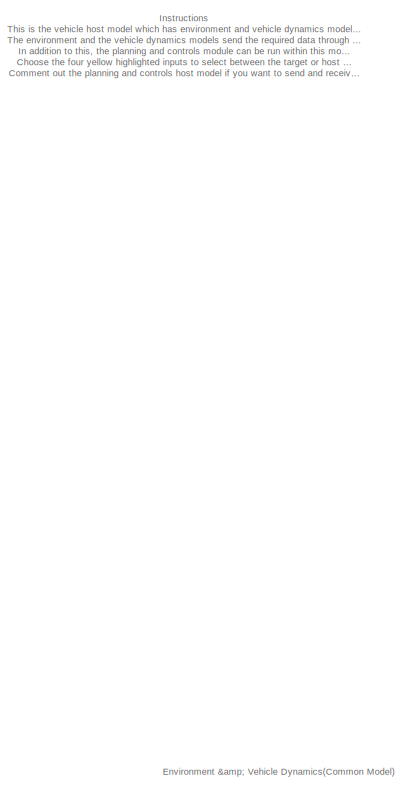
[diagram: root canvas - part 1/6, top left region]
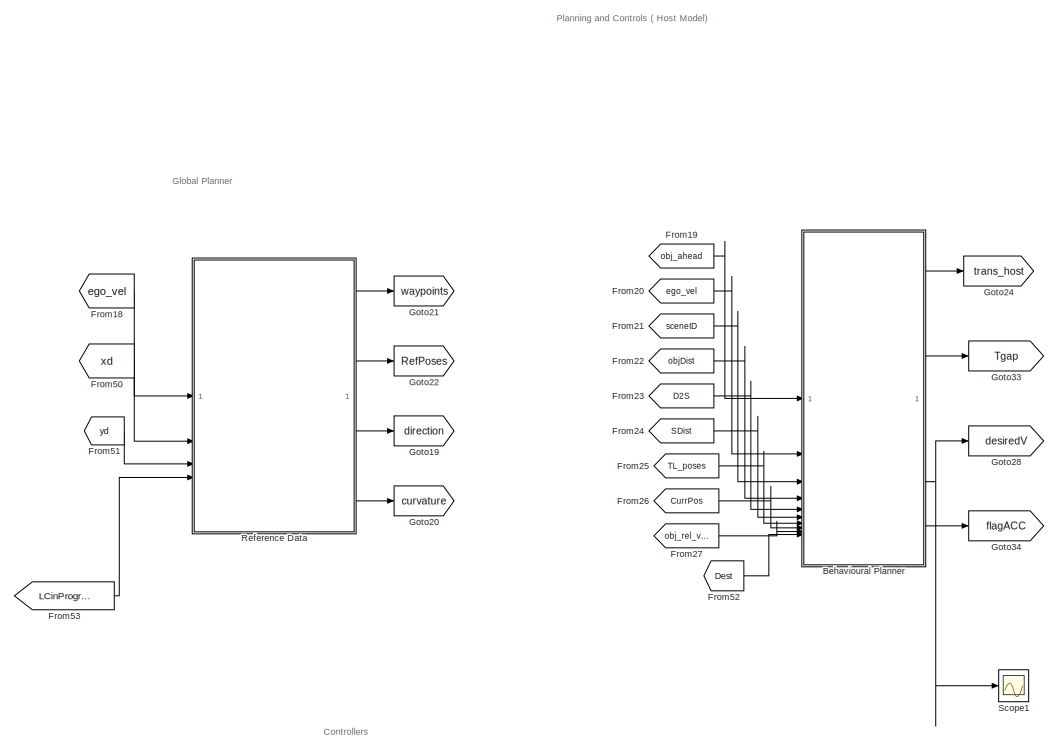
[diagram: root canvas - part 2/6, top center region]
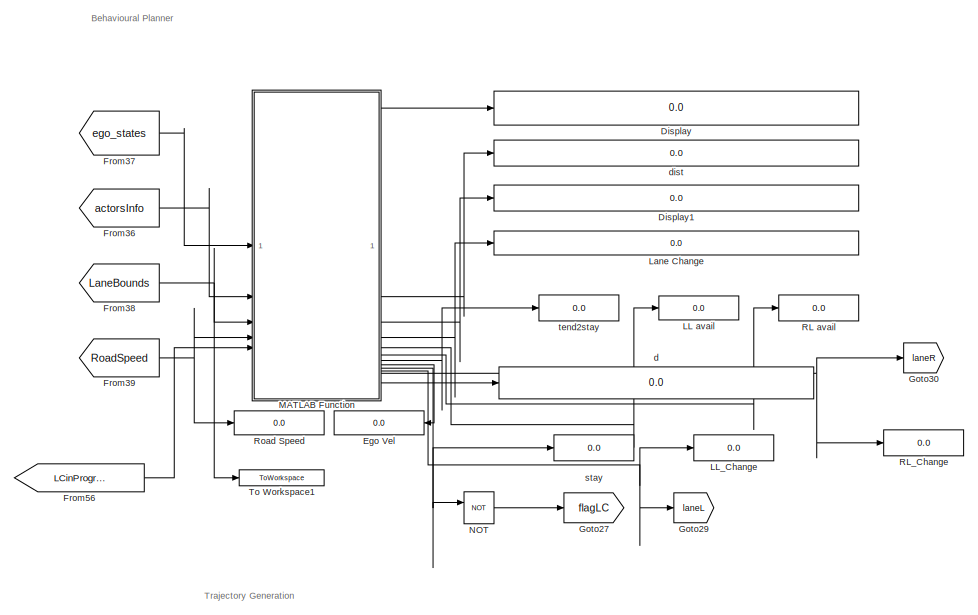
[diagram: root canvas - part 3/6, top right region]
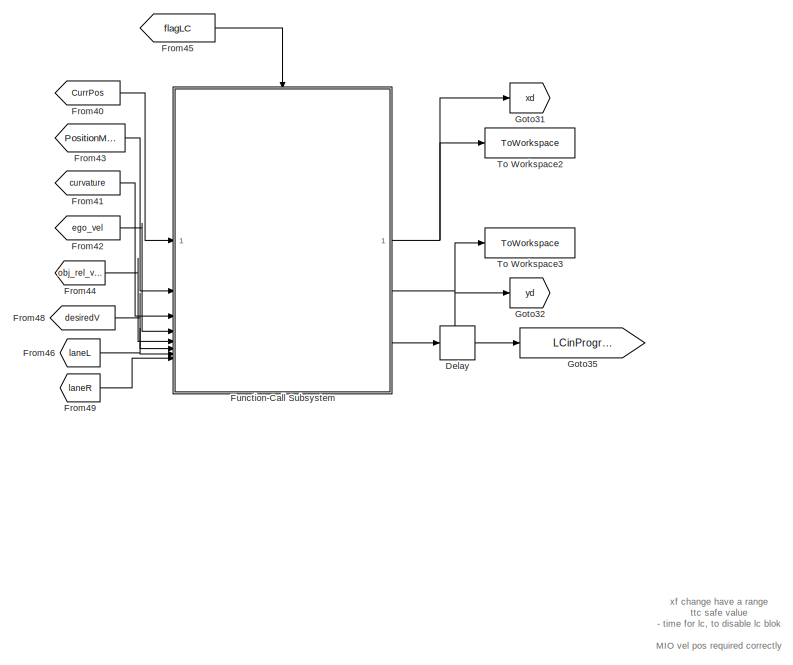
[diagram: root canvas - part 4/6, bottom right region]
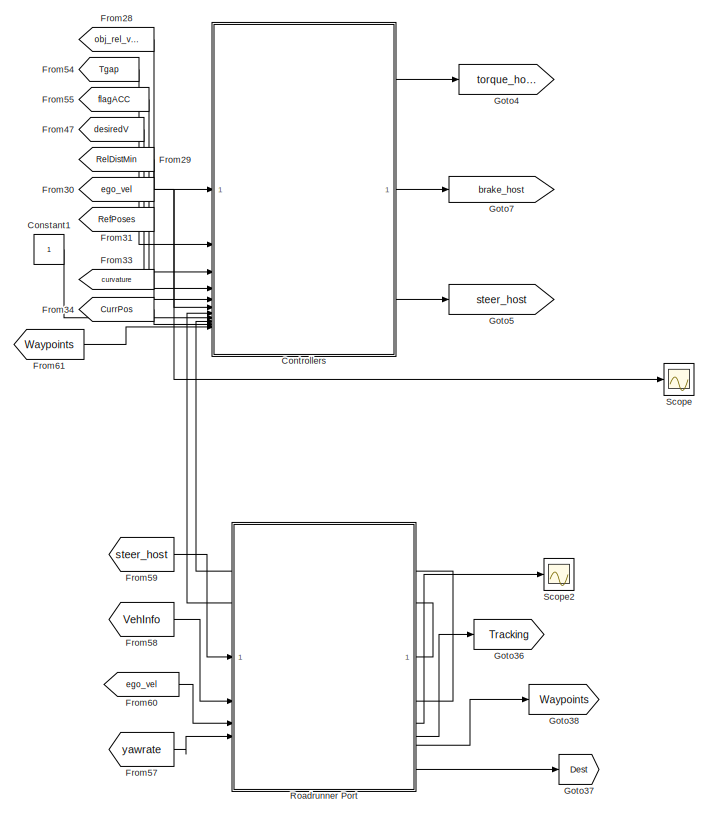
[diagram: root canvas - part 5/6, bottom center region]
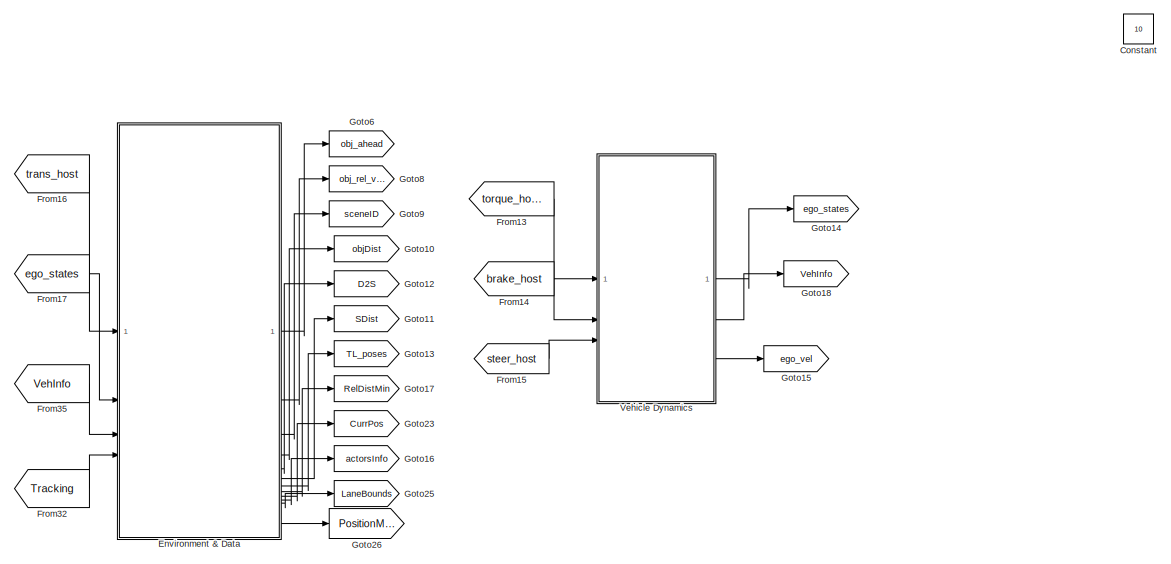
[diagram: root canvas - part 6/6, bottom left region]
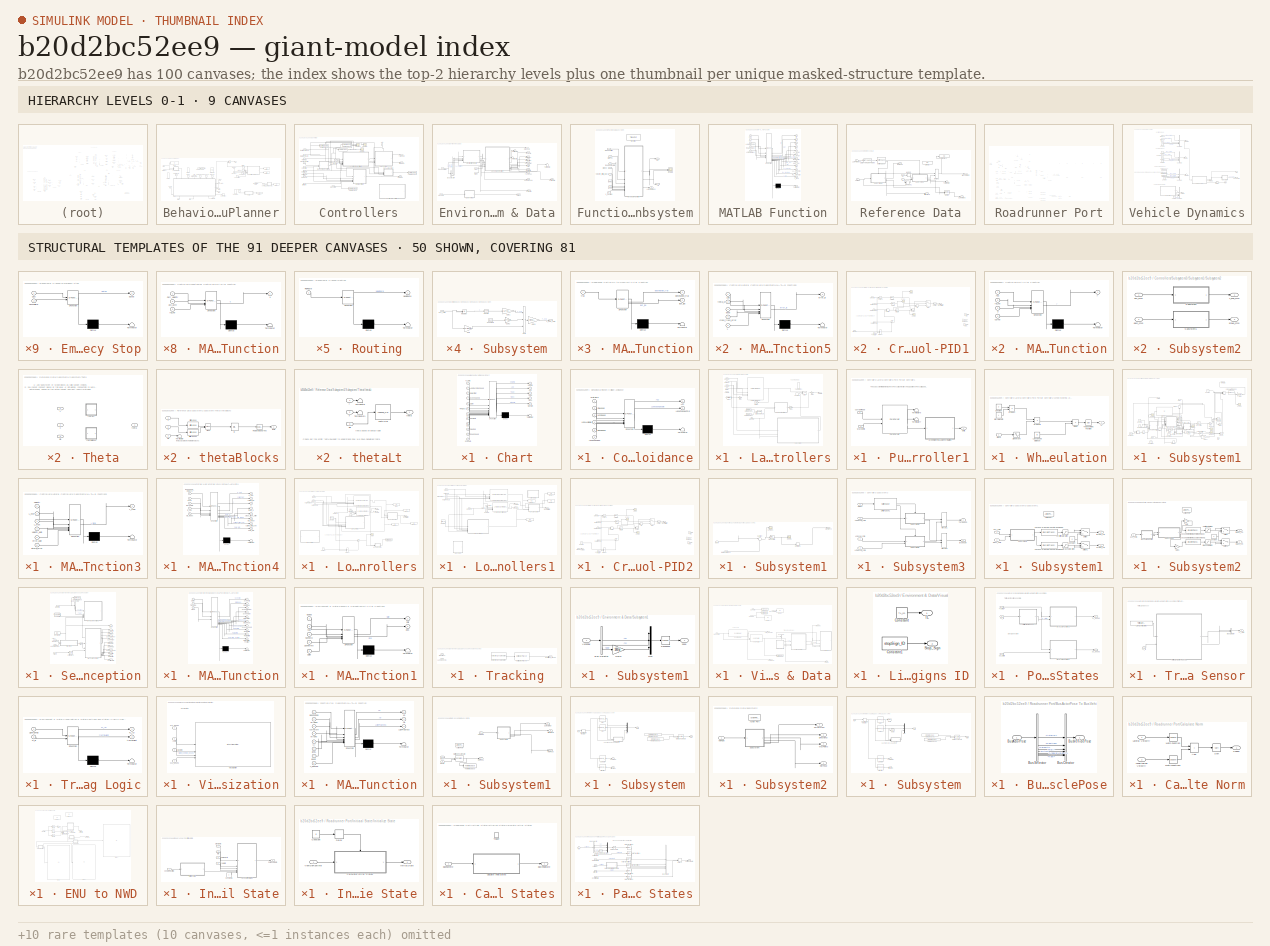
[diagram: thumbnail index - top-2 hierarchy levels (9 canvases) + 50 structural-template representatives of the remaining 91 canvases]
MODEL slx_b20d2bc52ee9
KIND model
CONFIG AbsTol = auto
CONFIG EnableMultiTasking = off
CONFIG FixedStep = auto
CONFIG MaxStep = auto
CONFIG MinStep = auto
CONFIG RelTol = 1e-3
CONFIG SampleTimeConstraint = Unconstrained
CONFIG SolverName = VariableStepAuto
CONFIG StartTime = 0.0
CONFIG StopTime = inf
WORKSPACE source: mxarray member
WORKSPACE firstWarning = 1
WORKSPACE originalScenarioChecksum = '114339432DE22364D47BB28FC96DC10C'
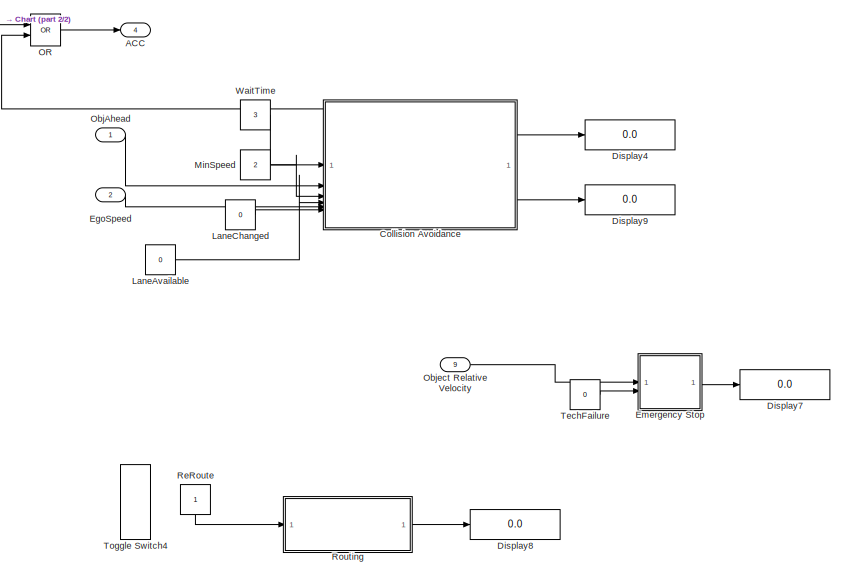
[diagram: Behavioural Planner - part 1/2, right side, full height]
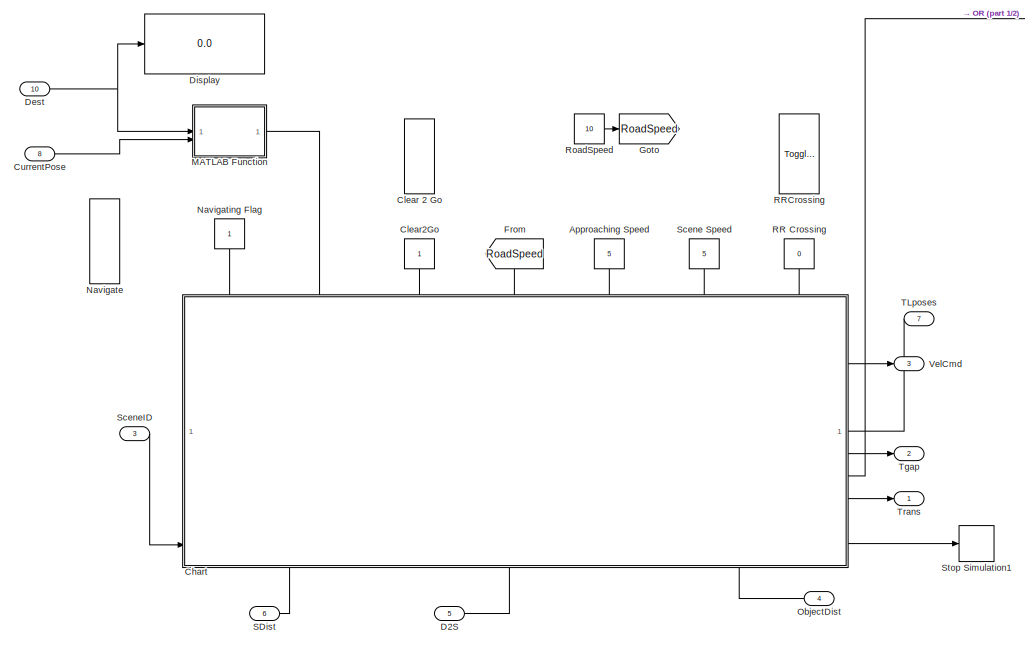
[diagram: Behavioural Planner - part 2/2, left side, full height]
BLOCK [SubSystem] Behavioural Planner
BLOCK [Outport] Behavioural Planner/ACC
  Port = 4
BLOCK [Constant] Behavioural Planner/Approaching Speed
  NameLocation = top
  Value = 5
BLOCK [SubSystem] Behavioural Planner/Chart
  ErrorFcn = Stateflow.Translate.translate
  PermitHierarchicalResolution = ExplicitOnly
  PortSchema = {"entries":[{"content":{"sides":[{"content":{"connectorIds":["In12"]},"type":"ConnectorPlacement.EquallySpacedRectSide","uuid":"81aca70f-0947-49fb-b60a-be241e44193b"},{"content":{"connectorIds":["In1","Out1","Out2","Out3","Out4","Out5"],"side":"RIGHT"},"type":"ConnectorPlacement.EquallySpacedRectSide","uuid":"e7b9645e-3711-4964-ac9b-0199dd335e99"},{"content":{"connectorIds":["In8","In9","In10","In...<+479ch>
  SFBlockType = Chart
  TreatAsAtomicUnit = on
BLOCK [Demux] Behavioural Planner/Chart/ Demux 
  Outputs = 1
BLOCK [S-Function] Behavioural Planner/Chart/ SFunction 
  EnableBusSupport = on
  FunctionName = sf_sfun
  PortCounts = [12 6]
  SFcnIsStateOwnerBlock = off
  SFunctionDeploymentMode = off
  Tag = Stateflow S-Function 21
BLOCK [Terminator] Behavioural Planner/Chart/ Terminator 
BLOCK [Outport] Behavioural Planner/Chart/ACC
  Port = 2
BLOCK [Inport] Behavioural Planner/Chart/ApproachingSpeed
  Port = 2
BLOCK [Inport] Behavioural Planner/Chart/Clear2Go
  Port = 10
BLOCK [Inport] Behavioural Planner/Chart/D2D
  Port = 9
BLOCK [Inport] Behavioural Planner/Chart/D2S
  Port = 7
BLOCK [Inport] Behavioural Planner/Chart/Navigate
  Port = 8
BLOCK [Inport] Behavioural Planner/Chart/ObjectDist
  Port = 3
BLOCK [Inport] Behavioural Planner/Chart/RRCross
  Port = 6
BLOCK [Inport] Behavioural Planner/Chart/RoadSpeed
  Port = 11
BLOCK [Inport] Behavioural Planner/Chart/SDist
  Port = 5
BLOCK [Inport] Behavioural Planner/Chart/SceneID
  Port = 12
BLOCK [Inport] Behavioural Planner/Chart/SceneSpeed
  Port = 4
BLOCK [Outport] Behavioural Planner/Chart/StopSim
  Port = 5
BLOCK [Inport] Behavioural Planner/Chart/TLstate
BLOCK [Outport] Behavioural Planner/Chart/Tgap
  Port = 3
BLOCK [Outport] Behavioural Planner/Chart/Trans
  Port = 4
BLOCK [Outport] Behavioural Planner/Chart/VelCmd
BLOCK [ToggleSwitchBlock] Behavioural Planner/Clear 2 Go
BLOCK [Constant] Behavioural Planner/Clear2Go
  NameLocation = top
BLOCK [SubSystem] Behavioural Planner/Collision Avoidance
  ErrorFcn = Stateflow.Translate.translate
  PermitHierarchicalResolution = ExplicitOnly
  SFBlockType = Chart
  TreatAsAtomicUnit = on
BLOCK [Demux] Behavioural Planner/Collision Avoidance/ Demux 
  Outputs = 1
BLOCK [S-Function] Behavioural Planner/Collision Avoidance/ SFunction 
  EnableBusSupport = on
  FunctionName = sf_sfun
  PortCounts = [6 3]
  SFcnIsStateOwnerBlock = off
  SFunctionDeploymentMode = off
  Tag = Stateflow S-Function 9
BLOCK [Terminator] Behavioural Planner/Collision Avoidance/ Terminator 
BLOCK [Outport] Behavioural Planner/Collision Avoidance/ACC
BLOCK [Inport] Behavioural Planner/Collision Avoidance/EgoSpeed
  Port = 5
BLOCK [Inport] Behavioural Planner/Collision Avoidance/LaneAvailable
  Port = 4
BLOCK [Outport] Behavioural Planner/Collision Avoidance/LaneChangeCmd
  Port = 2
BLOCK [Inport] Behavioural Planner/Collision Avoidance/LaneChanged
  Port = 6
BLOCK [Inport] Behavioural Planner/Collision Avoidance/MinSpeed
  Port = 3
BLOCK [Inport] Behavioural Planner/Collision Avoidance/ObjAhead
  Port = 2
BLOCK [Inport] Behavioural Planner/Collision Avoidance/WaitTime
BLOCK [Inport] Behavioural Planner/CurrentPose
  Port = 8
BLOCK [Inport] Behavioural Planner/D2S
  Port = 5
BLOCK [Inport] Behavioural Planner/Dest
  Port = 10
BLOCK [Display] Behavioural Planner/Display
  Decimation = 1
BLOCK [Display] Behavioural Planner/Display4
  Decimation = 1
BLOCK [Display] Behavioural Planner/Display7
  Decimation = 1
BLOCK [Display] Behavioural Planner/Display8
  Decimation = 1
BLOCK [Display] Behavioural Planner/Display9
  Decimation = 1
BLOCK [Inport] Behavioural Planner/EgoSpeed
  Port = 2
BLOCK [SubSystem] Behavioural Planner/Emergency Stop
  ErrorFcn = Stateflow.Translate.translate
  PermitHierarchicalResolution = ExplicitOnly
  SFBlockType = Chart
  TreatAsAtomicUnit = on
BLOCK [Demux] Behavioural Planner/Emergency Stop/ Demux 
  Outputs = 1
BLOCK [S-Function] Behavioural Planner/Emergency Stop/ SFunction 
  EnableBusSupport = on
  FunctionName = sf_sfun
  PortCounts = [2 2]
  SFcnIsStateOwnerBlock = off
  SFunctionDeploymentMode = off
  Tag = Stateflow S-Function 8
BLOCK [Terminator] Behavioural Planner/Emergency Stop/ Terminator 
BLOCK [Inport] Behavioural Planner/Emergency Stop/D2O
BLOCK [Outport] Behavioural Planner/Emergency Stop/EStop
BLOCK [Inport] Behavioural Planner/Emergency Stop/TechFailure
  Port = 2
BLOCK [From] Behavioural Planner/From
  GotoTag = RoadSpeed
  NameLocation = left
  TagVisibility = global
BLOCK [Goto] Behavioural Planner/Goto
  GotoTag = RoadSpeed
  TagVisibility = global
BLOCK [Constant] Behavioural Planner/LaneAvailable
  NameLocation = left
  Value = 0
BLOCK [Constant] Behavioural Planner/LaneChanged
  NameLocation = left
  Value = 0
BLOCK [SubSystem] Behavioural Planner/MATLAB Function
  ErrorFcn = Stateflow.Translate.translate
  PermitHierarchicalResolution = ExplicitOnly
  SFBlockType = MATLAB Function
  TreatAsAtomicUnit = on
BLOCK [Demux] Behavioural Planner/MATLAB Function/ Demux 
  Outputs = 1
BLOCK [S-Function] Behavioural Planner/MATLAB Function/ SFunction 
  EnableBusSupport = on
  FunctionName = sf_sfun
  PortCounts = [2 2]
  SFcnIsStateOwnerBlock = off
  SFunctionDeploymentMode = off
  Tag = Stateflow S-Function 13
BLOCK [Terminator] Behavioural Planner/MATLAB Function/ Terminator 
BLOCK [Inport] Behavioural Planner/MATLAB Function/CurrentPose
  Port = 2
BLOCK [Outport] Behavioural Planner/MATLAB Function/D2D
BLOCK [Inport] Behavioural Planner/MATLAB Function/Dest
BLOCK [Constant] Behavioural Planner/MinSpeed
  NameLocation = left
  Value = 2
BLOCK [ToggleSwitchBlock] Behavioural Planner/Navigate
BLOCK [Constant] Behavioural Planner/Navigating Flag
  NameLocation = left
BLOCK [Logic] Behavioural Planner/OR
  AllPortsSameDT = off
  IconShape = distinctive
  Operator = OR
  OutDataTypeStr = fixdt(1,16)
BLOCK [Inport] Behavioural Planner/ObjAhead
BLOCK [Inport] Behavioural Planner/Object Relative Velocity
  Port = 9
BLOCK [Inport] Behavioural Planner/ObjectDist
  Port = 4
BLOCK [Constant] Behavioural Planner/RR Crossing
  NameLocation = top
  Value = 0
BLOCK [ToggleSwitchBlock] Behavioural Planner/RRCrossing
BLOCK [Constant] Behavioural Planner/ReRoute
  NameLocation = top
BLOCK [Constant] Behavioural Planner/RoadSpeed
  NameLocation = left
  Value = 10
BLOCK [SubSystem] Behavioural Planner/Routing
  ErrorFcn = Stateflow.Translate.translate
  PermitHierarchicalResolution = ExplicitOnly
  SFBlockType = Chart
  TreatAsAtomicUnit = on
BLOCK [Demux] Behavioural Planner/Routing/ Demux 
  Outputs = 1
BLOCK [S-Function] Behavioural Planner/Routing/ SFunction 
  EnableBusSupport = on
  FunctionName = sf_sfun
  PortCounts = [1 2]
  SFcnIsStateOwnerBlock = off
  SFunctionDeploymentMode = off
  Tag = Stateflow S-Function 6
BLOCK [Terminator] Behavioural Planner/Routing/ Terminator 
BLOCK [Outport] Behavioural Planner/Routing/NewRoute
BLOCK [Inport] Behavioural Planner/Routing/ReRoute
BLOCK [Inport] Behavioural Planner/SDist
  Port = 6
BLOCK [Constant] Behavioural Planner/Scene Speed
  NameLocation = top
  Value = 5
BLOCK [Inport] Behavioural Planner/SceneID
  Port = 3
BLOCK [Stop] Behavioural Planner/Stop Simulation1
BLOCK [Inport] Behavioural Planner/TLposes
  Port = 7
BLOCK [Constant] Behavioural Planner/TechFailure
  NameLocation = left
  Value = 0
BLOCK [Outport] Behavioural Planner/Tgap
  Port = 2
BLOCK [ToggleSwitchBlock] Behavioural Planner/Toggle Switch4
BLOCK [Outport] Behavioural Planner/Trans
BLOCK [Outport] Behavioural Planner/VelCmd
  Port = 3
BLOCK [Constant] Behavioural Planner/WaitTime
  NameLocation = left
  Value = 3
BLOCK [Constant] Constant
  Commented = on
  Value = 10
BLOCK [Constant] Constant1
BLOCK [SubSystem] Controllers
BLOCK [Inport] Controllers/ACC
  NameLocation = left
  Port = 3
BLOCK [Outport] Controllers/BrakeCm
  Port = 2
BLOCK [Constant] Controllers/Constant
  Value = 10
BLOCK [Inport] Controllers/CurrVelocity
  Port = 6
BLOCK [Inport] Controllers/Curvature
  Port = 9
BLOCK [Inport] Controllers/Direction
  Port = 8
BLOCK [SubSystem] Controllers/Lateral Controllers
BLOCK [Constant] Controllers/Lateral Controllers/Constant5
BLOCK [Inport] Controllers/Lateral Controllers/CurrPoses
  Port = 2
BLOCK [Inport] Controllers/Lateral Controllers/CurrVelocity
  NameLocation = top
BLOCK [Inport] Controllers/Lateral Controllers/Direction
  Port = 4
BLOCK [From] Controllers/Lateral Controllers/From
  GotoTag = yawrate
  IconDisplay = Signal name
  TagVisibility = global
BLOCK [FromWorkspace] Controllers/Lateral Controllers/From Workspace
  Commented = on
  VariableName = xRef2
BLOCK [FromWorkspace] Controllers/Lateral Controllers/From Workspace1
  Commented = on
  VariableName = yRef2
BLOCK [Gain] Controllers/Lateral Controllers/Gain1
  Gain = 180/pi
BLOCK [Gain] Controllers/Lateral Controllers/Gain2
  Gain = 1/STEER_RATIO
BLOCK [Gain] Controllers/Lateral Controllers/Gain3
  Gain = 180/pi
BLOCK [Reference] Controllers/Lateral Controllers/Lateral Controller Stanley  REF=drivingvehiclecontroller/Lateral Controller Stanley
  SourceBlock = drivingvehiclecontroller/Lateral Controller Stanley
  SourceType = Lateral Controller Stanley
BLOCK [Concatenate] Controllers/Lateral Controllers/Matrix Concatenate
  Commented = on
  ConcatenateDimension = 2
  Mode = Multidimensional array
BLOCK [SubSystem] Controllers/Lateral Controllers/Pure Pursuit Controller1
BLOCK [Reference] Controllers/Lateral Controllers/Pure Pursuit Controller1/Pure Pursuit  REF=robotalgslib/Pure Pursuit
  SourceBlock = robotalgslib/Pure Pursuit
  SourceType = nav.slalgs.internal.PurePursuit
BLOCK [Terminator] Controllers/Lateral Controllers/Pure Pursuit Controller1/Terminator6
BLOCK [Terminator] Controllers/Lateral Controllers/Pure Pursuit Controller1/Terminator7
BLOCK [Inport] Controllers/Lateral Controllers/Pure Pursuit Controller1/Waypoints
  Port = 2
BLOCK [SubSystem] Controllers/Lateral Controllers/Pure Pursuit Controller1/Wheel Steering Angle Formulation
BLOCK [Outport] Controllers/Lateral Controllers/Pure Pursuit Controller1/Wheel Steering Angle Formulation/Al
BLOCK [Constant] Controllers/Lateral Controllers/Pure Pursuit Controller1/Wheel Steering Angle Formulation/Bicycle length
  Value = L
BLOCK [Constant] Controllers/Lateral Controllers/Pure Pursuit Controller1/Wheel Steering Angle Formulation/Constant
  Value = 2
BLOCK [Product] Controllers/Lateral Controllers/Pure Pursuit Controller1/Wheel Steering Angle Formulation/Divide
  Inputs = */
BLOCK [Constant] Controllers/Lateral Controllers/Pure Pursuit Controller1/Wheel Steering Angle Formulation/Lookahead distance
  Value = ld
BLOCK [Product] Controllers/Lateral Controllers/Pure Pursuit Controller1/Wheel Steering Angle Formulation/Product
BLOCK [Product] Controllers/Lateral Controllers/Pure Pursuit Controller1/Wheel Steering Angle Formulation/Product1
BLOCK [Sin] Controllers/Lateral Controllers/Pure Pursuit Controller1/Wheel Steering Angle Formulation/Sine Wave
  SampleTime = 0
  TimeSource = Use external signal
BLOCK [Trigonometry] Controllers/Lateral Controllers/Pure Pursuit Controller1/Wheel Steering Angle Formulation/Trigonometric Function
  Operator = atan
BLOCK [Inport] Controllers/Lateral Controllers/Pure Pursuit Controller1/Wheel Steering Angle Formulation/alpha
  NameLocation = top
BLOCK [Inport] Controllers/Lateral Controllers/Pure Pursuit Controller1/currentPose
BLOCK [Outport] Controllers/Lateral Controllers/Pure Pursuit Controller1/delta
BLOCK [Inport] Controllers/Lateral Controllers/RefPoses
  Port = 3
BLOCK [SubSystem] Controllers/Lateral Controllers/Subsystem1
  Commented = on
BLOCK [Abs] Controllers/Lateral Controllers/Subsystem1/Abs
  SaturateOnIntegerOverflow = off
BLOCK [Sum] Controllers/Lateral Controllers/Subsystem1/Add1
  IconShape = rectangular
  Inputs = ++++
BLOCK [Constant] Controllers/Lateral Controllers/Subsystem1/Constant
  Value = 0
BLOCK [Constant] Controllers/Lateral Controllers/Subsystem1/Constant10
  Value = 0.4
BLOCK [Constant] Controllers/Lateral Controllers/Subsystem1/Constant12
  Value = yRef2
BLOCK [Constant] Controllers/Lateral Controllers/Subsystem1/Constant14
  Value = 0.032
BLOCK [Constant] Controllers/Lateral Controllers/Subsystem1/Constant6
  Value = L
BLOCK [Constant] Controllers/Lateral Controllers/Subsystem1/Constant7
  Value = 0.01
BLOCK [Constant] Controllers/Lateral Controllers/Subsystem1/Constant8
  Value = 2
BLOCK [Constant] Controllers/Lateral Controllers/Subsystem1/Constant9
  Value = 6
BLOCK [Display] Controllers/Lateral Controllers/Subsystem1/Display2
  Decimation = 1
BLOCK [Gain] Controllers/Lateral Controllers/Subsystem1/Gain10
  Gain = 0.01
BLOCK [Gain] Controllers/Lateral Controllers/Subsystem1/Gain2
  Gain = 180/pi
BLOCK [Gain] Controllers/Lateral Controllers/Subsystem1/Gain6
BLOCK [Gain] Controllers/Lateral Controllers/Subsystem1/Gain8
BLOCK [Gain] Controllers/Lateral Controllers/Subsystem1/Gain9
  Gain = 0.2950
BLOCK [Inport] Controllers/Lateral Controllers/Subsystem1/Input
  Port = 3
BLOCK [Outport] Controllers/Lateral Controllers/Subsystem1/K_out
  Port = 2
BLOCK [Reference] Controllers/Lateral Controllers/Subsystem1/Low-Pass Filter (Discrete or Continuous)  REF=eeGeneralControl/Low-Pass Filter
(Discrete or Continuous)
  Commented = through
  SourceBlock = eeGeneralControl/Low-Pass Filter\n(Discrete or Continuous)
  SourceType = Low-Pass Filter (Discrete or Continuous)
BLOCK [SubSystem] Controllers/Lateral Controllers/Subsystem1/MATLAB Function3
  ErrorFcn = Stateflow.Translate.translate
  PermitHierarchicalResolution = ExplicitOnly
  SFBlockType = MATLAB Function
  TreatAsAtomicUnit = on
BLOCK [Demux] Controllers/Lateral Controllers/Subsystem1/MATLAB Function3/ Demux 
  Outputs = 1
BLOCK [S-Function] Controllers/Lateral Controllers/Subsystem1/MATLAB Function3/ SFunction 
  EnableBusSupport = on
  FunctionName = sf_sfun
  PortCounts = [6 2]
  SFcnIsStateOwnerBlock = off
  SFunctionDeploymentMode = off
  Tag = Stateflow S-Function 27
BLOCK [Terminator] Controllers/Lateral Controllers/Subsystem1/MATLAB Function3/ Terminator 
BLOCK [Inport] Controllers/Lateral Controllers/Subsystem1/MATLAB Function3/L_max
  Port = 3
BLOCK [Inport] Controllers/Lateral Controllers/Subsystem1/MATLAB Function3/L_min
  Port = 2
BLOCK [Outport] Controllers/Lateral Controllers/Subsystem1/MATLAB Function3/L_tune
BLOCK [Inport] Controllers/Lateral Controllers/Subsystem1/MATLAB Function3/error_gain
  Port = 5
BLOCK [Inport] Controllers/Lateral Controllers/Subsystem1/MATLAB Function3/lateral_error
  Port = 6
BLOCK [Inport] Controllers/Lateral Controllers/Subsystem1/MATLAB Function3/velocity
BLOCK [Inport] Controllers/Lateral Controllers/Subsystem1/MATLAB Function3/velocity_gain
  Port = 4
BLOCK [SubSystem] Controllers/Lateral Controllers/Subsystem1/MATLAB Function4
  ErrorFcn = Stateflow.Translate.translate
  PermitHierarchicalResolution = ExplicitOnly
  SFBlockType = MATLAB Function
  TreatAsAtomicUnit = on
BLOCK [Demux] Controllers/Lateral Controllers/Subsystem1/MATLAB Function4/ Demux 
  Outputs = 1
BLOCK [S-Function] Controllers/Lateral Controllers/Subsystem1/MATLAB Function4/ SFunction 
  EnableBusSupport = on
  FunctionName = sf_sfun
  PortCounts = [5 9]
  SFcnIsStateOwnerBlock = off
  SFunctionDeploymentMode = off
  Tag = Stateflow S-Function 28
BLOCK [Terminator] Controllers/Lateral Controllers/Subsystem1/MATLAB Function4/ Terminator 
BLOCK [Inport] Controllers/Lateral Controllers/Subsystem1/MATLAB Function4/D_sat
  Port = 4
BLOCK [Outport] Controllers/Lateral Controllers/Subsystem1/MATLAB Function4/K_out
BLOCK [Outport] Controllers/Lateral Controllers/Subsystem1/MATLAB Function4/cross_track_error
  Port = 5
BLOCK [Outport] Controllers/Lateral Controllers/Subsystem1/MATLAB Function4/current_error_chk
  Port = 7
BLOCK [Outport] Controllers/Lateral Controllers/Subsystem1/MATLAB Function4/current_ref
  Port = 2
BLOCK [Inport] Controllers/Lateral Controllers/Subsystem1/MATLAB Function4/lookahead_distance
BLOCK [Outport] Controllers/Lateral Controllers/Subsystem1/MATLAB Function4/new_wp
  Port = 8
BLOCK [Outport] Controllers/Lateral Controllers/Subsystem1/MATLAB Function4/old_index
  Port = 6
BLOCK [Inport] Controllers/Lateral Controllers/Subsystem1/MATLAB Function4/old_index 
  Port = 5
BLOCK [Inport] Controllers/Lateral Controllers/Subsystem1/MATLAB Function4/pose
  Port = 2
BLOCK [Outport] Controllers/Lateral Controllers/Subsystem1/MATLAB Function4/r
  Port = 3
BLOCK [Outport] Controllers/Lateral Controllers/Subsystem1/MATLAB Function4/theta_p
  Port = 4
BLOCK [Inport] Controllers/Lateral Controllers/Subsystem1/MATLAB Function4/waypoints
  Port = 3
BLOCK [SubSystem] Controllers/Lateral Controllers/Subsystem1/MATLAB Function5
  ErrorFcn = Stateflow.Translate.translate
  PermitHierarchicalResolution = ExplicitOnly
  SFBlockType = MATLAB Function
  TreatAsAtomicUnit = on
BLOCK [Demux] Controllers/Lateral Controllers/Subsystem1/MATLAB Function5/ Demux 
  Outputs = 1
BLOCK [S-Function] Controllers/Lateral Controllers/Subsystem1/MATLAB Function5/ SFunction 
  EnableBusSupport = on
  FunctionName = sf_sfun
  PortCounts = [5 2]
  SFcnIsStateOwnerBlock = off
  SFunctionDeploymentMode = off
  Tag = Stateflow S-Function 29
BLOCK [Terminator] Controllers/Lateral Controllers/Subsystem1/MATLAB Function5/ Terminator 
BLOCK [Inport] Controllers/Lateral Controllers/Subsystem1/MATLAB Function5/L
  Port = 5
BLOCK [Inport] Controllers/Lateral Controllers/Subsystem1/MATLAB Function5/Lad
BLOCK [Inport] Controllers/Lateral Controllers/Subsystem1/MATLAB Function5/cross_track_error
  Port = 4
BLOCK [Outport] Controllers/Lateral Controllers/Subsystem1/MATLAB Function5/error_la
BLOCK [Inport] Controllers/Lateral Controllers/Subsystem1/MATLAB Function5/pose
  Port = 3
BLOCK [Inport] Controllers/Lateral Controllers/Subsystem1/MATLAB Function5/theta_p
  Port = 2
BLOCK [SubSystem] Controllers/Lateral Controllers/Subsystem1/MATLAB Function6
  ErrorFcn = Stateflow.Translate.translate
  PermitHierarchicalResolution = ExplicitOnly
  SFBlockType = MATLAB Function
  TreatAsAtomicUnit = on
BLOCK [Demux] Controllers/Lateral Controllers/Subsystem1/MATLAB Function6/ Demux 
  Outputs = 1
BLOCK [S-Function] Controllers/Lateral Controllers/Subsystem1/MATLAB Function6/ SFunction 
  EnableBusSupport = on
  FunctionName = sf_sfun
  PortCounts = [2 2]
  SFcnIsStateOwnerBlock = off
  SFunctionDeploymentMode = off
  Tag = Stateflow S-Function 30
BLOCK [Terminator] Controllers/Lateral Controllers/Subsystem1/MATLAB Function6/ Terminator 
BLOCK [Inport] Controllers/Lateral Controllers/Subsystem1/MATLAB Function6/L
  Port = 2
BLOCK [Inport] Controllers/Lateral Controllers/Subsystem1/MATLAB Function6/r
BLOCK [Outport] Controllers/Lateral Controllers/Subsystem1/MATLAB Function6/theta
BLOCK [Memory] Controllers/Lateral Controllers/Subsystem1/Memory
  InitialCondition = 1
  LinearizeMemory = on
BLOCK [Memory] Controllers/Lateral Controllers/Subsystem1/Memory1
  LinearizeMemory = on
BLOCK [Memory] Controllers/Lateral Controllers/Subsystem1/Memory2
  NameLocation = left
BLOCK [Outport] Controllers/Lateral Controllers/Subsystem1/Out5
  Port = 5
BLOCK [Reference] Controllers/Lateral Controllers/Subsystem1/PID Controller  REF=slpidlib/PID Controller
  SourceBlock = slpidlib/PID Controller
  SourceType = PID 1dof
BLOCK [Reference] Controllers/Lateral Controllers/Subsystem1/PID Controller1  REF=slpidlib/PID Controller
  SourceBlock = slpidlib/PID Controller
  SourceType = PID 1dof
BLOCK [Product] Controllers/Lateral Controllers/Subsystem1/Product1
BLOCK [Product] Controllers/Lateral Controllers/Subsystem1/Product2
BLOCK [Product] Controllers/Lateral Controllers/Subsystem1/Product3
BLOCK [Scope] Controllers/Lateral Controllers/Subsystem1/Scope12
  Floating = off
  NumInputPorts = 1
  ScopeSpecificationString = Simulink.scopes.TimeScopeBlockCfg('CurrentConfiguration', extmgr.ConfigurationSet(extmgr.Configuration('Core','General UI',true),extmgr.Configuration('Core','Source UI',true),extmgr.Configuration('Sources','WiredSimulink',true,'DataLoggingVariableName','ScopeData1'),extmgr.Configuration('Visuals','Time Domain',true,'SerializedDisplays',{struct('MinYLimReal','-0.48015','MaxYLimReal','0.27083','YLab...<+1364ch>
BLOCK [Scope] Controllers/Lateral Controllers/Subsystem1/Scope15
  Floating = off
  NumInputPorts = 1
  ScopeSpecificationString = Simulink.scopes.TimeScopeBlockCfg('CurrentConfiguration', extmgr.ConfigurationSet(extmgr.Configuration('Core','General UI',true),extmgr.Configuration('Core','Source UI',true),extmgr.Configuration('Sources','WiredSimulink',true,'DataLoggingVariableName','ScopeData2'),extmgr.Configuration('Visuals','Time Domain',true,'SerializedDisplays',{struct('MinYLimReal','166.10928','MaxYLimReal','590.29962','Y...<+1436ch>
BLOCK [Scope] Controllers/Lateral Controllers/Subsystem1/Scope17
  Floating = off
  NumInputPorts = 1
  ScopeSpecificationString = Simulink.scopes.TimeScopeBlockCfg('CurrentConfiguration', extmgr.ConfigurationSet(extmgr.Configuration('Core','General UI',true),extmgr.Configuration('Core','Source UI',true),extmgr.Configuration('Sources','WiredSimulink',true,'DataLoggingVariableName','ScopeData1'),extmgr.Configuration('Visuals','Time Domain',true,'SerializedDisplays',{struct('MinYLimReal','-0.62318','MaxYLimReal','11.59405','YLa...<+1473ch>
BLOCK [Scope] Controllers/Lateral Controllers/Subsystem1/Scope8
  Floating = off
  NumInputPorts = 1
  ScopeSpecificationString = Simulink.scopes.TimeScopeBlockCfg('CurrentConfiguration', extmgr.ConfigurationSet(extmgr.Configuration('Core','General UI',true),extmgr.Configuration('Core','Source UI',true),extmgr.Configuration('Sources','WiredSimulink',true,'DataLoggingVariableName','ScopeData1'),extmgr.Configuration('Visuals','Time Domain',true,'SerializedDisplays',{struct('MinYLimReal','-631.88707','MaxYLimReal','337.59329','...<+1490ch>
BLOCK [Scope] Controllers/Lateral Controllers/Subsystem1/Scope9
  Floating = off
  NumInputPorts = 1
  ScopeSpecificationString = Simulink.scopes.TimeScopeBlockCfg('CurrentConfiguration', extmgr.ConfigurationSet(extmgr.Configuration('Core','General UI',true),extmgr.Configuration('Core','Source UI',true),extmgr.Configuration('Sources','WiredSimulink',true,'DataLoggingVariableName','ScopeData1'),extmgr.Configuration('Visuals','Time Domain',true,'SerializedDisplays',{struct('MinYLimReal','2.00000','MaxYLimReal','10.71759','YLab...<+1452ch>
BLOCK [Outport] Controllers/Lateral Controllers/Subsystem1/cross_track_error
  Port = 4
BLOCK [Outport] Controllers/Lateral Controllers/Subsystem1/current_ref
  Port = 3
BLOCK [Inport] Controllers/Lateral Controllers/Subsystem1/pose
BLOCK [Outport] Controllers/Lateral Controllers/Subsystem1/steerCmd
BLOCK [Inport] Controllers/Lateral Controllers/Subsystem1/velocity
  Port = 2
BLOCK [Switch] Controllers/Lateral Controllers/Switch
  Criteria = u2 > Threshold
  InputSameDT = off
  SaturateOnIntegerOverflow = off
BLOCK [ToggleSwitchBlock] Controllers/Lateral Controllers/Toggle Switch1
BLOCK [UnitDelay] Controllers/Lateral Controllers/Unit Delay
  HasFrameUpgradeWarning = on
  NameLocation = top
  SampleTime = -1
BLOCK [Inport] Controllers/Lateral Controllers/Waypoints
  Port = 6
BLOCK [Inport] Controllers/Lateral Controllers/curvature
  Port = 5
BLOCK [Outport] Controllers/Lateral Controllers/steerCmd
BLOCK [SubSystem] Controllers/Longitudinal Controllers
BLOCK [Outport] Controllers/Longitudinal Controllers/AccelCmd
  Port = 2
BLOCK [Reference] Controllers/Longitudinal Controllers/Adaptive Cruise Control System  REF=mpcadaslib/Adaptive Cruise Control System
  SourceBlock = mpcadaslib/Adaptive Cruise Control System
  SourceType = Adaptive cruise control (ACC) system
BLOCK [Constant] Controllers/Longitudinal Controllers/Constant
  Value = 1.4
BLOCK [Constant] Controllers/Longitudinal Controllers/Constant3
  Value = 0
BLOCK [Constant] Controllers/Longitudinal Controllers/Constant7
  Value = WB+10
BLOCK [SubSystem] Controllers/Longitudinal Controllers/Cruise Control-PID1
  Commented = on
BLOCK [Inport] Controllers/Longitudinal Controllers/Cruise Control-PID1/Default Spacing
BLOCK [Gain] Controllers/Longitudinal Controllers/Cruise Control-PID1/Gain
  Commented = on
  Gain = 0.6
BLOCK [Gain] Controllers/Longitudinal Controllers/Cruise Control-PID1/Gain1
  Commented = on
  Gain = 0.2
BLOCK [Outport] Controllers/Longitudinal Controllers/Cruise Control-PID1/Longitudinal acceleration
BLOCK [Inport] Controllers/Longitudinal Controllers/Cruise Control-PID1/Longitudinal velocity
  Port = 5
BLOCK [MinMax] Controllers/Longitudinal Controllers/Cruise Control-PID1/Min
  Inputs = 2
BLOCK [Product] Controllers/Longitudinal Controllers/Cruise Control-PID1/Product
BLOCK [Inport] Controllers/Longitudinal Controllers/Cruise Control-PID1/Relative Distance
  Port = 3
BLOCK [Inport] Controllers/Longitudinal Controllers/Cruise Control-PID1/Relative Velocity
  Port = 4
BLOCK [Saturate] Controllers/Longitudinal Controllers/Cruise Control-PID1/Saturation
  LinearizeAsGain = off
  LowerLimit = -5
  UpperLimit = 5
BLOCK [Scope] Controllers/Longitudinal Controllers/Cruise Control-PID1/Scope
  Floating = off
  NumInputPorts = 1
  ScopeSpecificationString = Simulink.scopes.TimeScopeBlockCfg('CurrentConfiguration', extmgr.ConfigurationSet(extmgr.Configuration('Core','General UI',true),extmgr.Configuration('Core','Source UI',true),extmgr.Configuration('Sources','WiredSimulink',true,'DataLoggingVariableName','ScopeData2'),extmgr.Configuration('Visuals','Time Domain',true,'SerializedDisplays',{struct('MinYLimReal','-9.56979','MaxYLimReal','86.0581','YLab...<+1427ch>  <repeated x3 — deduplicated; at blocks: Scope>
BLOCK [Scope] Controllers/Longitudinal Controllers/Cruise Control-PID1/Scope1
  Floating = off
  NumInputPorts = 1
  ScopeSpecificationString = Simulink.scopes.TimeScopeBlockCfg('CurrentConfiguration', extmgr.ConfigurationSet(extmgr.Configuration('Core','General UI',true),extmgr.Configuration('Core','Source UI',true),extmgr.Configuration('Sources','WiredSimulink',true,'DataLoggingVariableName','ScopeData3'),extmgr.Configuration('Visuals','Time Domain',true,'SerializedDisplays',{struct('MinYLimReal','-30.14734','MaxYLimReal','47.58082','YL...<+1426ch>  <repeated x3 — deduplicated; at blocks: Scope1>
BLOCK [Scope] Controllers/Longitudinal Controllers/Cruise Control-PID1/Scope2
  Floating = off
  NumInputPorts = 1
  ScopeSpecificationString = Simulink.scopes.TimeScopeBlockCfg('CurrentConfiguration', extmgr.ConfigurationSet(extmgr.Configuration('Core','General UI',true),extmgr.Configuration('Core','Source UI',true),extmgr.Configuration('Sources','WiredSimulink',true,'DataLoggingVariableName','ScopeData4'),extmgr.Configuration('Visuals','Time Domain',true,'SerializedDisplays',{struct('MinYLimReal','-614.07324','MaxYLimReal','17.82226','Y...<+1434ch>  <repeated x3 — deduplicated; at blocks: Scope2>
BLOCK [Inport] Controllers/Longitudinal Controllers/Cruise Control-PID1/Set Velocity
  Port = 6
BLOCK [Sum] Controllers/Longitudinal Controllers/Cruise Control-PID1/Subtract
  IconShape = rectangular
  Inputs = -+
BLOCK [Sum] Controllers/Longitudinal Controllers/Cruise Control-PID1/Subtract1
  IconShape = rectangular
  Inputs = +-
BLOCK [Sum] Controllers/Longitudinal Controllers/Cruise Control-PID1/Subtract2
  IconShape = rectangular
  Inputs = +-
BLOCK [Sum] Controllers/Longitudinal Controllers/Cruise Control-PID1/Sum
  Inputs = |++
BLOCK [Switch] Controllers/Longitudinal Controllers/Cruise Control-PID1/Switch
  Criteria = u2 > Threshold
  InputSameDT = off
  SaturateOnIntegerOverflow = off
BLOCK [Inport] Controllers/Longitudinal Controllers/Cruise Control-PID1/Time Gap
  Port = 2
BLOCK [Reference] Controllers/Longitudinal Controllers/Cruise Control-PID1/Verrorgain  REF=slpidlib/PID Controller
  SourceBlock = slpidlib/PID Controller
  SourceType = PID 1dof
BLOCK [Reference] Controllers/Longitudinal Controllers/Cruise Control-PID1/Vx gain  REF=slpidlib/PID Controller
  SourceBlock = slpidlib/PID Controller
  SourceType = PID 1dof
BLOCK [Reference] Controllers/Longitudinal Controllers/Cruise Control-PID1/Xerr gain  REF=slpidlib/PID Controller
  SourceBlock = slpidlib/PID Controller
  SourceType = PID 1dof
BLOCK [Gain] Controllers/Longitudinal Controllers/Cruise Control-PID1/aggrassive
  Commented = on
  Gain = 0.3
BLOCK [SubSystem] Controllers/Longitudinal Controllers/Cruise Control-PID2
  Commented = on
BLOCK [Inport] Controllers/Longitudinal Controllers/Cruise Control-PID2/Default Spacing
BLOCK [Gain] Controllers/Longitudinal Controllers/Cruise Control-PID2/Gain
  Commented = on
  Gain = 0.6
BLOCK [Gain] Controllers/Longitudinal Controllers/Cruise Control-PID2/Gain1
  Commented = on
  Gain = 0.2
BLOCK [Outport] Controllers/Longitudinal Controllers/Cruise Control-PID2/Longitudinal acceleration
BLOCK [Inport] Controllers/Longitudinal Controllers/Cruise Control-PID2/Longitudinal velocity
  Port = 5
BLOCK [MinMax] Controllers/Longitudinal Controllers/Cruise Control-PID2/Min
  Inputs = 2
BLOCK [Product] Controllers/Longitudinal Controllers/Cruise Control-PID2/Product
BLOCK [Inport] Controllers/Longitudinal Controllers/Cruise Control-PID2/Relative Distance
  Port = 3
BLOCK [Inport] Controllers/Longitudinal Controllers/Cruise Control-PID2/Relative Velocity
  Port = 4
BLOCK [Saturate] Controllers/Longitudinal Controllers/Cruise Control-PID2/Saturation
  LinearizeAsGain = off
  LowerLimit = -5
  UpperLimit = 5
BLOCK [Scope] Controllers/Longitudinal Controllers/Cruise Control-PID2/Scope
  Floating = off
  NumInputPorts = 1
BLOCK [Scope] Controllers/Longitudinal Controllers/Cruise Control-PID2/Scope1
  Floating = off
  NumInputPorts = 1
BLOCK [Scope] Controllers/Longitudinal Controllers/Cruise Control-PID2/Scope2
  Floating = off
  NumInputPorts = 1
BLOCK [Inport] Controllers/Longitudinal Controllers/Cruise Control-PID2/Set Velocity
  Port = 6
BLOCK [Sum] Controllers/Longitudinal Controllers/Cruise Control-PID2/Subtract
  IconShape = rectangular
  Inputs = -+
BLOCK [Sum] Controllers/Longitudinal Controllers/Cruise Control-PID2/Subtract1
  IconShape = rectangular
  Inputs = +-
BLOCK [Sum] Controllers/Longitudinal Controllers/Cruise Control-PID2/Subtract2
  IconShape = rectangular
  Inputs = +-
BLOCK [Sum] Controllers/Longitudinal Controllers/Cruise Control-PID2/Sum
  Inputs = |++
BLOCK [Switch] Controllers/Longitudinal Controllers/Cruise Control-PID2/Switch
  Criteria = u2 > Threshold
  InputSameDT = off
  SaturateOnIntegerOverflow = off
BLOCK [Inport] Controllers/Longitudinal Controllers/Cruise Control-PID2/Time Gap
  Port = 2
BLOCK [Reference] Controllers/Longitudinal Controllers/Cruise Control-PID2/Verrorgain  REF=slpidlib/PID Controller
  SourceBlock = slpidlib/PID Controller
  SourceType = PID 1dof
BLOCK [Reference] Controllers/Longitudinal Controllers/Cruise Control-PID2/Vx gain  REF=slpidlib/PID Controller
  SourceBlock = slpidlib/PID Controller
  SourceType = PID 1dof
BLOCK [Reference] Controllers/Longitudinal Controllers/Cruise Control-PID2/Xerr gain  REF=slpidlib/PID Controller
  SourceBlock = slpidlib/PID Controller
  SourceType = PID 1dof
BLOCK [Gain] Controllers/Longitudinal Controllers/Cruise Control-PID2/aggrassive
  Commented = on
  Gain = 0.3
BLOCK [Inport] Controllers/Longitudinal Controllers/Curr Velocity
  NameLocation = top
BLOCK [Inport] Controllers/Longitudinal Controllers/CurrVel
  Port = 6
BLOCK [Outport] Controllers/Longitudinal Controllers/DecelCmd
  Port = 3
BLOCK [Inport] Controllers/Longitudinal Controllers/Direction
  Port = 7
BLOCK [Display] Controllers/Longitudinal Controllers/Display
  Decimation = 1
BLOCK [Display] Controllers/Longitudinal Controllers/Display1
  Decimation = 1
BLOCK [Display] Controllers/Longitudinal Controllers/Display2
  Decimation = 1
BLOCK [Display] Controllers/Longitudinal Controllers/Display3
  Decimation = 1
BLOCK [Reference] Controllers/Longitudinal Controllers/Longitudinal Controller Stanley  REF=drivingvehiclecontroller/Longitudinal Controller Stanley
  SourceBlock = drivingvehiclecontroller/Longitudinal Controller Stanley
  SourceType = Longitudinal Controller Stanley
BLOCK [Outport] Controllers/Longitudinal Controllers/Longitudinal acceleration
BLOCK [SubSystem] Controllers/Longitudinal Controllers/MATLAB Function
  ErrorFcn = Stateflow.Translate.translate
  LibrarySourceBlock = simulink/User-Defined\nFunctions/MATLAB Function
  PermitHierarchicalResolution = ExplicitOnly
  SFBlockType = MATLAB Function
  TreatAsAtomicUnit = on
BLOCK [Demux] Controllers/Longitudinal Controllers/MATLAB Function/ Demux 
  Outputs = 1
BLOCK [S-Function] Controllers/Longitudinal Controllers/MATLAB Function/ SFunction 
  EnableBusSupport = on
  FunctionName = sf_sfun
  PortCounts = [3 2]
  SFcnIsStateOwnerBlock = off
  SFunctionDeploymentMode = off
  Tag = Stateflow S-Function 35
BLOCK [Terminator] Controllers/Longitudinal Controllers/MATLAB Function/ Terminator 
BLOCK [Inport] Controllers/Longitudinal Controllers/MATLAB Function/Curr_Velocity
BLOCK [Inport] Controllers/Longitudinal Controllers/MATLAB Function/acc_accn
  Port = 2
BLOCK [Inport] Controllers/Longitudinal Controllers/MATLAB Function/rel_vel
  Port = 3
BLOCK [Outport] Controllers/Longitudinal Controllers/MATLAB Function/u
BLOCK [SubSystem] Controllers/Longitudinal Controllers/MATLAB Function1
  ErrorFcn = Stateflow.Translate.translate
  LibrarySourceBlock = simulink/User-Defined\nFunctions/MATLAB Function
  PermitHierarchicalResolution = ExplicitOnly
  SFBlockType = MATLAB Function
  TreatAsAtomicUnit = on
BLOCK [Demux] Controllers/Longitudinal Controllers/MATLAB Function1/ Demux 
  Outputs = 1
BLOCK [S-Function] Controllers/Longitudinal Controllers/MATLAB Function1/ SFunction 
  EnableBusSupport = on
  FunctionName = sf_sfun
  PortCounts = [2 2]
  SFcnIsStateOwnerBlock = off
  SFunctionDeploymentMode = off
  Tag = Stateflow S-Function 36
BLOCK [Terminator] Controllers/Longitudinal Controllers/MATLAB Function1/ Terminator 
BLOCK [Inport] Controllers/Longitudinal Controllers/MATLAB Function1/Relative_distance
BLOCK [Inport] Controllers/Longitudinal Controllers/MATLAB Function1/u
  Port = 2
BLOCK [Outport] Controllers/Longitudinal Controllers/MATLAB Function1/y
BLOCK [Product] Controllers/Longitudinal Controllers/Product
BLOCK [Inport] Controllers/Longitudinal Controllers/Relative distance
  Port = 3
BLOCK [Inport] Controllers/Longitudinal Controllers/Relative velocity
  Port = 2
BLOCK [Scope] Controllers/Longitudinal Controllers/Scope
  Floating = off
  NumInputPorts = 1
  ScopeSpecificationString = Simulink.scopes.TimeScopeBlockCfg('CurrentConfiguration', extmgr.ConfigurationSet(extmgr.Configuration('Core','General UI',true),extmgr.Configuration('Core','Source UI',true),extmgr.Configuration('Sources','WiredSimulink',true,'DataLoggingVariableName','ScopeData2'),extmgr.Configuration('Visuals','Time Domain',true,'SerializedDisplays',{struct('MinYLimReal','10.27384','MaxYLimReal','34.39944','YLa...<+1393ch>
BLOCK [Inport] Controllers/Longitudinal Controllers/Set velocity
  Port = 5
BLOCK [Sum] Controllers/Longitudinal Controllers/Sum
  Inputs = |++
BLOCK [Inport] Controllers/Longitudinal Controllers/Time gap
  Port = 4
BLOCK [ToWorkspace] Controllers/Longitudinal Controllers/To Workspace
  FixptAsFi = on
  MaxDataPoints = inf
  SampleTime = -1
  SaveFormat = Timeseries
  VariableName = safedist
BLOCK [SubSystem] Controllers/Longitudinal Controllers1
  Commented = on
BLOCK [Outport] Controllers/Longitudinal Controllers1/AccelCmd
  Port = 2
BLOCK [Reference] Controllers/Longitudinal Controllers1/Adaptive Cruise Control System  REF=mpcadaslib/Adaptive Cruise Control System
  SourceBlock = mpcadaslib/Adaptive Cruise Control System
  SourceType = Adaptive cruise control (ACC) system
BLOCK [Constant] Controllers/Longitudinal Controllers1/Constant3
  Value = 0
BLOCK [Constant] Controllers/Longitudinal Controllers1/Constant7
  Value = WB+10
BLOCK [SubSystem] Controllers/Longitudinal Controllers1/Cruise Control-PID2
BLOCK [Constant] Controllers/Longitudinal Controllers1/Cruise Control-PID2/Constant
  Value = 1.4
BLOCK [Inport] Controllers/Longitudinal Controllers1/Cruise Control-PID2/Default Spacing
BLOCK [Gain] Controllers/Longitudinal Controllers1/Cruise Control-PID2/Gain
  Commented = on
  Gain = 0.6
BLOCK [Gain] Controllers/Longitudinal Controllers1/Cruise Control-PID2/Gain1
  Commented = on
  Gain = 0.2
BLOCK [Outport] Controllers/Longitudinal Controllers1/Cruise Control-PID2/Longitudinal acceleration
BLOCK [Inport] Controllers/Longitudinal Controllers1/Cruise Control-PID2/Longitudinal velocity
  Port = 5
BLOCK [MinMax] Controllers/Longitudinal Controllers1/Cruise Control-PID2/Min
  Inputs = 2
BLOCK [Product] Controllers/Longitudinal Controllers1/Cruise Control-PID2/Product
BLOCK [Inport] Controllers/Longitudinal Controllers1/Cruise Control-PID2/Relative Distance
  Port = 3
BLOCK [Inport] Controllers/Longitudinal Controllers1/Cruise Control-PID2/Relative Velocity
  Port = 4
BLOCK [Saturate] Controllers/Longitudinal Controllers1/Cruise Control-PID2/Saturation
  LinearizeAsGain = off
  LowerLimit = -5
  UpperLimit = 5
BLOCK [Scope] Controllers/Longitudinal Controllers1/Cruise Control-PID2/Scope
  Floating = off
  NumInputPorts = 1
BLOCK [Scope] Controllers/Longitudinal Controllers1/Cruise Control-PID2/Scope1
  Floating = off
  NumInputPorts = 1
BLOCK [Scope] Controllers/Longitudinal Controllers1/Cruise Control-PID2/Scope2
  Floating = off
  NumInputPorts = 1
BLOCK [Inport] Controllers/Longitudinal Controllers1/Cruise Control-PID2/Set Velocity
  Port = 6
BLOCK [Sum] Controllers/Longitudinal Controllers1/Cruise Control-PID2/Subtract
  IconShape = rectangular
  Inputs = -+
BLOCK [Sum] Controllers/Longitudinal Controllers1/Cruise Control-PID2/Subtract1
  IconShape = rectangular
  Inputs = +-
BLOCK [Sum] Controllers/Longitudinal Controllers1/Cruise Control-PID2/Subtract2
  IconShape = rectangular
  Inputs = +-
BLOCK [Sum] Controllers/Longitudinal Controllers1/Cruise Control-PID2/Sum
  Inputs = |++
BLOCK [Switch] Controllers/Longitudinal Controllers1/Cruise Control-PID2/Switch
  Criteria = u2 > Threshold
  InputSameDT = off
  SaturateOnIntegerOverflow = off
BLOCK [Terminator] Controllers/Longitudinal Controllers1/Cruise Control-PID2/Terminator
BLOCK [Inport] Controllers/Longitudinal Controllers1/Cruise Control-PID2/Time Gap
  Port = 2
BLOCK [Reference] Controllers/Longitudinal Controllers1/Cruise Control-PID2/Verrorgain  REF=slpidlib/PID Controller
  SourceBlock = slpidlib/PID Controller
  SourceType = PID 1dof
BLOCK [Reference] Controllers/Longitudinal Controllers1/Cruise Control-PID2/Vx gain  REF=slpidlib/PID Controller
  SourceBlock = slpidlib/PID Controller
  SourceType = PID 1dof
BLOCK [Reference] Controllers/Longitudinal Controllers1/Cruise Control-PID2/Xerr gain  REF=slpidlib/PID Controller
  SourceBlock = slpidlib/PID Controller
  SourceType = PID 1dof
BLOCK [Gain] Controllers/Longitudinal Controllers1/Cruise Control-PID2/aggrassive
  Commented = on
  Gain = 0.3
BLOCK [Inport] Controllers/Longitudinal Controllers1/Curr Velocity
  NameLocation = top
BLOCK [Inport] Controllers/Longitudinal Controllers1/CurrVel
  Port = 6
BLOCK [Outport] Controllers/Longitudinal Controllers1/DecelCmd
  Port = 3
BLOCK [Inport] Controllers/Longitudinal Controllers1/Direction
  Port = 7
BLOCK [Display] Controllers/Longitudinal Controllers1/Display
  Decimation = 1
BLOCK [Display] Controllers/Longitudinal Controllers1/Display1
  Decimation = 1
BLOCK [Display] Controllers/Longitudinal Controllers1/Display2
  Decimation = 1
BLOCK [Display] Controllers/Longitudinal Controllers1/Display3
  Decimation = 1
BLOCK [Reference] Controllers/Longitudinal Controllers1/Longitudinal Controller Stanley  REF=drivingvehiclecontroller/Longitudinal Controller Stanley
  SourceBlock = drivingvehiclecontroller/Longitudinal Controller Stanley
  SourceType = Longitudinal Controller Stanley
BLOCK [Outport] Controllers/Longitudinal Controllers1/Longitudinal acceleration
BLOCK [SubSystem] Controllers/Longitudinal Controllers1/MATLAB Function
  ErrorFcn = Stateflow.Translate.translate
  LibrarySourceBlock = simulink/User-Defined\nFunctions/MATLAB Function
  PermitHierarchicalResolution = ExplicitOnly
  SFBlockType = MATLAB Function
  TreatAsAtomicUnit = on
BLOCK [Demux] Controllers/Longitudinal Controllers1/MATLAB Function/ Demux 
  Outputs = 1
BLOCK [S-Function] Controllers/Longitudinal Controllers1/MATLAB Function/ SFunction 
  EnableBusSupport = on
  FunctionName = sf_sfun
  PortCounts = [3 2]
  SFcnIsStateOwnerBlock = off
  SFunctionDeploymentMode = off
  Tag = Stateflow S-Function 33
BLOCK [Terminator] Controllers/Longitudinal Controllers1/MATLAB Function/ Terminator 
BLOCK [Inport] Controllers/Longitudinal Controllers1/MATLAB Function/Curr_Velocity
BLOCK [Inport] Controllers/Longitudinal Controllers1/MATLAB Function/acc_accn
  Port = 2
BLOCK [Inport] Controllers/Longitudinal Controllers1/MATLAB Function/pid_accn
  Port = 3
BLOCK [Outport] Controllers/Longitudinal Controllers1/MATLAB Function/y
BLOCK [Inport] Controllers/Longitudinal Controllers1/Relative distance
  Port = 3
BLOCK [Inport] Controllers/Longitudinal Controllers1/Relative velocity
  Port = 2
BLOCK [Inport] Controllers/Longitudinal Controllers1/Set velocity
  Port = 5
BLOCK [SubSystem] Controllers/Longitudinal Controllers1/Subsystem1
  Commented = on
BLOCK [Derivative] Controllers/Longitudinal Controllers1/Subsystem1/Derivative
BLOCK [Inport] Controllers/Longitudinal Controllers1/Subsystem1/Inport
BLOCK [Reference] Controllers/Longitudinal Controllers1/Subsystem1/PID Controller  REF=slpidlib/PID Controller
  LibrarySourceBlock = simulink/Continuous/PID Controller
  SourceBlock = slpidlib/PID Controller
  SourceType = PID 1dof
BLOCK [Scope] Controllers/Longitudinal Controllers1/Subsystem1/Scope
  Floating = off
  NumInputPorts = 1
  ScopeSpecificationString = Simulink.scopes.TimeScopeBlockCfg('CurrentConfiguration', extmgr.ConfigurationSet(extmgr.Configuration('Core','General UI',true),extmgr.Configuration('Core','Source UI',true),extmgr.Configuration('Sources','WiredSimulink',true,'DataLoggingVariableName','ScopeData1'),extmgr.Configuration('Visuals','Time Domain',true,'SerializedDisplays',{struct('MinYLimReal','226.91605','MaxYLimReal','550.85787','Y...<+1445ch>
BLOCK [Scope] Controllers/Longitudinal Controllers1/Subsystem1/Scope1
  Floating = off
  NumInputPorts = 1
  ScopeSpecificationString = Simulink.scopes.TimeScopeBlockCfg('CurrentConfiguration', extmgr.ConfigurationSet(extmgr.Configuration('Core','General UI',true),extmgr.Configuration('Core','Source UI',true),extmgr.Configuration('Sources','WiredSimulink',true,'DataLoggingVariableName','ScopeData2'),extmgr.Configuration('Visuals','Time Domain',true,'SerializedDisplays',{struct('MinYLimReal','226.91605','MaxYLimReal','550.85787','Y...<+1445ch>
BLOCK [Sum] Controllers/Longitudinal Controllers1/Subsystem1/Subtract
BLOCK [Outport] Controllers/Longitudinal Controllers1/Subsystem1/pid_accn
BLOCK [Inport] Controllers/Longitudinal Controllers1/Subsystem1/relativedistance
  Port = 2
BLOCK [Inport] Controllers/Longitudinal Controllers1/Time gap
  Port = 4
BLOCK [SubSystem] Controllers/Longitudinal Controllers1/switching logic
  Commented = on
  ErrorFcn = Stateflow.Translate.translate
  LibrarySourceBlock = simulink/User-Defined\nFunctions/MATLAB Function
  PermitHierarchicalResolution = ExplicitOnly
  SFBlockType = MATLAB Function
  TreatAsAtomicUnit = on
BLOCK [Demux] Controllers/Longitudinal Controllers1/switching logic/ Demux 
  Outputs = 1
BLOCK [S-Function] Controllers/Longitudinal Controllers1/switching logic/ SFunction 
  EnableBusSupport = on
  FunctionName = sf_sfun
  PortCounts = [3 2]
  SFcnIsStateOwnerBlock = off
  SFunctionDeploymentMode = off
  Tag = Stateflow S-Function 34
BLOCK [Terminator] Controllers/Longitudinal Controllers1/switching logic/ Terminator 
BLOCK [Inport] Controllers/Longitudinal Controllers1/switching logic/Curr_Velocity
BLOCK [Inport] Controllers/Longitudinal Controllers1/switching logic/acc_accn
  Port = 2
BLOCK [Inport] Controllers/Longitudinal Controllers1/switching logic/pid_accn
  Port = 3
BLOCK [Outport] Controllers/Longitudinal Controllers1/switching logic/y
BLOCK [SubSystem] Controllers/MATLAB Function
  ErrorFcn = Stateflow.Translate.translate
  LibrarySourceBlock = simulink/User-Defined\nFunctions/MATLAB Function
  PermitHierarchicalResolution = ExplicitOnly
  SFBlockType = MATLAB Function
  TreatAsAtomicUnit = on
BLOCK [Demux] Controllers/MATLAB Function/ Demux 
  Outputs = 1
BLOCK [S-Function] Controllers/MATLAB Function/ SFunction 
  EnableBusSupport = on
  FunctionName = sf_sfun
  PortCounts = [4 2]
  SFcnIsStateOwnerBlock = off
  SFunctionDeploymentMode = off
  Tag = Stateflow S-Function 37
BLOCK [Terminator] Controllers/MATLAB Function/ Terminator 
BLOCK [Inport] Controllers/MATLAB Function/ACC
BLOCK [Inport] Controllers/MATLAB Function/curvel
  Port = 4
BLOCK [Inport] Controllers/MATLAB Function/rel_vel
  Port = 2
BLOCK [Inport] Controllers/MATLAB Function/u
  Port = 3
BLOCK [Outport] Controllers/MATLAB Function/y
BLOCK [Inport] Controllers/RefPoses
  Port = 7
BLOCK [SubSystem] Controllers/Ref_command_original
  ErrorFcn = Stateflow.Translate.translate
  PermitHierarchicalResolution = ExplicitOnly
  SFBlockType = MATLAB Function
  TreatAsAtomicUnit = on
BLOCK [Demux] Controllers/Ref_command_original/ Demux 
  Outputs = 1
BLOCK [S-Function] Controllers/Ref_command_original/ SFunction 
  EnableBusSupport = on
  FunctionName = sf_sfun
  PortCounts = [2 2]
  SFcnIsStateOwnerBlock = off
  SFunctionDeploymentMode = off
  Tag = Stateflow S-Function 11
BLOCK [Terminator] Controllers/Ref_command_original/ Terminator 
BLOCK [Outport] Controllers/Ref_command_original/RefVelCmd
BLOCK [Inport] Controllers/Ref_command_original/curvature
  Port = 2
BLOCK [Inport] Controllers/Ref_command_original/v
BLOCK [Inport] Controllers/Relative distance
  Port = 5
BLOCK [Inport] Controllers/Relative velocity
BLOCK [Scope] Controllers/Scope1
  Floating = off
  NumInputPorts = 1
  ScopeSpecificationString = Simulink.scopes.TimeScopeBlockCfg('CurrentConfiguration', extmgr.ConfigurationSet(extmgr.Configuration('Core','General UI',true,'FigureColor',[1 1 1]),extmgr.Configuration('Core','Source UI',true),extmgr.Configuration('Sources','WiredSimulink',true,'DataLoggingVariableName','ScopeData2'),extmgr.Configuration('Visuals','Time Domain',true,'SerializedDisplays',{struct('MinYLimReal','-1.25','MaxYLimRe...<+2454ch>
BLOCK [Scope] Controllers/Scope2
  Floating = off
  NumInputPorts = 1
  ScopeSpecificationString = Simulink.scopes.TimeScopeBlockCfg('CurrentConfiguration', extmgr.ConfigurationSet(extmgr.Configuration('Core','General UI',true,'FigureColor',[1 1 1]),extmgr.Configuration('Core','Source UI',true),extmgr.Configuration('Sources','WiredSimulink',true,'DataLoggingVariableName','ScopeData3'),extmgr.Configuration('Visuals','Time Domain',true,'SerializedDisplays',{struct('MinYLimReal','-12.78272','MaxYL...<+2504ch>
BLOCK [Scope] Controllers/Scope3
  Floating = off
  NumInputPorts = 3
  ScopeSpecificationString = Simulink.scopes.TimeScopeBlockCfg('CurrentConfiguration', extmgr.ConfigurationSet(extmgr.Configuration('Core','General UI',true,'FigureColor',[1 1 1]),extmgr.Configuration('Core','Source UI',true),extmgr.Configuration('Sources','WiredSimulink',true,'DataLoggingVariableName','ScopeData1'),extmgr.Configuration('Visuals','Time Domain',true,'SerializedDisplays',{struct('MinYLimReal','-1.42513','MaxYLi...<+4425ch>
BLOCK [Outport] Controllers/SteerCmd
  Port = 3
BLOCK [SubSystem] Controllers/Subsystem3
  PortSchema = {"entries":[{"content":{"sides":[{"content":{"connectorIds":["In1","In2","In3"]},"type":"ConnectorPlacement.EquallySpacedRectSide","uuid":"a23b1a10-3bcb-40a0-900c-c9a3f160b173"},{"content":{"connectorIds":["Out1","Out2"],"side":"RIGHT"},"type":"ConnectorPlacement.EquallySpacedRectSide","uuid":"88840b66-912f-4184-aeec-297642319416"},{"content":{"connectorIds":["In4"],"side":"TOP"},"type":"Connector...<+264ch>
BLOCK [Inport] Controllers/Subsystem3/ACCaccel_cmd
BLOCK [Outport] Controllers/Subsystem3/BrakeCm
  Port = 2
BLOCK [Inport] Controllers/Subsystem3/LCaccel_cmd
  Port = 2
BLOCK [Inport] Controllers/Subsystem3/LCdeccel_cmd
  Port = 3
BLOCK [Merge] Controllers/Subsystem3/Merge1
BLOCK [Merge] Controllers/Subsystem3/Merge2
BLOCK [Inport] Controllers/Subsystem3/Select
  Port = 4
BLOCK [SubSystem] Controllers/Subsystem3/Subsystem1
BLOCK [ActionPort] Controllers/Subsystem3/Subsystem1/Action Port
BLOCK [Saturate] Controllers/Subsystem3/Subsystem1/Brake Saturation
  LowerLimit = MIN_BRAKE
  UpperLimit = MAX_BRAKE
BLOCK [Constant] Controllers/Subsystem3/Subsystem1/Constant
  Value = 0
BLOCK [SubSystem] Controllers/Subsystem3/Subsystem1/Subsystem2
BLOCK [SubSystem] Controllers/Subsystem3/Subsystem1/Subsystem2/Subsystem
BLOCK [Constant] Controllers/Subsystem3/Subsystem1/Subsystem2/Subsystem/Constant1
  Value = MCAR
BLOCK [Gain] Controllers/Subsystem3/Subsystem1/Subsystem2/Subsystem/Gain
  Gain = 1.1*MCAR
BLOCK [Gain] Controllers/Subsystem3/Subsystem1/Subsystem2/Subsystem/Gain1
  Gain = 1.2*0.3*2/2
BLOCK [Gain] Controllers/Subsystem3/Subsystem1/Subsystem2/Subsystem/Gain2
  Gain = 0.7*9.81
BLOCK [Gain] Controllers/Subsystem3/Subsystem1/Subsystem2/Subsystem/Gain4
  Gain = R/(7.05*0.8)
BLOCK [Integrator] Controllers/Subsystem3/Subsystem1/Subsystem2/Subsystem/Integrator
  ExternalReset = falling
BLOCK [Math] Controllers/Subsystem3/Subsystem1/Subsystem2/Subsystem/Square
  Operator = square
BLOCK [Sum] Controllers/Subsystem3/Subsystem1/Subsystem2/Subsystem/Sum
  IconShape = rectangular
  Inputs = +++
BLOCK [Outport] Controllers/Subsystem3/Subsystem1/Subsystem2/Subsystem/T_eng_cmd
BLOCK [Inport] Controllers/Subsystem3/Subsystem1/Subsystem2/Subsystem/acc_cmd
BLOCK [SubSystem] Controllers/Subsystem3/Subsystem1/Subsystem2/Subsystem1
BLOCK [Constant] Controllers/Subsystem3/Subsystem1/Subsystem2/Subsystem1/Constant1
  Value = MCAR
BLOCK [Gain] Controllers/Subsystem3/Subsystem1/Subsystem2/Subsystem1/Gain
  Gain = 1.1*MCAR
BLOCK [Gain] Controllers/Subsystem3/Subsystem1/Subsystem2/Subsystem1/Gain1
  Gain = 1.2*0.3*2/2
BLOCK [Gain] Controllers/Subsystem3/Subsystem1/Subsystem2/Subsystem1/Gain2
  Gain = 0.7*9.81
BLOCK [Gain] Controllers/Subsystem3/Subsystem1/Subsystem2/Subsystem1/Gain4
  Gain = -R/(7.05*0.8)
BLOCK [Integrator] Controllers/Subsystem3/Subsystem1/Subsystem2/Subsystem1/Integrator
  ExternalReset = falling
BLOCK [Math] Controllers/Subsystem3/Subsystem1/Subsystem2/Subsystem1/Square
  Operator = square
BLOCK [Sum] Controllers/Subsystem3/Subsystem1/Subsystem2/Subsystem1/Sum
  IconShape = rectangular
  Inputs = +++
BLOCK [Outport] Controllers/Subsystem3/Subsystem1/Subsystem2/Subsystem1/T_brake_cmd
BLOCK [Inport] Controllers/Subsystem3/Subsystem1/Subsystem2/Subsystem1/decc_cmd
BLOCK [Outport] Controllers/Subsystem3/Subsystem1/Subsystem2/T_eng_cmd
BLOCK [Inport] Controllers/Subsystem3/Subsystem1/Subsystem2/acc_cmd
BLOCK [Outport] Controllers/Subsystem3/Subsystem1/Subsystem2/brake_cmd
  Port = 2
BLOCK [Inport] Controllers/Subsystem3/Subsystem1/Subsystem2/decc_cmd
  Port = 2
BLOCK [Switch] Controllers/Subsystem3/Subsystem1/Switch
  Criteria = u2 > Threshold
  InputSameDT = off
  SaturateOnIntegerOverflow = off
  Threshold = 500
BLOCK [Switch] Controllers/Subsystem3/Subsystem1/Switch1
  Criteria = u2 > Threshold
  InputSameDT = off
  SaturateOnIntegerOverflow = off
  Threshold = -500
BLOCK [Saturate] Controllers/Subsystem3/Subsystem1/Throttle Saturation
  LowerLimit = MIN_TORQUE
  UpperLimit = MAX_TORQUE
BLOCK [Inport] Controllers/Subsystem3/Subsystem1/acc_cmd
BLOCK [Outport] Controllers/Subsystem3/Subsystem1/brake_cm
  Port = 2
BLOCK [Inport] Controllers/Subsystem3/Subsystem1/decc_cmd
  Port = 2
BLOCK [DiscreteTransferFcn] Controllers/Subsystem3/Subsystem1/second-order low-pass brake model1
  Commented = through
  Denominator = NUMD_B
  InputPortMap = u0
  Numerator = DEND_B
  SampleTime = ts
BLOCK [DiscreteTransferFcn] Controllers/Subsystem3/Subsystem1/second-order low-pass torque model
  Commented = through
  Denominator = NUMD_T
  InputPortMap = u0
  Numerator = DEND_T
  SampleTime = ts
BLOCK [Outport] Controllers/Subsystem3/Subsystem1/torque_cm
BLOCK [SubSystem] Controllers/Subsystem3/Subsystem2
BLOCK [ActionPort] Controllers/Subsystem3/Subsystem2/Action Port
BLOCK [Saturate] Controllers/Subsystem3/Subsystem2/Brake Saturation
  LowerLimit = MIN_BRAKE
  UpperLimit = MAX_BRAKE
BLOCK [Constant] Controllers/Subsystem3/Subsystem2/Constant
  Value = 0
BLOCK [Gain] Controllers/Subsystem3/Subsystem2/Gain
  Commented = through
  Gain = 5
BLOCK [Gain] Controllers/Subsystem3/Subsystem2/Gain1
  Commented = through
  Gain = 5
BLOCK [SubSystem] Controllers/Subsystem3/Subsystem2/MATLAB Function
  ErrorFcn = Stateflow.Translate.translate
  PermitHierarchicalResolution = ExplicitOnly
  SFBlockType = MATLAB Function
  TreatAsAtomicUnit = on
BLOCK [Demux] Controllers/Subsystem3/Subsystem2/MATLAB Function/ Demux 
  Outputs = 1
BLOCK [S-Function] Controllers/Subsystem3/Subsystem2/MATLAB Function/ SFunction 
  EnableBusSupport = on
  FunctionName = sf_sfun
  PortCounts = [1 3]
  SFcnIsStateOwnerBlock = off
  SFunctionDeploymentMode = off
  Tag = Stateflow S-Function 10
BLOCK [Terminator] Controllers/Subsystem3/Subsystem2/MATLAB Function/ Terminator 
BLOCK [Outport] Controllers/Subsystem3/Subsystem2/MATLAB Function/accel
  VectorParamsAs1DForOutWhenUnconnected = off
BLOCK [Outport] Controllers/Subsystem3/Subsystem2/MATLAB Function/decel
  Port = 2
BLOCK [Inport] Controllers/Subsystem3/Subsystem2/MATLAB Function/u
BLOCK [SubSystem] Controllers/Subsystem3/Subsystem2/Subsystem2
BLOCK [SubSystem] Controllers/Subsystem3/Subsystem2/Subsystem2/Subsystem
BLOCK [Constant] Controllers/Subsystem3/Subsystem2/Subsystem2/Subsystem/Constant1
  Value = MCAR
BLOCK [Gain] Controllers/Subsystem3/Subsystem2/Subsystem2/Subsystem/Gain
  Gain = 1.1*MCAR
BLOCK [Gain] Controllers/Subsystem3/Subsystem2/Subsystem2/Subsystem/Gain1
  Gain = 1.2*0.3*2/2
BLOCK [Gain] Controllers/Subsystem3/Subsystem2/Subsystem2/Subsystem/Gain2
  Gain = 0.7*9.81
BLOCK [Gain] Controllers/Subsystem3/Subsystem2/Subsystem2/Subsystem/Gain4
  Gain = R/(7.05*0.8)
BLOCK [Integrator] Controllers/Subsystem3/Subsystem2/Subsystem2/Subsystem/Integrator
  ExternalReset = falling
BLOCK [Math] Controllers/Subsystem3/Subsystem2/Subsystem2/Subsystem/Square
  Operator = square
BLOCK [Sum] Controllers/Subsystem3/Subsystem2/Subsystem2/Subsystem/Sum
  IconShape = rectangular
  Inputs = +++
BLOCK [Outport] Controllers/Subsystem3/Subsystem2/Subsystem2/Subsystem/T_eng_cmd
BLOCK [Inport] Controllers/Subsystem3/Subsystem2/Subsystem2/Subsystem/acc_cmd
BLOCK [SubSystem] Controllers/Subsystem3/Subsystem2/Subsystem2/Subsystem1
BLOCK [Constant] Controllers/Subsystem3/Subsystem2/Subsystem2/Subsystem1/Constant1
  Value = MCAR
BLOCK [Gain] Controllers/Subsystem3/Subsystem2/Subsystem2/Subsystem1/Gain
  Gain = 1.1*MCAR
BLOCK [Gain] Controllers/Subsystem3/Subsystem2/Subsystem2/Subsystem1/Gain1
  Gain = 1.2*0.3*2/2
BLOCK [Gain] Controllers/Subsystem3/Subsystem2/Subsystem2/Subsystem1/Gain2
  Gain = 0.7*9.81
BLOCK [Gain] Controllers/Subsystem3/Subsystem2/Subsystem2/Subsystem1/Gain4
  Gain = -R/(7.05*0.8)
BLOCK [Integrator] Controllers/Subsystem3/Subsystem2/Subsystem2/Subsystem1/Integrator
  ExternalReset = falling
BLOCK [Math] Controllers/Subsystem3/Subsystem2/Subsystem2/Subsystem1/Square
  Operator = square
BLOCK [Sum] Controllers/Subsystem3/Subsystem2/Subsystem2/Subsystem1/Sum
  IconShape = rectangular
  Inputs = +++
BLOCK [Outport] Controllers/Subsystem3/Subsystem2/Subsystem2/Subsystem1/T_brake_cmd
BLOCK [Inport] Controllers/Subsystem3/Subsystem2/Subsystem2/Subsystem1/decc_cmd
BLOCK [Outport] Controllers/Subsystem3/Subsystem2/Subsystem2/T_eng_cmd
BLOCK [Inport] Controllers/Subsystem3/Subsystem2/Subsystem2/acc_cmd
BLOCK [Outport] Controllers/Subsystem3/Subsystem2/Subsystem2/brake_cmd
  Port = 2
BLOCK [Inport] Controllers/Subsystem3/Subsystem2/Subsystem2/decc_cmd
  Port = 2
BLOCK [Switch] Controllers/Subsystem3/Subsystem2/Switch
  Criteria = u2 > Threshold
  InputSameDT = off
  SaturateOnIntegerOverflow = off
  Threshold = 500
BLOCK [Switch] Controllers/Subsystem3/Subsystem2/Switch1
  Criteria = u2 > Threshold
  InputSameDT = off
  SaturateOnIntegerOverflow = off
  Threshold = -500
BLOCK [Saturate] Controllers/Subsystem3/Subsystem2/Throttle Saturation
  LowerLimit = MIN_TORQUE
  UpperLimit = MAX_TORQUE
BLOCK [Inport] Controllers/Subsystem3/Subsystem2/acc_cmd
BLOCK [Outport] Controllers/Subsystem3/Subsystem2/brake_cm
  Port = 2
BLOCK [DiscreteTransferFcn] Controllers/Subsystem3/Subsystem2/second-order low-pass brake model1
  Commented = through
  Denominator = NUMD_B
  InputPortMap = u0
  Numerator = DEND_B
  SampleTime = ts
BLOCK [DiscreteTransferFcn] Controllers/Subsystem3/Subsystem2/second-order low-pass torque model
  Commented = through
  Denominator = NUMD_T
  InputPortMap = u0
  Numerator = DEND_T
  SampleTime = ts
BLOCK [Outport] Controllers/Subsystem3/Subsystem2/torque_cm
BLOCK [SwitchCase] Controllers/Subsystem3/Switch Case1
  CaseConditions = {1, 0}
  ShowDefaultCase = off
BLOCK [Outport] Controllers/Subsystem3/TorgueCm
BLOCK [Inport] Controllers/Time gap
  Port = 2
BLOCK [ToWorkspace] Controllers/To Workspace
  FixptAsFi = on
  MaxDataPoints = inf
  SampleTime = -1
  VariableName = wp
BLOCK [ToWorkspace] Controllers/To Workspace1
  FixptAsFi = on
  MaxDataPoints = inf
  SampleTime = -1
  Save2DSignal = 2-D array (concatenate along first dimension)
  SaveFormat = Timeseries
  VariableName = reldist
BLOCK [ToWorkspace] Controllers/To Workspace2
  FixptAsFi = on
  MaxDataPoints = inf
  SampleTime = -1
  Save2DSignal = 2-D array (concatenate along first dimension)
  SaveFormat = Timeseries
  VariableName = relvel
BLOCK [ToWorkspace] Controllers/To Workspace3
  FixptAsFi = on
  MaxDataPoints = inf
  SampleTime = -1
  Save2DSignal = 2-D array (concatenate along first dimension)
  SaveFormat = Timeseries
  VariableName = curvel
BLOCK [ToWorkspace] Controllers/To Workspace4
  FixptAsFi = on
  MaxDataPoints = inf
  SampleTime = -1
  Save2DSignal = 2-D array (concatenate along first dimension)
  SaveFormat = Timeseries
  VariableName = setvel
BLOCK [Outport] Controllers/TorgueCm
BLOCK [Inport] Controllers/Waypoints
  Port = 11
BLOCK [Inport] Controllers/curr poses
  Port = 10
BLOCK [Inport] Controllers/velocity desired
  Port = 4
BLOCK [Delay] Delay
  Commented = on
  DelayLength = 1
  InputPortMap = u0
BLOCK [Display] Display
  Decimation = 1
BLOCK [Display] Display1
  Decimation = 1
BLOCK [Display] Ego Vel
  Decimation = 1
  NameLocation = top
BLOCK [SubSystem] Environment & Data
BLOCK [BusSelector] Environment & Data/Bus Selector4
  OutputSignals = Velocity,Acceleration,Position
BLOCK [Outport] Environment & Data/CurrPos
  Port = 9
BLOCK [Inport] Environment & Data/EgoVehStates
  Port = 2
BLOCK [Outport] Environment & Data/LaneBounds
  Port = 11
BLOCK [Outport] Environment & Data/ObjAhead
BLOCK [Outport] Environment & Data/ObjRelVel
  Port = 2
BLOCK [Outport] Environment & Data/ObjectDist
  Port = 4
BLOCK [Outport] Environment & Data/PositionMIO
  Port = 12
BLOCK [Outport] Environment & Data/RelDistmin
  Port = 8
BLOCK [Outport] Environment & Data/SDist
  Port = 6
BLOCK [Outport] Environment & Data/SceneDist
  Port = 5
BLOCK [Outport] Environment & Data/SceneID
  Port = 3
BLOCK [SubSystem] Environment & Data/Sensors & Perception
BLOCK [BusSelector] Environment & Data/Sensors & Perception/Bus Selector2
  OutputSignals = Position,Yaw
BLOCK [Constant] Environment & Data/Sensors & Perception/Constant1
  Value = 50
BLOCK [Inport] Environment & Data/Sensors & Perception/Detections
BLOCK [Inport] Environment & Data/Sensors & Perception/EgoInfo
  Port = 2
BLOCK [Inport] Environment & Data/Sensors & Perception/LaneBounds
  Port = 3
BLOCK [SubSystem] Environment & Data/Sensors & Perception/MATLAB Function
  ErrorFcn = Stateflow.Translate.translate
  PermitHierarchicalResolution = ExplicitOnly
  SFBlockType = MATLAB Function
  TreatAsAtomicUnit = on
BLOCK [Demux] Environment & Data/Sensors & Perception/MATLAB Function/ Demux 
  Outputs = 1
BLOCK [S-Function] Environment & Data/Sensors & Perception/MATLAB Function/ SFunction 
  EnableBusSupport = on
  FunctionName = sf_sfun
  PortCounts = [3 11]
  SFcnIsStateOwnerBlock = off
  SFunctionDeploymentMode = off
  Tag = Stateflow S-Function 4
BLOCK [Terminator] Environment & Data/Sensors & Perception/MATLAB Function/ Terminator 
BLOCK [Outport] Environment & Data/Sensors & Perception/MATLAB Function/ObjAhead
  Port = 6
BLOCK [Outport] Environment & Data/Sensors & Perception/MATLAB Function/ObjRelVel
  Port = 2
BLOCK [Outport] Environment & Data/Sensors & Perception/MATLAB Function/ObjectDist
  Port = 5
BLOCK [Outport] Environment & Data/Sensors & Perception/MATLAB Function/ObjectMIO_Position
  Port = 10
BLOCK [Outport] Environment & Data/Sensors & Perception/MATLAB Function/RelDistmin
  Port = 9
BLOCK [Outport] Environment & Data/Sensors & Perception/MATLAB Function/RelVelmin
  Port = 8
BLOCK [Inport] Environment & Data/Sensors & Perception/MATLAB Function/SDist
BLOCK [Outport] Environment & Data/Sensors & Perception/MATLAB Function/SceneAhead
  Port = 7
BLOCK [Outport] Environment & Data/Sensors & Perception/MATLAB Function/SceneDist
  Port = 4
BLOCK [Outport] Environment & Data/Sensors & Perception/MATLAB Function/SceneID
BLOCK [Outport] Environment & Data/Sensors & Perception/MATLAB Function/SceneRelVel
  Port = 3
BLOCK [Inport] Environment & Data/Sensors & Perception/MATLAB Function/Tracking
  Port = 2
BLOCK [Inport] Environment & Data/Sensors & Perception/MATLAB Function/Trans
  Port = 3
BLOCK [SubSystem] Environment & Data/Sensors & Perception/MATLAB Function1
  Commented = on
  ErrorFcn = Stateflow.Translate.translate
  PermitHierarchicalResolution = ExplicitOnly
  SFBlockType = MATLAB Function
  TreatAsAtomicUnit = on
BLOCK [Demux] Environment & Data/Sensors & Perception/MATLAB Function1/ Demux 
  Outputs = 1
BLOCK [S-Function] Environment & Data/Sensors & Perception/MATLAB Function1/ SFunction 
  EnableBusSupport = on
  FunctionName = sf_sfun
  PortCounts = [5 3]
  SFcnIsStateOwnerBlock = off
  SFunctionDeploymentMode = off
  Tag = Stateflow S-Function 7
BLOCK [Terminator] Environment & Data/Sensors & Perception/MATLAB Function1/ Terminator 
BLOCK [Outport] Environment & Data/Sensors & Perception/MATLAB Function1/D2S
  Port = 2
BLOCK [Inport] Environment & Data/Sensors & Perception/MATLAB Function1/EVpos
BLOCK [Outport] Environment & Data/Sensors & Perception/MATLAB Function1/SDir
BLOCK [Inport] Environment & Data/Sensors & Perception/MATLAB Function1/SDist
  Port = 5
BLOCK [Inport] Environment & Data/Sensors & Perception/MATLAB Function1/SceneID
  Port = 3
BLOCK [Inport] Environment & Data/Sensors & Perception/MATLAB Function1/SceneInfo
  Port = 4
BLOCK [Inport] Environment & Data/Sensors & Perception/MATLAB Function1/yaw
  Port = 2
BLOCK [Outport] Environment & Data/Sensors & Perception/ObjAhead
BLOCK [Outport] Environment & Data/Sensors & Perception/ObjRelVel
  Port = 4
BLOCK [Outport] Environment & Data/Sensors & Perception/ObjectDist
  Port = 6
BLOCK [Outport] Environment & Data/Sensors & Perception/PositionMIO
  Port = 11
BLOCK [Outport] Environment & Data/Sensors & Perception/ReVelmin
  Port = 9
BLOCK [Outport] Environment & Data/Sensors & Perception/RelDistmin
  Port = 10
BLOCK [Outport] Environment & Data/Sensors & Perception/SDist
  Port = 8
BLOCK [Constant] Environment & Data/Sensors & Perception/Scene Info
  Value = SceneInfo
  VectorParams1D = off
BLOCK [Outport] Environment & Data/Sensors & Perception/SceneAhead
  Port = 2
BLOCK [Outport] Environment & Data/Sensors & Perception/SceneDist
  Port = 7
BLOCK [Outport] Environment & Data/Sensors & Perception/SceneID
  Port = 3
BLOCK [Outport] Environment & Data/Sensors & Perception/SceneRelVel
  Port = 5
BLOCK [ToWorkspace] Environment & Data/Sensors & Perception/To Workspace
  FixptAsFi = on
  MaxDataPoints = inf
  SampleTime = -1
  SaveFormat = Timeseries
  VariableName = EgoPose
BLOCK [Inport] Environment & Data/Sensors & Perception/Track
  Port = 5
BLOCK [SubSystem] Environment & Data/Sensors & Perception/Tracking
  Commented = on
BLOCK [Outport] Environment & Data/Sensors & Perception/Tracking/Confirmed_Tracks
  NameLocation = top
BLOCK [Reference] Environment & Data/Sensors & Perception/Tracking/Detection Concatenation  REF=trackingutilitieslib/Detection Concatenation
  SourceBlock = trackingutilitieslib/Detection Concatenation
  SourceType = matlabshared.tracking.internal.DetectionConcatenation
BLOCK [Inport] Environment & Data/Sensors & Perception/Tracking/Detections
BLOCK [Inport] Environment & Data/Sensors & Perception/Tracking/LaneBounds
  Port = 2
BLOCK [Reference] Environment & Data/Sensors & Perception/Tracking/Multi-Object Tracker  REF=drivinglib/Multi-Object Tracker
  SourceBlock = drivinglib/Multi-Object Tracker
  SourceType = multiObjectTracker
BLOCK [Inport] Environment & Data/Sensors & Perception/Trans
  Port = 4
BLOCK [UnitDelay] Environment & Data/Sensors & Perception/Unit Delay1
  HasFrameUpgradeWarning = on
  SampleTime = 0.05
BLOCK [SubSystem] Environment & Data/Subsystem1
BLOCK [BusSelector] Environment & Data/Subsystem1/Bus Selector
  OutputSignals = InertFrm.Cg.Disp.X,InertFrm.Cg.Disp.Y,InertFrm.Cg.Ang.psi
BLOCK [Gain] Environment & Data/Subsystem1/Gain1
  Commented = through
  Gain = 180/pi
BLOCK [Mux] Environment & Data/Subsystem1/Mux
  DisplayOption = bar
  Inputs = 3
BLOCK [Math] Environment & Data/Subsystem1/Transpose
  Operator = transpose
  SignedPower = on
BLOCK [Inport] Environment & Data/Subsystem1/VehFdbk
BLOCK [Outport] Environment & Data/Subsystem1/pose
BLOCK [Outport] Environment & Data/TL_poses
  Port = 7
BLOCK [Terminator] Environment & Data/Terminator1
BLOCK [Terminator] Environment & Data/Terminator2
BLOCK [Terminator] Environment & Data/Terminator3
BLOCK [Inport] Environment & Data/Track
  Port = 4
BLOCK [Inport] Environment & Data/Trans
BLOCK [Inport] Environment & Data/VehFdbk
  Port = 3
BLOCK [SubSystem] Environment & Data/Visualisation & Data
BLOCK [Outport] Environment & Data/Visualisation & Data/Actors_VehCoords
BLOCK [BusSelector] Environment & Data/Visualisation & Data/Bus Selector1
  OutputSignals = Actors
BLOCK [Display] Environment & Data/Visualisation & Data/Display
  Decimation = 1
BLOCK [Display] Environment & Data/Visualisation & Data/Display3
  Decimation = 1
BLOCK [Inport] Environment & Data/Visualisation & Data/Ego Acceleration
  Port = 3
BLOCK [Inport] Environment & Data/Visualisation & Data/Ego Position
  Port = 4
BLOCK [Inport] Environment & Data/Visualisation & Data/EgoInfo
  Port = 5
BLOCK [Inport] Environment & Data/Visualisation & Data/EgoVehStates
BLOCK [Inport] Environment & Data/Visualisation & Data/EgoVelocity
  Port = 2
BLOCK [Outport] Environment & Data/Visualisation & Data/LaneBounds
  Port = 4
BLOCK [SubSystem] Environment & Data/Visualisation & Data/Lights and Signs ID
BLOCK [Constant] Environment & Data/Visualisation & Data/Lights and Signs ID/Constant
  Value = TL_ID
BLOCK [Constant] Environment & Data/Visualisation & Data/Lights and Signs ID/Constant1
  Value = stopSign_ID
BLOCK [Outport] Environment & Data/Visualisation & Data/Lights and Signs ID/Stop_Sign
  Port = 2
BLOCK [Outport] Environment & Data/Visualisation & Data/Lights and Signs ID/TL
BLOCK [SubSystem] Environment & Data/Visualisation & Data/Positions and States 
BLOCK [Inport] Environment & Data/Visualisation & Data/Positions and States /<Actors>
BLOCK [SubSystem] Environment & Data/Visualisation & Data/Positions and States /MATLAB Function1
  ErrorFcn = Stateflow.Translate.translate
  PermitHierarchicalResolution = ExplicitOnly
  SFBlockType = MATLAB Function
  TreatAsAtomicUnit = on
BLOCK [Demux] Environment & Data/Visualisation & Data/Positions and States /MATLAB Function1/ Demux 
  Outputs = 1
BLOCK [S-Function] Environment & Data/Visualisation & Data/Positions and States /MATLAB Function1/ SFunction 
  EnableBusSupport = on
  FunctionName = sf_sfun
  PortCounts = [2 2]
  SFcnIsStateOwnerBlock = off
  SFunctionDeploymentMode = off
  Tag = Stateflow S-Function 2
BLOCK [Terminator] Environment & Data/Visualisation & Data/Positions and States /MATLAB Function1/ Terminator 
BLOCK [Inport] Environment & Data/Visualisation & Data/Positions and States /MATLAB Function1/Actors
BLOCK [Inport] Environment & Data/Visualisation & Data/Positions and States /MATLAB Function1/TL_State
  Port = 2
BLOCK [Outport] Environment & Data/Visualisation & Data/Positions and States /MATLAB Function1/TL_poses
BLOCK [SubSystem] Environment & Data/Visualisation & Data/Positions and States /MATLAB Function2
  ErrorFcn = Stateflow.Translate.translate
  PermitHierarchicalResolution = ExplicitOnly
  SFBlockType = MATLAB Function
  TreatAsAtomicUnit = on
BLOCK [Demux] Environment & Data/Visualisation & Data/Positions and States /MATLAB Function2/ Demux 
  Outputs = 1
BLOCK [S-Function] Environment & Data/Visualisation & Data/Positions and States /MATLAB Function2/ SFunction 
  EnableBusSupport = on
  FunctionName = sf_sfun
  PortCounts = [2 2]
  SFcnIsStateOwnerBlock = off
  SFunctionDeploymentMode = off
  Tag = Stateflow S-Function 1
BLOCK [Terminator] Environment & Data/Visualisation & Data/Positions and States /MATLAB Function2/ Terminator 
BLOCK [Inport] Environment & Data/Visualisation & Data/Positions and States /MATLAB Function2/Actors
BLOCK [Inport] Environment & Data/Visualisation & Data/Positions and States /MATLAB Function2/ss_State
  Port = 2
BLOCK [Outport] Environment & Data/Visualisation & Data/Positions and States /MATLAB Function2/ss_poses
BLOCK [Inport] Environment & Data/Visualisation & Data/Positions and States /TL_id
  Port = 2
BLOCK [Outport] Environment & Data/Visualisation & Data/Positions and States /TL_poses
BLOCK [SubSystem] Environment & Data/Visualisation & Data/Positions and States /Traffic Light Sensor
BLOCK [BusCreator] Environment & Data/Visualisation & Data/Positions and States /Traffic Light Sensor/Bus Creator
  DisplayOption = bar
  InheritFromInputs = on
  Inputs = 2
BLOCK [Constant] Environment & Data/Visualisation & Data/Positions and States /Traffic Light Sensor/LightConfiguration
  Value = TrafficLightSensorModeSelection
BLOCK [Outport] Environment & Data/Visualisation & Data/Positions and States /Traffic Light Sensor/TL_State
BLOCK [Inport] Environment & Data/Visualisation & Data/Positions and States /Traffic Light Sensor/TL_id
BLOCK [SubSystem] Environment & Data/Visualisation & Data/Positions and States /Traffic Light Sensor/Traffic Light Switching Logic
  ErrorFcn = Stateflow.Translate.translate
  PermitHierarchicalResolution = ExplicitOnly
  SFBlockType = Chart
  TreatAsAtomicUnit = on
BLOCK [Demux] Environment & Data/Visualisation & Data/Positions and States /Traffic Light Sensor/Traffic Light Switching Logic/ Demux 
  Outputs = 1
BLOCK [S-Function] Environment & Data/Visualisation & Data/Positions and States /Traffic Light Sensor/Traffic Light Switching Logic/ SFunction 
  EnableBusSupport = on
  FunctionName = sf_sfun
  PortCounts = [2 3]
  SFcnIsStateOwnerBlock = off
  SFunctionDeploymentMode = off
  Tag = Stateflow S-Function 3
BLOCK [Terminator] Environment & Data/Visualisation & Data/Positions and States /Traffic Light Sensor/Traffic Light Switching Logic/ Terminator 
BLOCK [Inport] Environment & Data/Visualisation & Data/Positions and States /Traffic Light Sensor/Traffic Light Switching Logic/LightConfig
BLOCK [Outport] Environment & Data/Visualisation & Data/Positions and States /Traffic Light Sensor/Traffic Light Switching Logic/TL_ID
BLOCK [Inport] Environment & Data/Visualisation & Data/Positions and States /Traffic Light Sensor/Traffic Light Switching Logic/TL_id
  Port = 2
BLOCK [Outport] Environment & Data/Visualisation & Data/Positions and States /Traffic Light Sensor/Traffic Light Switching Logic/trafficLight
  Port = 2
BLOCK [Inport] Environment & Data/Visualisation & Data/Positions and States /ss_State
  Port = 3
BLOCK [Outport] Environment & Data/Visualisation & Data/Positions and States /ss_poses
  Port = 2
BLOCK [Reference] Environment & Data/Visualisation & Data/Scenario Reader  REF=drivingscenarioandsensors/Scenario Reader
  SourceBlock = drivingscenarioandsensors/Scenario Reader
  SourceType = driving.scenario.internal.ScenarioReader
BLOCK [Outport] Environment & Data/Visualisation & Data/TL_poses
  Port = 2
BLOCK [ToWorkspace] Environment & Data/Visualisation & Data/To Workspace
  FixptAsFi = on
  MaxDataPoints = inf
  SampleTime = -1
  Save2DSignal = 2-D array (concatenate along first dimension)
  VariableName = SimVel
BLOCK [ToWorkspace] Environment & Data/Visualisation & Data/To Workspace1
  FixptAsFi = on
  MaxDataPoints = inf
  SampleTime = -1
  SaveFormat = Timeseries
  VariableName = actors
BLOCK [ToWorkspace] Environment & Data/Visualisation & Data/To Workspace9
  FixptAsFi = on
  MaxDataPoints = inf
  SampleTime = -1
  Save2DSignal = 2-D array (concatenate along first dimension)
  VariableName = SimPos
BLOCK [Reference] Environment & Data/Visualisation & Data/Vehicle To World  REF=drivingscenarioandsensors/Vehicle To World
  SourceBlock = drivingscenarioandsensors/Vehicle To World
  SourceType = driving.scenario.internal.VehicleToWorld
BLOCK [SubSystem] Environment & Data/Visualisation & Data/Visualization
  Commented = on
BLOCK [Inport] Environment & Data/Visualisation & Data/Visualization/Actors
  Port = 2
BLOCK [Inport] Environment & Data/Visualisation & Data/Visualization/EgoInfo
  Port = 3
BLOCK [Inport] Environment & Data/Visualisation & Data/Visualization/TL1_poses
BLOCK [MATLABSystem] Environment & Data/Visualisation & Data/Visualization/Visualization
  MaskDisplay = disp('TL_vis');\nport_label('input',1,'TL');\nport_label('input',2,'TargetPoses');\nport_label('input',3,'EgoInfo');\nport_label('input',4,'SS');
  MaskType = TL_vis
  System = TL_vis
BLOCK [Inport] Environment & Data/Visualisation & Data/Visualization/ss1_poses
  Port = 4
BLOCK [Outport] Environment & Data/Visualisation & Data/actorsinfo
  Port = 3
BLOCK [Outport] Environment & Data/actorsinfo
  Port = 10
BLOCK [From] From13
  GotoTag = torque_host
  TagVisibility = global
BLOCK [From] From14
  GotoTag = brake_host
  TagVisibility = global
BLOCK [From] From15
  GotoTag = steer_host
  TagVisibility = global
BLOCK [From] From16
  GotoTag = trans_host
  TagVisibility = global
BLOCK [From] From17
  GotoTag = ego_states
  TagVisibility = global
BLOCK [From] From18
  Commented = on
  GotoTag = ego_vel
  TagVisibility = global
BLOCK [From] From19
  GotoTag = obj_ahead
  TagVisibility = global
BLOCK [From] From20
  GotoTag = ego_vel
  TagVisibility = global
BLOCK [From] From21
  GotoTag = sceneID
  TagVisibility = global
BLOCK [From] From22
  GotoTag = objDist
  TagVisibility = global
BLOCK [From] From23
  GotoTag = D2S
  TagVisibility = global
BLOCK [From] From24
  GotoTag = SDist
  TagVisibility = global
BLOCK [From] From25
  GotoTag = TL_poses
  TagVisibility = global
BLOCK [From] From26
  GotoTag = CurrPos
  TagVisibility = global
BLOCK [From] From27
  GotoTag = obj_rel_vel
  TagVisibility = global
BLOCK [From] From28
  GotoTag = obj_rel_vel
  TagVisibility = global
BLOCK [From] From29
  GotoTag = RelDistMin
  TagVisibility = global
BLOCK [From] From30
  GotoTag = ego_vel
  TagVisibility = global
BLOCK [From] From31
  Commented = on
  GotoTag = RefPoses
BLOCK [From] From32
  GotoTag = Tracking
  TagVisibility = global
BLOCK [From] From33
  GotoTag = curvature
BLOCK [From] From34
  GotoTag = CurrPos
  TagVisibility = global
BLOCK [From] From35
  GotoTag = VehInfo
  TagVisibility = global
BLOCK [From] From36
  Commented = on
  GotoTag = actorsInfo
  TagVisibility = global
BLOCK [From] From37
  Commented = on
  GotoTag = ego_states
  TagVisibility = global
BLOCK [From] From38
  Commented = on
  GotoTag = LaneBounds
  TagVisibility = global
BLOCK [From] From39
  Commented = on
  GotoTag = RoadSpeed
  TagVisibility = global
BLOCK [From] From40
  Commented = on
  GotoTag = CurrPos
  TagVisibility = global
BLOCK [From] From41
  Commented = on
  GotoTag = curvature
BLOCK [From] From42
  Commented = on
  GotoTag = ego_vel
  TagVisibility = global
BLOCK [From] From43
  Commented = on
  GotoTag = PositionMIO
  TagVisibility = global
BLOCK [From] From44
  Commented = on
  GotoTag = obj_rel_vel
  TagVisibility = global
BLOCK [From] From45
  Commented = on
  GotoTag = flagLC
BLOCK [From] From46
  Commented = on
  GotoTag = laneL
BLOCK [From] From47
  GotoTag = desiredV
  TagVisibility = global
BLOCK [From] From48
  Commented = on
  GotoTag = desiredV
BLOCK [From] From49
  Commented = on
  GotoTag = laneR
BLOCK [From] From50
  Commented = on
  GotoTag = xd
  TagVisibility = global
BLOCK [From] From51
  Commented = on
  GotoTag = yd
  TagVisibility = global
BLOCK [From] From52
  GotoTag = Dest
BLOCK [From] From53
  Commented = on
  GotoTag = LCinProgress
  TagVisibility = global
BLOCK [From] From54
  GotoTag = Tgap
  TagVisibility = global
BLOCK [From] From55
  GotoTag = flagACC
  TagVisibility = global
BLOCK [From] From56
  Commented = on
  GotoTag = LCinProgress
  TagVisibility = global
BLOCK [From] From57
  GotoTag = yawrate
  IconDisplay = Signal name
  TagVisibility = global
BLOCK [From] From58
  GotoTag = VehInfo
  IconDisplay = Signal name
  TagVisibility = global
BLOCK [From] From59
  GotoTag = steer_host
  IconDisplay = Signal name
  TagVisibility = global
BLOCK [From] From60
  GotoTag = ego_vel
  TagVisibility = global
BLOCK [From] From61
  GotoTag = Waypoints
  TagVisibility = global
BLOCK [SubSystem] Function-Call Subsystem
  Commented = on
  TreatAsAtomicUnit = on
BLOCK [Inport] Function-Call Subsystem/EgoPosition
  NameLocation = top
BLOCK [Outport] Function-Call Subsystem/LCinProgress
  InitialOutput = 0
  Port = 3
BLOCK [SubSystem] Function-Call Subsystem/MATLAB Function
  ErrorFcn = Stateflow.Translate.translate
  LibrarySourceBlock = simulink/User-Defined\nFunctions/MATLAB Function
  PermitHierarchicalResolution = ExplicitOnly
  SFBlockType = MATLAB Function
  TreatAsAtomicUnit = on
BLOCK [Demux] Function-Call Subsystem/MATLAB Function/ Demux 
  Outputs = 1
BLOCK [S-Function] Function-Call Subsystem/MATLAB Function/ SFunction 
  EnableBusSupport = on
  FunctionName = sf_sfun
  PortCounts = [8 4]
  SFcnIsStateOwnerBlock = off
  SFunctionDeploymentMode = off
  Tag = Stateflow S-Function 25
BLOCK [Terminator] Function-Call Subsystem/MATLAB Function/ Terminator 
BLOCK [Inport] Function-Call Subsystem/MATLAB Function/EgoPosition
BLOCK [Outport] Function-Call Subsystem/MATLAB Function/LCinProgress
  Port = 3
BLOCK [Inport] Function-Call Subsystem/MATLAB Function/MIOPos
  Port = 2
BLOCK [Inport] Function-Call Subsystem/MATLAB Function/MIOVel
  Port = 4
BLOCK [Inport] Function-Call Subsystem/MATLAB Function/V_desired
  Port = 8
BLOCK [Inport] Function-Call Subsystem/MATLAB Function/V_i
  Port = 5
BLOCK [Inport] Function-Call Subsystem/MATLAB Function/curvature
  Port = 3
BLOCK [Inport] Function-Call Subsystem/MATLAB Function/laneL
  Port = 6
BLOCK [Inport] Function-Call Subsystem/MATLAB Function/laneR
  Port = 7
BLOCK [Outport] Function-Call Subsystem/MATLAB Function/xd
BLOCK [Outport] Function-Call Subsystem/MATLAB Function/yd
  Port = 2
BLOCK [Inport] Function-Call Subsystem/MIOPos
  Port = 2
BLOCK [Inport] Function-Call Subsystem/MIOVel
  Port = 5
BLOCK [Inport] Function-Call Subsystem/Road Curvature
  Port = 3
BLOCK [Scope] Function-Call Subsystem/Scope
  Floating = off
  NumInputPorts = 2
  ScopeSpecificationString = Simulink.scopes.TimeScopeBlockCfg('CurrentConfiguration', extmgr.ConfigurationSet(extmgr.Configuration('Core','General UI',true),extmgr.Configuration('Core','Source UI',true),extmgr.Configuration('Sources','WiredSimulink',true,'DataLoggingVariableName','ScopeData1'),extmgr.Configuration('Visuals','Time Domain',true,'SerializedDisplays',{struct('MinYLimReal','-22.35231','MaxYLimReal','165.17079','Y...<+2837ch>
BLOCK [Inport] Function-Call Subsystem/V_desired
  Port = 6
BLOCK [Inport] Function-Call Subsystem/Velocity_Initial_Ego
  Port = 4
BLOCK [TriggerPort] Function-Call Subsystem/function
  ShowOutputPort = on
  StatesWhenEnabling = held
  VariantControl = (inherit)
BLOCK [Inport] Function-Call Subsystem/laneL
  Port = 7
BLOCK [Inport] Function-Call Subsystem/laneR
  Port = 8
BLOCK [Outport] Function-Call Subsystem/xd
BLOCK [Outport] Function-Call Subsystem/yd
  Port = 2
BLOCK [Goto] Goto10
  GotoTag = objDist
  TagVisibility = global
BLOCK [Goto] Goto11
  GotoTag = SDist
  TagVisibility = global
BLOCK [Goto] Goto12
  GotoTag = D2S
  TagVisibility = global
BLOCK [Goto] Goto13
  GotoTag = TL_poses
  TagVisibility = global
BLOCK [Goto] Goto14
  GotoTag = ego_states
  TagVisibility = global
BLOCK [Goto] Goto15
  GotoTag = ego_vel
  TagVisibility = global
BLOCK [Goto] Goto16
  GotoTag = actorsInfo
  TagVisibility = global
BLOCK [Goto] Goto17
  GotoTag = RelDistMin
  TagVisibility = global
BLOCK [Goto] Goto18
  GotoTag = VehInfo
  TagVisibility = global
BLOCK [Goto] Goto19
  Commented = on
  GotoTag = direction
  TagVisibility = global
BLOCK [Goto] Goto20
  Commented = on
  GotoTag = curvature
  TagVisibility = global
BLOCK [Goto] Goto21
  Commented = on
  GotoTag = waypoints
  TagVisibility = global
BLOCK [Goto] Goto22
  Commented = on
  GotoTag = RefPoses
  TagVisibility = global
BLOCK [Goto] Goto23
  GotoTag = CurrPos
  TagVisibility = global
BLOCK [Goto] Goto24
  GotoTag = trans_host
  TagVisibility = global
BLOCK [Goto] Goto25
  GotoTag = LaneBounds
  TagVisibility = global
BLOCK [Goto] Goto26
  GotoTag = PositionMIO
  TagVisibility = global
BLOCK [Goto] Goto27
  GotoTag = flagLC
  TagVisibility = global
BLOCK [Goto] Goto28
  GotoTag = desiredV
  TagVisibility = global
BLOCK [Goto] Goto29
  GotoTag = laneL
  TagVisibility = global
BLOCK [Goto] Goto30
  GotoTag = laneR
  TagVisibility = global
BLOCK [Goto] Goto31
  Commented = on
  GotoTag = xd
  TagVisibility = global
BLOCK [Goto] Goto32
  Commented = on
  GotoTag = yd
  TagVisibility = global
BLOCK [Goto] Goto33
  GotoTag = Tgap
  TagVisibility = global
BLOCK [Goto] Goto34
  GotoTag = flagACC
  TagVisibility = global
BLOCK [Goto] Goto35
  Commented = on
  GotoTag = LCinProgress
  TagVisibility = global
BLOCK [Goto] Goto36
  GotoTag = Tracking
  TagVisibility = global
BLOCK [Goto] Goto37
  GotoTag = Dest
BLOCK [Goto] Goto38
  GotoTag = Waypoints
  TagVisibility = global
BLOCK [Goto] Goto4
  GotoTag = torque_host
  TagVisibility = global
BLOCK [Goto] Goto5
  GotoTag = steer_host
  TagVisibility = global
BLOCK [Goto] Goto6
  GotoTag = obj_ahead
  TagVisibility = global
BLOCK [Goto] Goto7
  GotoTag = brake_host
  TagVisibility = global
BLOCK [Goto] Goto8
  GotoTag = obj_rel_vel
  TagVisibility = global
BLOCK [Goto] Goto9
  GotoTag = sceneID
  TagVisibility = global
BLOCK [Display] LL avail
  Decimation = 1
BLOCK [Display] LL_Change
  Decimation = 1
BLOCK [Display] Lane Change 
  Decimation = 1
BLOCK [SubSystem] MATLAB Function
  Commented = on
  ErrorFcn = Stateflow.Translate.translate
  LibrarySourceBlock = simulink/User-Defined\nFunctions/MATLAB Function
  PermitHierarchicalResolution = ExplicitOnly
  SFBlockType = MATLAB Function
  TreatAsAtomicUnit = on
BLOCK [Demux] MATLAB Function/ Demux 
  Outputs = 1
BLOCK [S-Function] MATLAB Function/ SFunction 
  EnableBusSupport = on
  FunctionName = sf_sfun
  PortCounts = [5 13]
  SFcnIsStateOwnerBlock = off
  SFunctionDeploymentMode = off
  Tag = Stateflow S-Function 14
BLOCK [Terminator] MATLAB Function/ Terminator 
BLOCK [Inport] MATLAB Function/LCinProgress
  Port = 5
BLOCK [Outport] MATLAB Function/LL_Change
  Port = 10
BLOCK [Outport] MATLAB Function/LL_avail
  Port = 5
BLOCK [Inport] MATLAB Function/LaneBounds
  Port = 3
BLOCK [Outport] MATLAB Function/RL_Change
  Port = 11
BLOCK [Outport] MATLAB Function/RL_avail
  Port = 6
BLOCK [Inport] MATLAB Function/RoadSpeed
  Port = 4
BLOCK [Inport] MATLAB Function/act
  Port = 2
BLOCK [Outport] MATLAB Function/dist
  Port = 2
BLOCK [Inport] MATLAB Function/ego
BLOCK [Outport] MATLAB Function/ego_vel
  Port = 8
BLOCK [Outport] MATLAB Function/left
  Port = 3
BLOCK [Outport] MATLAB Function/right
  Port = 4
BLOCK [Outport] MATLAB Function/stay
  Port = 9
BLOCK [Outport] MATLAB Function/tend2stay
  Port = 7
BLOCK [Outport] MATLAB Function/ttc
BLOCK [Outport] MATLAB Function/y_lane
  Port = 12
BLOCK [Logic] NOT
  AllPortsSameDT = off
  IconShape = distinctive
  Operator = NOT
  OutDataTypeStr = boolean
BLOCK [Display] RL avail
  Decimation = 1
BLOCK [Display] RL_Change
  Decimation = 1
BLOCK [SubSystem] Reference Data
  Commented = on
  VariantControl = Stanley
BLOCK [Outport] Reference Data/CurvatureO
  Port = 4
BLOCK [DataTypeConversion] Reference Data/Data Type Conversion
  OutDataTypeStr = double
  RndMeth = Round
  SaturateOnIntegerOverflow = off
BLOCK [Outport] Reference Data/DirectionO
  Port = 3
BLOCK [Display] Reference Data/Display
  Decimation = 1
BLOCK [Display] Reference Data/Display1
  Decimation = 1
BLOCK [Inport] Reference Data/LCinProgress
  Port = 4
BLOCK [Memory] Reference Data/Memory
  InheritSampleTime = on
BLOCK [Memory] Reference Data/Memory1
  InheritSampleTime = on
BLOCK [Merge] Reference Data/Merge
BLOCK [Merge] Reference Data/Merge1
BLOCK [Outport] Reference Data/RefPose
  Port = 2
BLOCK [SubSystem] Reference Data/Subsystem1
BLOCK [ActionPort] Reference Data/Subsystem1/Action Port
  ActionPortLabel = case [ 1 ]:
BLOCK [Outport] Reference Data/Subsystem1/CurvatureO
  Port = 4
BLOCK [Outport] Reference Data/Subsystem1/DirectionO
  Port = 3
BLOCK [Inport] Reference Data/Subsystem1/Input
BLOCK [Inport] Reference Data/Subsystem1/Input1
  Port = 2
BLOCK [Concatenate] Reference Data/Subsystem1/Matrix Concatenate
  ConcatenateDimension = 2
  Mode = Multidimensional array
BLOCK [Outport] Reference Data/Subsystem1/RefPos2
BLOCK [Outport] Reference Data/Subsystem1/RefPose
  Port = 2
BLOCK [SubSystem] Reference Data/Subsystem1/Subsystem
BLOCK [Lookup_n-D] Reference Data/Subsystem1/Subsystem/Curvature
  BreakpointsForDimension1 = gradbp
  InputPortMap = u0
  InternalRulePriority = Speed
  NumberOfTableDimensions = 1
  RndMeth = Simplest
  Table = curvature
BLOCK [Outport] Reference Data/Subsystem1/Subsystem/CurvatureO
  Port = 3
BLOCK [Lookup_n-D] Reference Data/Subsystem1/Subsystem/Direction
  BreakpointsForDimension1 = gradbp
  InputPortMap = u0
  InternalRulePriority = Speed
  NumberOfTableDimensions = 1
  RndMeth = Simplest
  Table = direction
BLOCK [Outport] Reference Data/Subsystem1/Subsystem/DirectionO
  Port = 4
BLOCK [DiscreteIntegrator] Reference Data/Subsystem1/Subsystem/Discrete-Time Integrator
  ICPrevOutput = DiscIntNeverNeededParam
  ICPrevScaledInput = DiscIntNeverNeededParam
  InitialConditionSetting = Auto
  SampleTime = -1
BLOCK [FromWorkspace] Reference Data/Subsystem1/Subsystem/From Workspace1
  SampleTime = -1
  VariableName = yRef2
BLOCK [FromWorkspace] Reference Data/Subsystem1/Subsystem/From Workspace2
  SampleTime = -1
  VariableName = xRef2
BLOCK [Inport] Reference Data/Subsystem1/Subsystem/In1
BLOCK [Concatenate] Reference Data/Subsystem1/Subsystem/Matrix Concatenate
  ConcatenateDimension = 2
  Mode = Multidimensional array
BLOCK [Mux] Reference Data/Subsystem1/Subsystem/Mux
  DisplayOption = bar
  Inputs = 3
BLOCK [Outport] Reference Data/Subsystem1/Subsystem/Out1
BLOCK [Outport] Reference Data/Subsystem1/Subsystem/Out2
  Port = 2
BLOCK [SubSystem] Reference Data/Subsystem1/Subsystem/Theta
  LabelModeActiveChoice = thetaLookUpTable
  Variant = on
  VariantControlMode = label
BLOCK [Inport] Reference Data/Subsystem1/Subsystem/Theta/dis
  Port = 3
BLOCK [Outport] Reference Data/Subsystem1/Subsystem/Theta/theta
BLOCK [SubSystem] Reference Data/Subsystem1/Subsystem/Theta/thetaBlocks
  VariantControl = thetaSimulinkBlock
BLOCK [Trigonometry] Reference Data/Subsystem1/Subsystem/Theta/thetaBlocks/Atan2
  ApproximationMethod = CORDIC
  Operator = atan2
BLOCK [Reference] Reference Data/Subsystem1/Subsystem/Theta/thetaBlocks/Difference  REF=simulink/Discrete/Difference
  SourceBlock = simulink/Discrete/Difference
  SourceType = Difference
BLOCK [Reference] Reference Data/Subsystem1/Subsystem/Theta/thetaBlocks/Difference1  REF=simulink/Discrete/Difference
  SourceBlock = simulink/Discrete/Difference
  SourceType = Difference
BLOCK [InitialCondition] Reference Data/Subsystem1/Subsystem/Theta/thetaBlocks/IC
  Value = psi_o
BLOCK [Reference] Reference Data/Subsystem1/Subsystem/Theta/thetaBlocks/Radians to Degrees  REF=simulink_extras/Transformations/Radians
to Degrees
  SourceBlock = simulink_extras/Transformations/Radians\nto Degrees
  SourceType = RadiansToDegrees
BLOCK [Terminator] Reference Data/Subsystem1/Subsystem/Theta/thetaBlocks/Terminator
BLOCK [Inport] Reference Data/Subsystem1/Subsystem/Theta/thetaBlocks/dis
  Port = 3
BLOCK [Outport] Reference Data/Subsystem1/Subsystem/Theta/thetaBlocks/theta
BLOCK [Inport] Reference Data/Subsystem1/Subsystem/Theta/thetaBlocks/x
  Port = 2
BLOCK [Inport] Reference Data/Subsystem1/Subsystem/Theta/thetaBlocks/y
BLOCK [SubSystem] Reference Data/Subsystem1/Subsystem/Theta/thetaLt
  VariantControl = thetaLookUpTable
BLOCK [Terminator] Reference Data/Subsystem1/Subsystem/Theta/thetaLt/Terminator
BLOCK [Terminator] Reference Data/Subsystem1/Subsystem/Theta/thetaLt/Terminator1
BLOCK [Lookup_n-D] Reference Data/Subsystem1/Subsystem/Theta/thetaLt/Theta Ref
  BreakpointsForDimension1 = gradbp
  InputPortMap = u0
  InternalRulePriority = Speed
  NumberOfTableDimensions = 1
  RndMeth = Simplest
  Table = thetaRefs
BLOCK [Inport] Reference Data/Subsystem1/Subsystem/Theta/thetaLt/dis
  Port = 3
BLOCK [Outport] Reference Data/Subsystem1/Subsystem/Theta/thetaLt/theta
BLOCK [Inport] Reference Data/Subsystem1/Subsystem/Theta/thetaLt/x
  Port = 2
BLOCK [Inport] Reference Data/Subsystem1/Subsystem/Theta/thetaLt/y
BLOCK [Inport] Reference Data/Subsystem1/Subsystem/Theta/x
  Port = 2
BLOCK [Inport] Reference Data/Subsystem1/Subsystem/Theta/y
BLOCK [Lookup_n-D] Reference Data/Subsystem1/Subsystem/X Ref
  BreakpointsForDimension1 = gradbp
  InputPortMap = u0
  InternalRulePriority = Speed
  NumberOfTableDimensions = 1
  RndMeth = Simplest
  Table = xRef2s
BLOCK [Lookup_n-D] Reference Data/Subsystem1/Subsystem/Y Ref
  BreakpointsForDimension1 = gradbp
  InputPortMap = u0
  InternalRulePriority = Speed
  NumberOfTableDimensions = 1
  RndMeth = Simplest
  Table = yRef2s
BLOCK [ToWorkspace] Reference Data/Subsystem1/To Workspace
  FixptAsFi = on
  MaxDataPoints = inf
  SampleTime = -1
  SaveFormat = Timeseries
  VariableName = refPose2
BLOCK [Inport] Reference Data/Subsystem1/VelFdbk
  Port = 3
BLOCK [SubSystem] Reference Data/Subsystem2
BLOCK [ActionPort] Reference Data/Subsystem2/Action Port
  ActionPortLabel = case [ 0 ]:
BLOCK [Outport] Reference Data/Subsystem2/CurvatureO
  Port = 3
BLOCK [Outport] Reference Data/Subsystem2/DirectionO
  Port = 2
BLOCK [Outport] Reference Data/Subsystem2/RefPose
BLOCK [SubSystem] Reference Data/Subsystem2/Subsystem
BLOCK [Lookup_n-D] Reference Data/Subsystem2/Subsystem/Curvature
  BreakpointsForDimension1 = gradbp
  InputPortMap = u0
  InternalRulePriority = Speed
  NumberOfTableDimensions = 1
  RndMeth = Simplest
  Table = curvature
BLOCK [Outport] Reference Data/Subsystem2/Subsystem/CurvatureO
  Port = 3
BLOCK [Lookup_n-D] Reference Data/Subsystem2/Subsystem/Direction
  BreakpointsForDimension1 = gradbp
  InputPortMap = u0
  InternalRulePriority = Speed
  NumberOfTableDimensions = 1
  RndMeth = Simplest
  Table = direction
BLOCK [Outport] Reference Data/Subsystem2/Subsystem/DirectionO
  Port = 4
BLOCK [DiscreteIntegrator] Reference Data/Subsystem2/Subsystem/Discrete-Time Integrator
  ICPrevOutput = DiscIntNeverNeededParam
  ICPrevScaledInput = DiscIntNeverNeededParam
  InitialConditionSetting = Auto
  SampleTime = -1
BLOCK [FromWorkspace] Reference Data/Subsystem2/Subsystem/From Workspace1
  SampleTime = -1
  VariableName = yRef2
BLOCK [FromWorkspace] Reference Data/Subsystem2/Subsystem/From Workspace2
  SampleTime = -1
  VariableName = xRef2
BLOCK [Goto] Reference Data/Subsystem2/Subsystem/Goto
  GotoTag = xRef
  TagVisibility = global
BLOCK [Goto] Reference Data/Subsystem2/Subsystem/Goto1
  GotoTag = yRef
  TagVisibility = global
BLOCK [Inport] Reference Data/Subsystem2/Subsystem/In1
BLOCK [Concatenate] Reference Data/Subsystem2/Subsystem/Matrix Concatenate
  ConcatenateDimension = 2
  Mode = Multidimensional array
BLOCK [Mux] Reference Data/Subsystem2/Subsystem/Mux
  DisplayOption = bar
  Inputs = 3
BLOCK [Outport] Reference Data/Subsystem2/Subsystem/Out1
BLOCK [Outport] Reference Data/Subsystem2/Subsystem/Out2
  Port = 2
BLOCK [SubSystem] Reference Data/Subsystem2/Subsystem/Theta
  LabelModeActiveChoice = thetaLookUpTable
  Variant = on
  VariantControlMode = label
BLOCK [Inport] Reference Data/Subsystem2/Subsystem/Theta/dis
  Port = 3
BLOCK [Outport] Reference Data/Subsystem2/Subsystem/Theta/theta
BLOCK [SubSystem] Reference Data/Subsystem2/Subsystem/Theta/thetaBlocks
  VariantControl = thetaSimulinkBlock
BLOCK [Trigonometry] Reference Data/Subsystem2/Subsystem/Theta/thetaBlocks/Atan2
  ApproximationMethod = CORDIC
  Operator = atan2
BLOCK [Reference] Reference Data/Subsystem2/Subsystem/Theta/thetaBlocks/Difference  REF=simulink/Discrete/Difference
  SourceBlock = simulink/Discrete/Difference
  SourceType = Difference
BLOCK [Reference] Reference Data/Subsystem2/Subsystem/Theta/thetaBlocks/Difference1  REF=simulink/Discrete/Difference
  SourceBlock = simulink/Discrete/Difference
  SourceType = Difference
BLOCK [InitialCondition] Reference Data/Subsystem2/Subsystem/Theta/thetaBlocks/IC
  Value = psi_o
BLOCK [Reference] Reference Data/Subsystem2/Subsystem/Theta/thetaBlocks/Radians to Degrees  REF=simulink_extras/Transformations/Radians
to Degrees
  SourceBlock = simulink_extras/Transformations/Radians\nto Degrees
  SourceType = RadiansToDegrees
BLOCK [Terminator] Reference Data/Subsystem2/Subsystem/Theta/thetaBlocks/Terminator
BLOCK [Inport] Reference Data/Subsystem2/Subsystem/Theta/thetaBlocks/dis
  Port = 3
BLOCK [Outport] Reference Data/Subsystem2/Subsystem/Theta/thetaBlocks/theta
BLOCK [Inport] Reference Data/Subsystem2/Subsystem/Theta/thetaBlocks/x
  Port = 2
BLOCK [Inport] Reference Data/Subsystem2/Subsystem/Theta/thetaBlocks/y
BLOCK [SubSystem] Reference Data/Subsystem2/Subsystem/Theta/thetaLt
  VariantControl = thetaLookUpTable
BLOCK [Terminator] Reference Data/Subsystem2/Subsystem/Theta/thetaLt/Terminator
BLOCK [Terminator] Reference Data/Subsystem2/Subsystem/Theta/thetaLt/Terminator1
BLOCK [Lookup_n-D] Reference Data/Subsystem2/Subsystem/Theta/thetaLt/Theta Ref
  BreakpointsForDimension1 = gradbp
  InputPortMap = u0
  InternalRulePriority = Speed
  NumberOfTableDimensions = 1
  RndMeth = Simplest
  Table = thetaRefs
BLOCK [Inport] Reference Data/Subsystem2/Subsystem/Theta/thetaLt/dis
  Port = 3
BLOCK [Outport] Reference Data/Subsystem2/Subsystem/Theta/thetaLt/theta
BLOCK [Inport] Reference Data/Subsystem2/Subsystem/Theta/thetaLt/x
  Port = 2
BLOCK [Inport] Reference Data/Subsystem2/Subsystem/Theta/thetaLt/y
BLOCK [Inport] Reference Data/Subsystem2/Subsystem/Theta/x
  Port = 2
BLOCK [Inport] Reference Data/Subsystem2/Subsystem/Theta/y
BLOCK [Lookup_n-D] Reference Data/Subsystem2/Subsystem/X Ref
  BreakpointsForDimension1 = gradbp
  InputPortMap = u0
  InternalRulePriority = Speed
  NumberOfTableDimensions = 1
  RndMeth = Simplest
  Table = xRef2s
BLOCK [Lookup_n-D] Reference Data/Subsystem2/Subsystem/Y Ref
  BreakpointsForDimension1 = gradbp
  InputPortMap = u0
  InternalRulePriority = Speed
  NumberOfTableDimensions = 1
  RndMeth = Simplest
  Table = yRef2s
BLOCK [Inport] Reference Data/Subsystem2/VelFdbk
BLOCK [Outport] Reference Data/Subsystem2/WayPoints
  Port = 4
BLOCK [SwitchCase] Reference Data/Switch Case
  CaseConditions = {1,0}
  ShowDefaultCase = off
BLOCK [Terminator] Reference Data/Terminator
BLOCK [Inport] Reference Data/velEgo
BLOCK [Outport] Reference Data/waypointPP
BLOCK [Inport] Reference Data/xd
  Port = 2
BLOCK [Inport] Reference Data/yd
  Port = 3
BLOCK [Display] Road Speed
  Decimation = 1
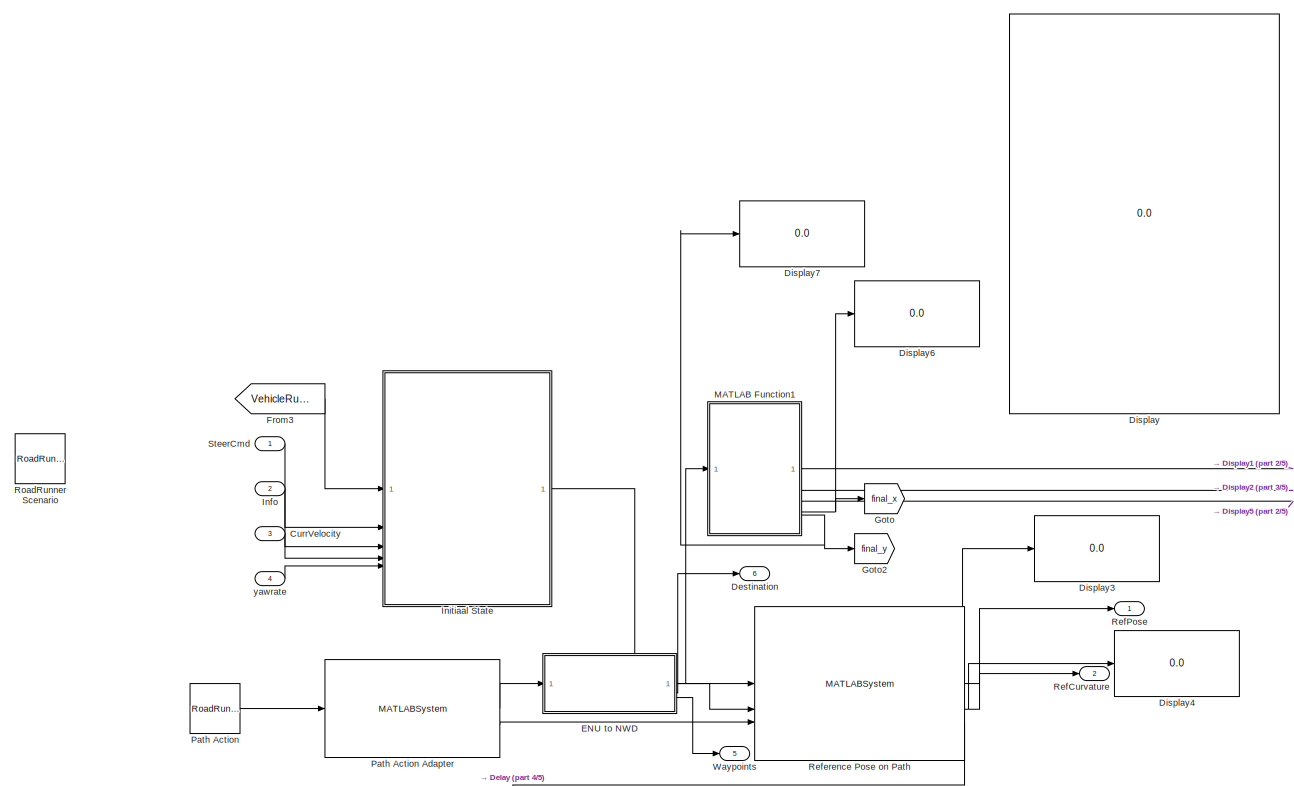
[diagram: Roadrunner Port - part 1/5, top left region]
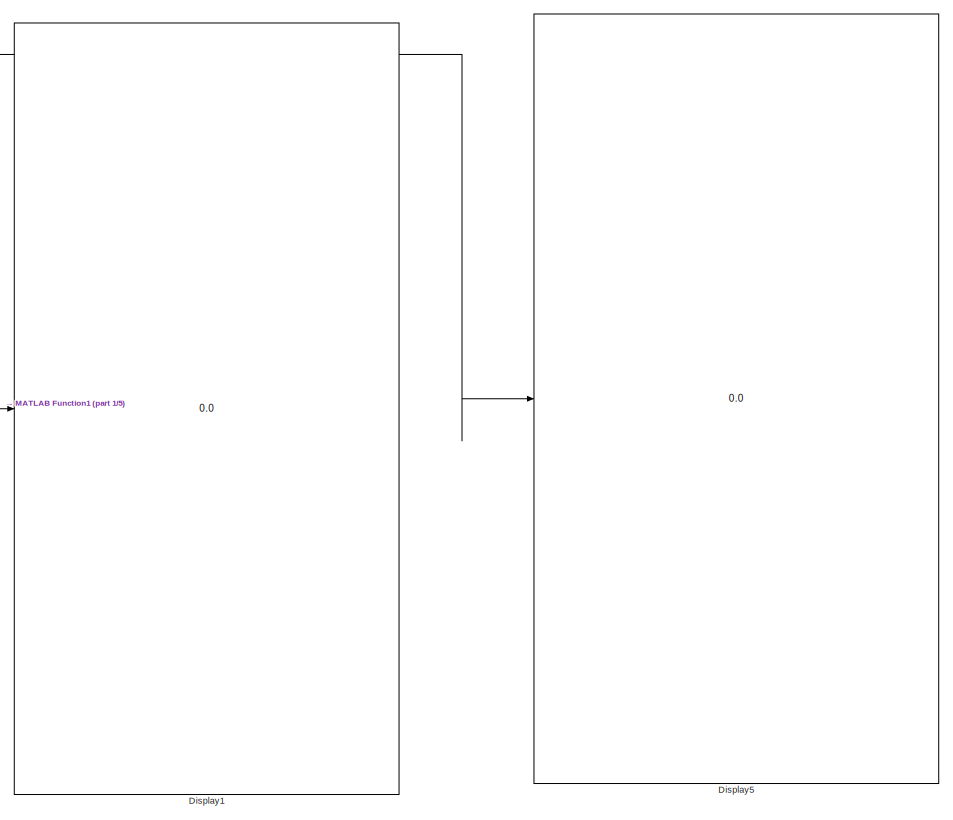
[diagram: Roadrunner Port - part 2/5, top right region]
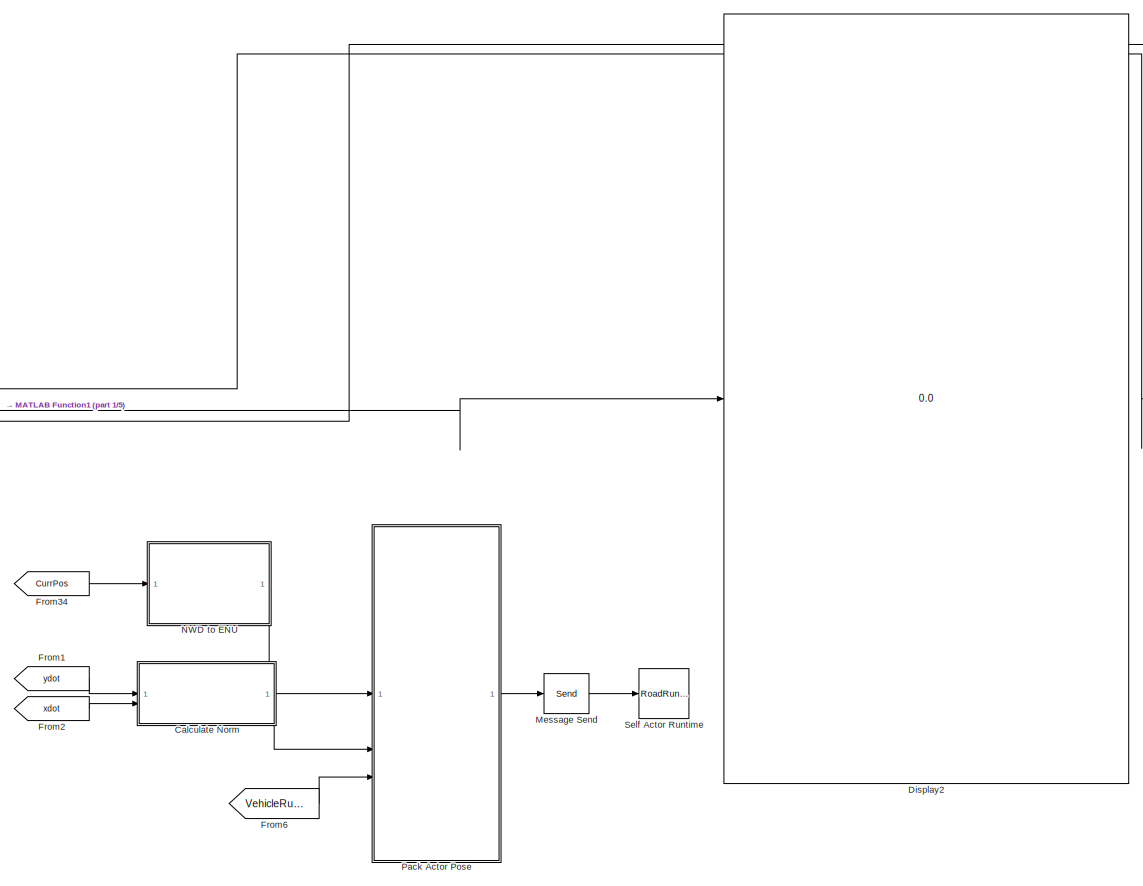
[diagram: Roadrunner Port - part 3/5, central region]
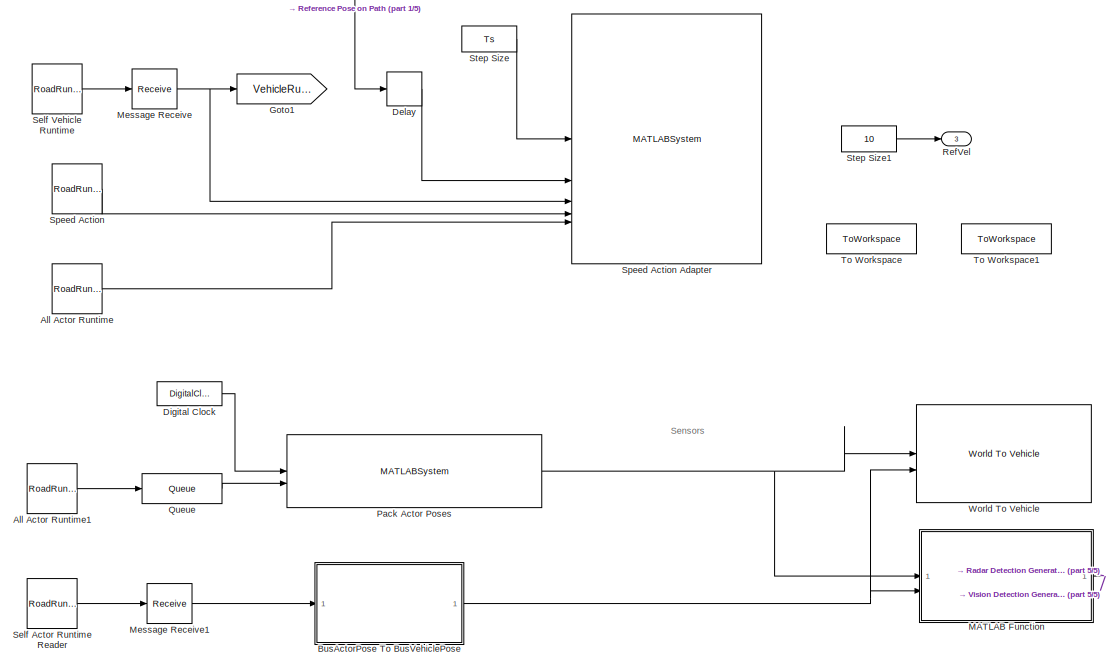
[diagram: Roadrunner Port - part 4/5, bottom left region]
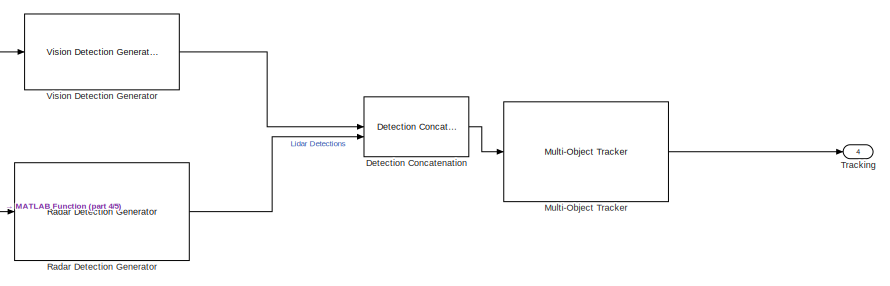
[diagram: Roadrunner Port - part 5/5, bottom center region]
BLOCK [SubSystem] Roadrunner Port
BLOCK [Reference] Roadrunner Port/All Actor Runtime  REF=roadrunnerscenario/RoadRunner Scenario
Reader
  Commented = on
  SourceBlock = roadrunnerscenario/RoadRunner Scenario\nReader
BLOCK [Reference] Roadrunner Port/All Actor Runtime1  REF=roadrunnerscenario/RoadRunner Scenario
Reader
  SourceBlock = roadrunnerscenario/RoadRunner Scenario\nReader
BLOCK [SubSystem] Roadrunner Port/BusActorPose To BusVehiclePose
BLOCK [BusCreator] Roadrunner Port/BusActorPose To BusVehiclePose/Bus Creator
  DisplayOption = bar
  InheritFromInputs = off
  Inputs = 7
  NonVirtualBus = on
  OutDataTypeStr = Bus: BusVehiclePose
BLOCK [BusSelector] Roadrunner Port/BusActorPose To BusVehiclePose/Bus Selector
  OutputSignals = ActorID,Position,Velocity,Roll,Pitch,Yaw,AngularVelocity
BLOCK [Inport] Roadrunner Port/BusActorPose To BusVehiclePose/BusActorPose
BLOCK [Outport] Roadrunner Port/BusActorPose To BusVehiclePose/BusVehiclePose
BLOCK [SubSystem] Roadrunner Port/Calculate Norm
BLOCK [Sum] Roadrunner Port/Calculate Norm/Add
  IconShape = rectangular
BLOCK [Inport] Roadrunner Port/Calculate Norm/Lateral Velocity
BLOCK [Inport] Roadrunner Port/Calculate Norm/Longitudinal Velocity
  Port = 2
BLOCK [Math] Roadrunner Port/Calculate Norm/Math Function
  Operator = square
BLOCK [Math] Roadrunner Port/Calculate Norm/Math Function1
  Operator = square
BLOCK [Outport] Roadrunner Port/Calculate Norm/Speed
BLOCK [Sqrt] Roadrunner Port/Calculate Norm/Sqrt
BLOCK [Inport] Roadrunner Port/CurrVelocity
  Port = 3
BLOCK [Delay] Roadrunner Port/Delay
  Commented = on
  DelayLength = 1
  InitialCondition = logical(0)
  InputPortMap = u0
BLOCK [Outport] Roadrunner Port/Destination
  Port = 6
BLOCK [Reference] Roadrunner Port/Detection Concatenation  REF=trackingutilitieslib/Detection Concatenation
  SourceBlock = trackingutilitieslib/Detection Concatenation
  SourceType = matlabshared.tracking.internal.DetectionConcatenation
BLOCK [DigitalClock] Roadrunner Port/Digital Clock
  SampleTime = Ts
BLOCK [Display] Roadrunner Port/Display
  Decimation = 1
BLOCK [Display] Roadrunner Port/Display1
  Decimation = 1
BLOCK [Display] Roadrunner Port/Display2
  Decimation = 1
BLOCK [Display] Roadrunner Port/Display3
  Decimation = 1
BLOCK [Display] Roadrunner Port/Display4
  Decimation = 1
BLOCK [Display] Roadrunner Port/Display5
  Decimation = 1
BLOCK [Display] Roadrunner Port/Display6
  Decimation = 1
BLOCK [Display] Roadrunner Port/Display7
  Decimation = 1
BLOCK [SubSystem] Roadrunner Port/ENU to NWD
BLOCK [Outport] Roadrunner Port/ENU to NWD/Cuboid Position
BLOCK [Display] Roadrunner Port/ENU to NWD/Display
  Decimation = 1
BLOCK [Display] Roadrunner Port/ENU to NWD/Display1
  Decimation = 1
BLOCK [Display] Roadrunner Port/ENU to NWD/Display2
  Decimation = 1
BLOCK [Display] Roadrunner Port/ENU to NWD/Display4
  Decimation = 1
BLOCK [Display] Roadrunner Port/ENU to NWD/Display5
  Decimation = 1
BLOCK [Gain] Roadrunner Port/ENU to NWD/Gain
  Gain = -1
BLOCK [SubSystem] Roadrunner Port/ENU to NWD/MATLAB Function
  ErrorFcn = Stateflow.Translate.translate
  LibrarySourceBlock = simulink/User-Defined\nFunctions/MATLAB Function
  PermitHierarchicalResolution = ExplicitOnly
  SFBlockType = MATLAB Function
  TreatAsAtomicUnit = on
BLOCK [Demux] Roadrunner Port/ENU to NWD/MATLAB Function/ Demux 
  Outputs = 1
BLOCK [S-Function] Roadrunner Port/ENU to NWD/MATLAB Function/ SFunction 
  EnableBusSupport = on
  FunctionName = sf_sfun
  PortCounts = [1 3]
  SFcnIsStateOwnerBlock = off
  SFunctionDeploymentMode = off
  Tag = Stateflow S-Function 31
BLOCK [Terminator] Roadrunner Port/ENU to NWD/MATLAB Function/ Terminator 
BLOCK [Outport] Roadrunner Port/ENU to NWD/MATLAB Function/destination_traj
BLOCK [Outport] Roadrunner Port/ENU to NWD/MATLAB Function/last_idx
  Port = 2
BLOCK [Inport] Roadrunner Port/ENU to NWD/MATLAB Function/traj
BLOCK [SubSystem] Roadrunner Port/ENU to NWD/MATLAB Function1
  Commented = on
  ErrorFcn = Stateflow.Translate.translate
  LibrarySourceBlock = simulink/User-Defined\nFunctions/MATLAB Function
  PermitHierarchicalResolution = ExplicitOnly
  SFBlockType = MATLAB Function
  TreatAsAtomicUnit = on
BLOCK [Demux] Roadrunner Port/ENU to NWD/MATLAB Function1/ Demux 
  Outputs = 1
BLOCK [S-Function] Roadrunner Port/ENU to NWD/MATLAB Function1/ SFunction 
  EnableBusSupport = on
  FunctionName = sf_sfun
  PortCounts = [1 2]
  SFcnIsStateOwnerBlock = off
  SFunctionDeploymentMode = off
  Tag = Stateflow S-Function 32
BLOCK [Terminator] Roadrunner Port/ENU to NWD/MATLAB Function1/ Terminator 
BLOCK [Inport] Roadrunner Port/ENU to NWD/MATLAB Function1/traj
BLOCK [Outport] Roadrunner Port/ENU to NWD/MATLAB Function1/trajectory_way
BLOCK [SubSystem] Roadrunner Port/ENU to NWD/MATLAB Function2
  ErrorFcn = Stateflow.Translate.translate
  LibrarySourceBlock = simulink/User-Defined\nFunctions/MATLAB Function
  PermitHierarchicalResolution = ExplicitOnly
  SFBlockType = MATLAB Function
  TreatAsAtomicUnit = on
BLOCK [Demux] Roadrunner Port/ENU to NWD/MATLAB Function2/ Demux 
  Outputs = 1
BLOCK [S-Function] Roadrunner Port/ENU to NWD/MATLAB Function2/ SFunction 
  EnableBusSupport = on
  FunctionName = sf_sfun
  PortCounts = [1 3]
  SFcnIsStateOwnerBlock = off
  SFunctionDeploymentMode = off
  Tag = Stateflow S-Function 38
BLOCK [Terminator] Roadrunner Port/ENU to NWD/MATLAB Function2/ Terminator 
BLOCK [Inport] Roadrunner Port/ENU to NWD/MATLAB Function2/u
BLOCK [Outport] Roadrunner Port/ENU to NWD/MATLAB Function2/y
BLOCK [Outport] Roadrunner Port/ENU to NWD/MATLAB Function2/y1
  Port = 2
BLOCK [SubSystem] Roadrunner Port/ENU to NWD/MATLAB Function3
  ErrorFcn = Stateflow.Translate.translate
  LibrarySourceBlock = simulink/User-Defined\nFunctions/MATLAB Function
  PermitHierarchicalResolution = ExplicitOnly
  SFBlockType = MATLAB Function
  TreatAsAtomicUnit = on
BLOCK [Demux] Roadrunner Port/ENU to NWD/MATLAB Function3/ Demux 
  Outputs = 1
BLOCK [S-Function] Roadrunner Port/ENU to NWD/MATLAB Function3/ SFunction 
  EnableBusSupport = on
  FunctionName = sf_sfun
  PortCounts = [1 2]
  SFcnIsStateOwnerBlock = off
  SFunctionDeploymentMode = off
  Tag = Stateflow S-Function 39
BLOCK [Terminator] Roadrunner Port/ENU to NWD/MATLAB Function3/ Terminator 
BLOCK [Inport] Roadrunner Port/ENU to NWD/MATLAB Function3/u
BLOCK [Outport] Roadrunner Port/ENU to NWD/MATLAB Function3/y
BLOCK [Concatenate] Roadrunner Port/ENU to NWD/Matrix Concatenate
  ConcatenateDimension = 2
  Mode = Multidimensional array
  NumInputs = 3
BLOCK [Inport] Roadrunner Port/ENU to NWD/RR Position
BLOCK [Selector] Roadrunner Port/ENU to NWD/Selector
  IndexOptions = Select all,Index vector (dialog)
  Indices = [1 3],1
  InputPortWidth = 3
  NumberOfDimensions = 2
  OutputSizes = 1,1
BLOCK [Selector] Roadrunner Port/ENU to NWD/Selector1
  IndexOptions = Select all,Index vector (dialog)
  Indices = [1 3],2
  InputPortWidth = 3
  NumberOfDimensions = 2
  OutputSizes = 1,1
BLOCK [Selector] Roadrunner Port/ENU to NWD/Selector2
  IndexOptions = Select all,Index vector (dialog)
  Indices = [1 3],3
  InputPortWidth = 3
  NumberOfDimensions = 2
  OutputSizes = 1,1
BLOCK [Outport] Roadrunner Port/ENU to NWD/Trajectory Destination
  Port = 2
BLOCK [Outport] Roadrunner Port/ENU to NWD/Waypts_traj
  Port = 3
  VarSizeSig = No
BLOCK [From] Roadrunner Port/From1
  GotoTag = ydot
  TagVisibility = global
BLOCK [From] Roadrunner Port/From2
  GotoTag = xdot
  TagVisibility = global
BLOCK [From] Roadrunner Port/From3
  GotoTag = VehicleRuntime
BLOCK [From] Roadrunner Port/From34
  GotoTag = CurrPos
  TagVisibility = global
BLOCK [From] Roadrunner Port/From6
  GotoTag = VehicleRuntime
BLOCK [Goto] Roadrunner Port/Goto
  GotoTag = final_x
  TagVisibility = global
BLOCK [Goto] Roadrunner Port/Goto1
  GotoTag = VehicleRuntime
BLOCK [Goto] Roadrunner Port/Goto2
  GotoTag = final_y
  TagVisibility = global
BLOCK [Inport] Roadrunner Port/Info
  Port = 2
BLOCK [SubSystem] Roadrunner Port/Initiaal State
BLOCK [Constant] Roadrunner Port/Initiaal State/Constant5
BLOCK [Outport] Roadrunner Port/Initiaal State/CurrVehicleInfo
BLOCK [Inport] Roadrunner Port/Initiaal State/CurrVelocity
  Port = 4
BLOCK [Inport] Roadrunner Port/Initiaal State/Info
  Port = 3
BLOCK [SubSystem] Roadrunner Port/Initiaal State/Initialize State
BLOCK [SubSystem] Roadrunner Port/Initiaal State/Initialize State/Calculate Initial States
BLOCK [SubSystem] Roadrunner Port/Initiaal State/Initialize State/Calculate Initial States/Calculate Initial States
  ErrorFcn = Stateflow.Translate.translate
  PermitHierarchicalResolution = ExplicitOnly
  SFBlockType = MATLAB Function
  TreatAsAtomicUnit = on
BLOCK [Demux] Roadrunner Port/Initiaal State/Initialize State/Calculate Initial States/Calculate Initial States/ Demux 
  Outputs = 1
BLOCK [S-Function] Roadrunner Port/Initiaal State/Initialize State/Calculate Initial States/Calculate Initial States/ SFunction 
  EnableBusSupport = on
  FunctionName = sf_sfun
  PortCounts = [1 2]
  SFcnIsStateOwnerBlock = off
  SFunctionDeploymentMode = off
  Tag = Stateflow S-Function 22
BLOCK [Terminator] Roadrunner Port/Initiaal State/Initialize State/Calculate Initial States/Calculate Initial States/ Terminator 
BLOCK [Outport] Roadrunner Port/Initiaal State/Initialize State/Calculate Initial States/Calculate Initial States/egoInitialState
BLOCK [Inport] Roadrunner Port/Initiaal State/Initialize State/Calculate Initial States/Calculate Initial States/egoRuntime
BLOCK [Outport] Roadrunner Port/Initiaal State/Initialize State/Calculate Initial States/EgoInitialState
BLOCK [Inport] Roadrunner Port/Initiaal State/Initialize State/Calculate Initial States/EgoRuntime
BLOCK [TriggerPort] Roadrunner Port/Initiaal State/Initialize State/Calculate Initial States/Trigger
  InitialTriggerSignalState = negative
  PortDimensions = 1
  StatesWhenEnabling = held
  VariantControl = (inherit)
BLOCK [Constant] Roadrunner Port/Initiaal State/Initialize State/Constant
  SampleTime = 0.05
  Value = 0
BLOCK [Delay] Roadrunner Port/Initiaal State/Initialize State/Delay
  DelayLength = 1
  InitialCondition = 1
  InputPortMap = u0
BLOCK [Outport] Roadrunner Port/Initiaal State/Initialize State/InitialState
BLOCK [Inport] Roadrunner Port/Initiaal State/Initialize State/VehicleRuntime
BLOCK [SubSystem] Roadrunner Port/Initiaal State/Pack Current States
BLOCK [BusCreator] Roadrunner Port/Initiaal State/Pack Current States/Bus Creator
  DisplayOption = bar
  InheritFromInputs = off
  Inputs = 5
  NonVirtualBus = on
  OutDataTypeStr = Bus: BusVehicleInfo
BLOCK [BusSelector] Roadrunner Port/Initiaal State/Pack Current States/Bus Selector
  OutputSignals = InertFrm.RearAxl.Disp.X,InertFrm.RearAxl.Disp.Y,InertFrm.Cg.Ang.psi
BLOCK [Inport] Roadrunner Port/Initiaal State/Pack Current States/CurrSteer
BLOCK [Outport] Roadrunner Port/Initiaal State/Pack Current States/CurrVehicleInfo
  VectorParamsAs1DForOutWhenUnconnected = off
BLOCK [Inport] Roadrunner Port/Initiaal State/Pack Current States/CurrVelocity
  Port = 3
BLOCK [Inport] Roadrunner Port/Initiaal State/Pack Current States/CurrYawRate
  Port = 4
BLOCK [Delay] Roadrunner Port/Initiaal State/Pack Current States/Delay1
  DelayLength = 1
  InitialConditionSource = Input port
  InputPortMap = u0,p4
BLOCK [SubSystem] Roadrunner Port/Initiaal State/Pack Current States/Delayed Steering System
BLOCK [Sum] Roadrunner Port/Initiaal State/Pack Current States/Delayed Steering System/Add
  IconShape = rectangular
  Inputs = +-
BLOCK [Outport] Roadrunner Port/Initiaal State/Pack Current States/Delayed Steering System/CurrSteer
  VectorParamsAs1DForOutWhenUnconnected = off
BLOCK [TransferFcn] Roadrunner Port/Initiaal State/Pack Current States/Delayed Steering System/Delay
  Denominator = [0.1 0]
BLOCK [Inport] Roadrunner Port/Initiaal State/Pack Current States/Delayed Steering System/SteerCmd
BLOCK [Inport] Roadrunner Port/Initiaal State/Pack Current States/Direction
  Port = 6
BLOCK [Inport] Roadrunner Port/Initiaal State/Pack Current States/Info
  Port = 2
BLOCK [Math] Roadrunner Port/Initiaal State/Pack Current States/Math Function
  Operator = transpose
  SignedPower = on
BLOCK [Mux] Roadrunner Port/Initiaal State/Pack Current States/Mux
  DisplayOption = bar
  Inputs = 3
BLOCK [Reference] Roadrunner Port/Initiaal State/Pack Current States/Radians to Degrees  REF=simulink_extras/Transformations/Radians
to Degrees
  SourceBlock = simulink_extras/Transformations/Radians\nto Degrees
  SourceType = RadiansToDegrees
BLOCK [RateTransition] Roadrunner Port/Initiaal State/Pack Current States/Rate Transition1
  InitialCondition = -1
  OutPortSampleTime = Ts
BLOCK [RateTransition] Roadrunner Port/Initiaal State/Pack Current States/Rate Transition2
  InitialCondition = -1
  OutPortSampleTime = Ts
BLOCK [RateTransition] Roadrunner Port/Initiaal State/Pack Current States/Rate Transition3
  InitialCondition = -1
  OutPortSampleTime = Ts
BLOCK [RateTransition] Roadrunner Port/Initiaal State/Pack Current States/Rate Transition4
  InitialCondition = -1
  OutPortSampleTime = Ts
BLOCK [RateTransition] Roadrunner Port/Initiaal State/Pack Current States/Rate Transition5
  InitialCondition = -1
  OutPortSampleTime = Ts
BLOCK [RateTransition] Roadrunner Port/Initiaal State/Pack Current States/Rate Transition6
  InitialCondition = -1
  OutPortSampleTime = Ts
BLOCK [Inport] Roadrunner Port/Initiaal State/Pack Current States/egoInitialState
  Port = 5
BLOCK [Inport] Roadrunner Port/Initiaal State/SteerCmd
  Port = 2
BLOCK [Inport] Roadrunner Port/Initiaal State/VehicleRuntime
BLOCK [Inport] Roadrunner Port/Initiaal State/yawrate
  Port = 5
BLOCK [SubSystem] Roadrunner Port/MATLAB Function
  ErrorFcn = Stateflow.Translate.translate
  LibrarySourceBlock = simulink/User-Defined\nFunctions/MATLAB Function
  PermitHierarchicalResolution = ExplicitOnly
  SFBlockType = MATLAB Function
  TreatAsAtomicUnit = on
BLOCK [Demux] Roadrunner Port/MATLAB Function/ Demux 
  Outputs = 1
BLOCK [S-Function] Roadrunner Port/MATLAB Function/ SFunction 
  EnableBusSupport = on
  FunctionName = sf_sfun
  PortCounts = [2 2]
  SFcnIsStateOwnerBlock = off
  SFunctionDeploymentMode = off
  Tag = Stateflow S-Function 20
BLOCK [Terminator] Roadrunner Port/MATLAB Function/ Terminator 
BLOCK [Inport] Roadrunner Port/MATLAB Function/ActorsIn
BLOCK [Outport] Roadrunner Port/MATLAB Function/EgoRefActors
BLOCK [Inport] Roadrunner Port/MATLAB Function/EgoVeh
  Port = 2
BLOCK [SubSystem] Roadrunner Port/MATLAB Function1
  ErrorFcn = Stateflow.Translate.translate
  LibrarySourceBlock = simulink/User-Defined\nFunctions/MATLAB Function
  PermitHierarchicalResolution = ExplicitOnly
  SFBlockType = MATLAB Function
  TreatAsAtomicUnit = on
BLOCK [Demux] Roadrunner Port/MATLAB Function1/ Demux 
  Outputs = 1
BLOCK [S-Function] Roadrunner Port/MATLAB Function1/ SFunction 
  EnableBusSupport = on
  FunctionName = sf_sfun
  PortCounts = [1 7]
  SFcnIsStateOwnerBlock = off
  SFunctionDeploymentMode = off
  Tag = Stateflow S-Function 26
BLOCK [Terminator] Roadrunner Port/MATLAB Function1/ Terminator 
BLOCK [Outport] Roadrunner Port/MATLAB Function1/final_x
  Port = 5
BLOCK [Outport] Roadrunner Port/MATLAB Function1/final_y
  Port = 6
BLOCK [Outport] Roadrunner Port/MATLAB Function1/lat_out
  Port = 2
BLOCK [Outport] Roadrunner Port/MATLAB Function1/long_out
BLOCK [Outport] Roadrunner Port/MATLAB Function1/out
  Port = 4
BLOCK [Inport] Roadrunner Port/MATLAB Function1/u
BLOCK [Outport] Roadrunner Port/MATLAB Function1/z_out
  Port = 3
BLOCK [Receive] Roadrunner Port/Message Receive
  InputPortMap = u0
  InputPortMessageModes = m
  OutputPortMap = o1
BLOCK [Receive] Roadrunner Port/Message Receive1
  InputPortMap = u0
  InputPortMessageModes = m
  OutputPortMap = o1
  SampleTime = Ts
BLOCK [Send] Roadrunner Port/Message Send
  InputPortMap = u1
  OutputPortMessageModes = m
BLOCK [Reference] Roadrunner Port/Multi-Object Tracker  REF=drivinglib/Multi-Object Tracker
  SourceBlock = drivinglib/Multi-Object Tracker
  SourceType = multiObjectTracker
BLOCK [SubSystem] Roadrunner Port/NWD to ENU
BLOCK [Inport] Roadrunner Port/NWD to ENU/Cuboid Pose
BLOCK [Gain] Roadrunner Port/NWD to ENU/Gain
  Gain = 180/pi
BLOCK [Gain] Roadrunner Port/NWD to ENU/Gain1
  Gain = -1
BLOCK [Concatenate] Roadrunner Port/NWD to ENU/Matrix Concatenate
  ConcatenateDimension = 2
  Mode = Multidimensional array
  NumInputs = 3
BLOCK [Outport] Roadrunner Port/NWD to ENU/RR Pose
BLOCK [Selector] Roadrunner Port/NWD to ENU/Selector
  IndexOptions = Index vector (dialog)
  Indices = 3
  InputPortWidth = 3
  OutputSizes = 1
BLOCK [Selector] Roadrunner Port/NWD to ENU/Selector1
  IndexOptions = Index vector (dialog)
  Indices = 1
  InputPortWidth = 3
  OutputSizes = 1
BLOCK [Selector] Roadrunner Port/NWD to ENU/Selector2
  IndexOptions = Index vector (dialog)
  Indices = 2
  InputPortWidth = 3
  OutputSizes = 1
BLOCK [SubSystem] Roadrunner Port/Pack Actor Pose
BLOCK [BusAssignment] Roadrunner Port/Pack Actor Pose/Assign
  AssignedSignals = Pose,Velocity
BLOCK [BusSelector] Roadrunner Port/Pack Actor Pose/Bus Selector
  OutputSignals = ActorRuntime
BLOCK [Inport] Roadrunner Port/Pack Actor Pose/CurrPose
BLOCK [Inport] Roadrunner Port/Pack Actor Pose/CurrSpeed
  Port = 2
BLOCK [Outport] Roadrunner Port/Pack Actor Pose/Ego Pose
BLOCK [SubSystem] Roadrunner Port/Pack Actor Pose/Pose Generation
  ErrorFcn = Stateflow.Translate.translate
  PermitHierarchicalResolution = ExplicitOnly
  SFBlockType = MATLAB Function
  TreatAsAtomicUnit = on
BLOCK [Demux] Roadrunner Port/Pack Actor Pose/Pose Generation/ Demux 
  Outputs = 1
BLOCK [S-Function] Roadrunner Port/Pack Actor Pose/Pose Generation/ SFunction 
  EnableBusSupport = on
  FunctionName = sf_sfun
  PortCounts = [1 2]
  SFcnIsStateOwnerBlock = off
  SFunctionDeploymentMode = off
  Tag = Stateflow S-Function 23
BLOCK [Terminator] Roadrunner Port/Pack Actor Pose/Pose Generation/ Terminator 
BLOCK [Outport] Roadrunner Port/Pack Actor Pose/Pose Generation/currPose
BLOCK [Inport] Roadrunner Port/Pack Actor Pose/Pose Generation/pose
BLOCK [Selector] Roadrunner Port/Pack Actor Pose/Selector
  IndexOptions = Index vector (dialog)
  Indices = 3
  InputPortWidth = 3
  OutputSizes = 1
BLOCK [Inport] Roadrunner Port/Pack Actor Pose/VehicleRuntime
  Port = 3
BLOCK [SubSystem] Roadrunner Port/Pack Actor Pose/Velocity XYZ Components
  ErrorFcn = Stateflow.Translate.translate
  PermitHierarchicalResolution = ExplicitOnly
  SFBlockType = MATLAB Function
  TreatAsAtomicUnit = on
BLOCK [Demux] Roadrunner Port/Pack Actor Pose/Velocity XYZ Components/ Demux 
  Outputs = 1
BLOCK [S-Function] Roadrunner Port/Pack Actor Pose/Velocity XYZ Components/ SFunction 
  EnableBusSupport = on
  FunctionName = sf_sfun
  PortCounts = [2 2]
  SFcnIsStateOwnerBlock = off
  SFunctionDeploymentMode = off
  Tag = Stateflow S-Function 24
BLOCK [Terminator] Roadrunner Port/Pack Actor Pose/Velocity XYZ Components/ Terminator 
BLOCK [Inport] Roadrunner Port/Pack Actor Pose/Velocity XYZ Components/speed
  Port = 2
BLOCK [Outport] Roadrunner Port/Pack Actor Pose/Velocity XYZ Components/velocity
BLOCK [Inport] Roadrunner Port/Pack Actor Pose/Velocity XYZ Components/yaw
BLOCK [MATLABSystem] Roadrunner Port/Pack Actor Poses
  ActorProfiles = struct( 'ActorID', 1, 'ClassID', 1, 'Length', 4.7, 'Width', 1.8, 'Height', 1.4, 'OriginOffset', [ 0, 0, 0 ], 'FrontOverhang', 0, 'RearOverhang', 0, 'Wheelbase', 0, 'Color', [ 0, 0, 0 ] )
  DefaultActorPoses = Simulink.Bus.createMATLABStruct( "BusActors" )
  EgoActorID = 1
  InputPortMessageModes = n,m
  MaskDisplay = disp(['HelperPack' char(10) 'DrivingScenarioPoses']);\nport_label('input',1,'time');\nport_label('input',2,'msgs');\nport_label('output',1,'TargetPoses');
  MaskType = HelperPackDrivingScenarioPoses
  System = HelperPackDrivingScenarioPoses
BLOCK [Reference] Roadrunner Port/Path Action  REF=roadrunnerscenario/RoadRunner Scenario
Reader
  SourceBlock = roadrunnerscenario/RoadRunner Scenario\nReader
BLOCK [MATLABSystem] Roadrunner Port/Path Action Adapter
  InputPortMessageModes = m
  MaskDisplay = disp(['HelperPathActionAdapter' char(10) '' char(10) '']);\nport_label('input',1,'PathAction');\nport_label('output',1,'Path');\nport_label('output',2,'NumPoints');
  MaskType = HelperPathActionAdapter
  System = HelperPathActionAdapter
BLOCK [Queue] Roadrunner Port/Queue
  Capacity = maxNumActors+1
  InputPortMap = u0
  InputPortMessageModes = m
  OutputPortMap = o5
  OutputPortMessageModes = m
  OverwriteOldest = on
BLOCK [Reference] Roadrunner Port/Radar Detection Generator  REF=drivingscenarioandsensors/Radar Detection Generator
  SourceBlock = drivingscenarioandsensors/Radar Detection Generator
  SourceType = radarDetectionGenerator
BLOCK [Outport] Roadrunner Port/RefCurvature
  Port = 2
BLOCK [Outport] Roadrunner Port/RefPose
BLOCK [Outport] Roadrunner Port/RefVel
  Port = 3
BLOCK [MATLABSystem] Roadrunner Port/Reference Pose on Path
  Commented = on
  MaskDisplay = disp(['HelperReferencePoseOnPath' char(10) '' char(10) '' char(10) '' char(10) '']);\nport_label('input',1,'PrevVehicleInfo');\nport_label('input',2,'Trajectory');\nport_label('input',3,'NumTrajPoints');\nport_label('output',1,'RefPointOnPath');\nport_label('output',2,'RefCurvature');\nport_label('output',3,'IsGoalReached');
  MaskType = HelperReferencePoseOnPath
  System = HelperReferencePoseOnPath
BLOCK [Reference] Roadrunner Port/RoadRunner Scenario  REF=roadrunnerscenario/RoadRunner Scenario
  SourceBlock = roadrunnerscenario/RoadRunner Scenario
BLOCK [Reference] Roadrunner Port/Self Actor Runtime  REF=roadrunnerscenario/RoadRunner Scenario
Writer
  SourceBlock = roadrunnerscenario/RoadRunner Scenario\nWriter
BLOCK [Reference] Roadrunner Port/Self Actor Runtime Reader  REF=roadrunnerscenario/RoadRunner Scenario
Reader
  SourceBlock = roadrunnerscenario/RoadRunner Scenario\nReader
BLOCK [Reference] Roadrunner Port/Self Vehicle Runtime  REF=roadrunnerscenario/RoadRunner Scenario
Reader
  SourceBlock = roadrunnerscenario/RoadRunner Scenario\nReader
BLOCK [Reference] Roadrunner Port/Speed Action  REF=roadrunnerscenario/RoadRunner Scenario
Reader
  Commented = on
  SourceBlock = roadrunnerscenario/RoadRunner Scenario\nReader
BLOCK [MATLABSystem] Roadrunner Port/Speed Action Adapter
  Commented = on
  InputPortMessageModes = n,n,n,m,m
  MaskDisplay = disp(['HelperSpeedActionAdapter' char(10) '' char(10) '']);\nport_label('input',1,'timestep');\nport_label('input',2,'stopVehicle');\nport_label('input',3,'vehicleRuntime');\nport_label('input',4,'msgSpeedAction');\nport_label('input',5,'msgAllVehicleRuntime');\nport_label('output',1,'currentSpeed');
  MaskType = HelperSpeedActionAdapter
  System = HelperSpeedActionAdapter
BLOCK [Inport] Roadrunner Port/SteerCmd
BLOCK [Constant] Roadrunner Port/Step Size
  Value = Ts
BLOCK [Constant] Roadrunner Port/Step Size1
  Value = 10
BLOCK [ToWorkspace] Roadrunner Port/To Workspace
  Commented = on
  FixptAsFi = on
  MaxDataPoints = inf
  SampleTime = -1
  SaveFormat = Timeseries
  VariableName = simout
BLOCK [ToWorkspace] Roadrunner Port/To Workspace1
  Commented = on
  FixptAsFi = on
  MaxDataPoints = inf
  SampleTime = -1
  SaveFormat = Timeseries
  VariableName = simout1
BLOCK [Outport] Roadrunner Port/Tracking
  Port = 4
BLOCK [Reference] Roadrunner Port/Vision Detection Generator  REF=drivingscenarioandsensors/Vision Detection Generator
  SourceBlock = drivingscenarioandsensors/Vision Detection Generator
  SourceType = visionDetectionGenerator
BLOCK [Outport] Roadrunner Port/Waypoints
  Port = 5
BLOCK [Reference] Roadrunner Port/World To Vehicle  REF=drivingscenarioandsensors/World To Vehicle
  Commented = on
  SourceBlock = drivingscenarioandsensors/World To Vehicle
  SourceType = driving.scenario.internal.WorldToVehicle
BLOCK [Inport] Roadrunner Port/yawrate
  Port = 4
BLOCK [Scope] Scope
  Floating = off
  NumInputPorts = 1
  ScopeSpecificationString = Simulink.scopes.TimeScopeBlockCfg('CurrentConfiguration', extmgr.ConfigurationSet(extmgr.Configuration('Core','General UI',true),extmgr.Configuration('Core','Source UI',true),extmgr.Configuration('Sources','WiredSimulink',true,'DataLoggingVariableName','ScopeData1'),extmgr.Configuration('Visuals','Time Domain',true,'SerializedDisplays',{struct('MinYLimReal','-1.66891','MaxYLimReal','15.03023','YLa...<+1406ch>
BLOCK [Scope] Scope1
  Floating = off
  NumInputPorts = 1
  ScopeSpecificationString = Simulink.scopes.TimeScopeBlockCfg('CurrentConfiguration', extmgr.ConfigurationSet(extmgr.Configuration('Core','General UI',true),extmgr.Configuration('Core','Source UI',true),extmgr.Configuration('Sources','WiredSimulink',true,'DataLoggingVariableName','ScopeData3'),extmgr.Configuration('Visuals','Time Domain',true,'SerializedDisplays',{struct('MinYLimReal','-1.25','MaxYLimReal','11.25','YLabelRea...<+1396ch>
BLOCK [Scope] Scope2
  Floating = off
  NumInputPorts = 1
  ScopeSpecificationString = Simulink.scopes.TimeScopeBlockCfg('CurrentConfiguration', extmgr.ConfigurationSet(extmgr.Configuration('Core','General UI',true),extmgr.Configuration('Core','Source UI',true),extmgr.Configuration('Sources','WiredSimulink',true,'DataLoggingVariableName','ScopeData1'),extmgr.Configuration('Visuals','Time Domain',true,'SerializedDisplays',{struct('MinYLimReal','9.00000','MaxYLimReal','11.00000','YLab...<+1438ch>
BLOCK [ToWorkspace] To Workspace1
  FixptAsFi = on
  MaxDataPoints = inf
  SampleTime = -1
  SaveFormat = Timeseries
  VariableName = LaneBounds
BLOCK [ToWorkspace] To Workspace2
  Commented = on
  FixptAsFi = on
  MaxDataPoints = inf
  SampleTime = -1
  Save2DSignal = 2-D array (concatenate along first dimension)
  VariableName = xd
BLOCK [ToWorkspace] To Workspace3
  Commented = on
  FixptAsFi = on
  MaxDataPoints = inf
  SampleTime = -1
  Save2DSignal = 2-D array (concatenate along first dimension)
  VariableName = yd
BLOCK [SubSystem] Vehicle Dynamics
BLOCK [BusCreator] Vehicle Dynamics/Bus Creator1
  DisplayOption = bar
  InheritFromInputs = on
  Inputs = 4
BLOCK [BusCreator] Vehicle Dynamics/Bus Creator2
  DisplayOption = bar
  InheritFromInputs = on
  Inputs = 4
BLOCK [BusCreator] Vehicle Dynamics/Bus Creator3
  DisplayOption = bar
  InheritFromInputs = on
  Inputs = 4
BLOCK [BusCreator] Vehicle Dynamics/Bus Creator4
  DisplayOption = bar
  InheritFromInputs = on
  Inputs = 4
BLOCK [Constant] Vehicle Dynamics/Constant
  Value = 120
BLOCK [Constant] Vehicle Dynamics/Constant1
  Value = 0
BLOCK [Constant] Vehicle Dynamics/Constant2
  Value = -1000
BLOCK [Constant] Vehicle Dynamics/Constant3
BLOCK [Constant] Vehicle Dynamics/Constant4
BLOCK [Constant] Vehicle Dynamics/Constant5
BLOCK [Constant] Vehicle Dynamics/Constant9
BLOCK [Outport] Vehicle Dynamics/EgoVehStates
BLOCK [FromWorkspace] Vehicle Dynamics/From Workspace
  SampleTime = ts
  VariableName = BRAKE_CMD
BLOCK [FromWorkspace] Vehicle Dynamics/From Workspace1
  SampleTime = ts
  VariableName = STEER_CMD
BLOCK [FromWorkspace] Vehicle Dynamics/From Workspace4
  SampleTime = ts
  VariableName = TORQUE_CMD
BLOCK [Outport] Vehicle Dynamics/Info
  Port = 2
BLOCK [SubSystem] Vehicle Dynamics/Info2ActorState
BLOCK [Outport] Vehicle Dynamics/Info2ActorState/ActorState
BLOCK [BusCreator] Vehicle Dynamics/Info2ActorState/Bus Creator
  DisplayOption = bar
  InheritFromInputs = on
  Inputs = ActorID,Position,Velocity,Acceleration,Roll,Pitch,Yaw,AngularVelocity
  NonVirtualBus = on
  OutDataTypeStr = Bus: BusActorState
BLOCK [BusSelector] Vehicle Dynamics/Info2ActorState/Bus Selector
  OutputSignals = InertFrm.Cg.Disp.X,InertFrm.Cg.Disp.Y,InertFrm.Cg.Disp.Z,InertFrm.Cg.Vel.Xdot,InertFrm.Cg.Vel.Ydot,InertFrm.Cg.Vel.Zdot,InertFrm.Cg.Ang.phi,InertFrm.Cg.Ang.theta,InertFrm.Cg.Ang.psi
BLOCK [Constant] Vehicle Dynamics/Info2ActorState/Constant
  SampleTime = 0.05
  Value = session.data.EgoCarId
BLOCK [Derivative] Vehicle Dynamics/Info2ActorState/Derivative
BLOCK [Derivative] Vehicle Dynamics/Info2ActorState/Derivative1
BLOCK [Derivative] Vehicle Dynamics/Info2ActorState/Derivative2
BLOCK [Derivative] Vehicle Dynamics/Info2ActorState/Derivative3
BLOCK [Derivative] Vehicle Dynamics/Info2ActorState/Derivative4
BLOCK [Derivative] Vehicle Dynamics/Info2ActorState/Derivative5
BLOCK [Gain] Vehicle Dynamics/Info2ActorState/Gain
  Gain = -180/pi
BLOCK [Gain] Vehicle Dynamics/Info2ActorState/Gain1
  Gain = -180/pi
BLOCK [Gain] Vehicle Dynamics/Info2ActorState/Gain2
  Gain = -180/pi
BLOCK [Gain] Vehicle Dynamics/Info2ActorState/Gain3
  Gain = -1
BLOCK [Gain] Vehicle Dynamics/Info2ActorState/Gain4
  Gain = -1
BLOCK [Gain] Vehicle Dynamics/Info2ActorState/Gain5
  Gain = -1
BLOCK [Gain] Vehicle Dynamics/Info2ActorState/Gain6
  Gain = -1
BLOCK [Inport] Vehicle Dynamics/Info2ActorState/Info
BLOCK [SubSystem] Vehicle Dynamics/Info2ActorState/MATLAB Function
  ErrorFcn = Stateflow.Translate.translate
  PermitHierarchicalResolution = ExplicitOnly
  SFBlockType = MATLAB Function
  SystemSampleTime = 0.05
  TreatAsAtomicUnit = on
BLOCK [Demux] Vehicle Dynamics/Info2ActorState/MATLAB Function/ Demux 
  Outputs = 1
BLOCK [S-Function] Vehicle Dynamics/Info2ActorState/MATLAB Function/ SFunction 
  EnableBusSupport = on
  FunctionName = sf_sfun
  PortCounts = [3 2]
  SFcnIsStateOwnerBlock = off
  SFunctionDeploymentMode = off
  Tag = Stateflow S-Function 5
BLOCK [Terminator] Vehicle Dynamics/Info2ActorState/MATLAB Function/ Terminator 
BLOCK [Outport] Vehicle Dynamics/Info2ActorState/MATLAB Function/Position
BLOCK [Inport] Vehicle Dynamics/Info2ActorState/MATLAB Function/X
BLOCK [Inport] Vehicle Dynamics/Info2ActorState/MATLAB Function/Y
  Port = 2
BLOCK [Inport] Vehicle Dynamics/Info2ActorState/MATLAB Function/Z
  Port = 3
BLOCK [SubSystem] Vehicle Dynamics/Info2ActorState/MATLAB Function1
  ErrorFcn = Stateflow.Translate.translate
  PermitHierarchicalResolution = ExplicitOnly
  SFBlockType = MATLAB Function
  SystemSampleTime = 0.05
  TreatAsAtomicUnit = on
BLOCK [Demux] Vehicle Dynamics/Info2ActorState/MATLAB Function1/ Demux 
  Outputs = 1
BLOCK [S-Function] Vehicle Dynamics/Info2ActorState/MATLAB Function1/ SFunction 
  EnableBusSupport = on
  FunctionName = sf_sfun
  PortCounts = [3 2]
  SFcnIsStateOwnerBlock = off
  SFunctionDeploymentMode = off
  Tag = Stateflow S-Function 12
BLOCK [Terminator] Vehicle Dynamics/Info2ActorState/MATLAB Function1/ Terminator 
BLOCK [Outport] Vehicle Dynamics/Info2ActorState/MATLAB Function1/Velocity
BLOCK [Inport] Vehicle Dynamics/Info2ActorState/MATLAB Function1/Xdot
BLOCK [Inport] Vehicle Dynamics/Info2ActorState/MATLAB Function1/Ydot
  Port = 2
BLOCK [Inport] Vehicle Dynamics/Info2ActorState/MATLAB Function1/Zdot
  Port = 3
BLOCK [SubSystem] Vehicle Dynamics/Info2ActorState/MATLAB Function2
  ErrorFcn = Stateflow.Translate.translate
  PermitHierarchicalResolution = ExplicitOnly
  SFBlockType = MATLAB Function
  SystemSampleTime = 0.05
  TreatAsAtomicUnit = on
BLOCK [Demux] Vehicle Dynamics/Info2ActorState/MATLAB Function2/ Demux 
  Outputs = 1
BLOCK [S-Function] Vehicle Dynamics/Info2ActorState/MATLAB Function2/ SFunction 
  EnableBusSupport = on
  FunctionName = sf_sfun
  PortCounts = [3 2]
  SFcnIsStateOwnerBlock = off
  SFunctionDeploymentMode = off
  Tag = Stateflow S-Function 15
BLOCK [Terminator] Vehicle Dynamics/Info2ActorState/MATLAB Function2/ Terminator 
BLOCK [Outport] Vehicle Dynamics/Info2ActorState/MATLAB Function2/Acceleration
BLOCK [Inport] Vehicle Dynamics/Info2ActorState/MATLAB Function2/aX
BLOCK [Inport] Vehicle Dynamics/Info2ActorState/MATLAB Function2/aY
  Port = 2
BLOCK [Inport] Vehicle Dynamics/Info2ActorState/MATLAB Function2/aZ
  Port = 3
BLOCK [SubSystem] Vehicle Dynamics/Info2ActorState/MATLAB Function3
  ErrorFcn = Stateflow.Translate.translate
  PermitHierarchicalResolution = ExplicitOnly
  SFBlockType = MATLAB Function
  SystemSampleTime = 0.05
  TreatAsAtomicUnit = on
BLOCK [Demux] Vehicle Dynamics/Info2ActorState/MATLAB Function3/ Demux 
  Outputs = 1
BLOCK [S-Function] Vehicle Dynamics/Info2ActorState/MATLAB Function3/ SFunction 
  EnableBusSupport = on
  FunctionName = sf_sfun
  PortCounts = [3 2]
  SFcnIsStateOwnerBlock = off
  SFunctionDeploymentMode = off
  Tag = Stateflow S-Function 16
BLOCK [Terminator] Vehicle Dynamics/Info2ActorState/MATLAB Function3/ Terminator 
BLOCK [Outport] Vehicle Dynamics/Info2ActorState/MATLAB Function3/AngularVelocity
BLOCK [Inport] Vehicle Dynamics/Info2ActorState/MATLAB Function3/phiDot
BLOCK [Inport] Vehicle Dynamics/Info2ActorState/MATLAB Function3/psiDot
  Port = 3
BLOCK [Inport] Vehicle Dynamics/Info2ActorState/MATLAB Function3/thetaDot
  Port = 2
BLOCK [RateTransition] Vehicle Dynamics/Info2ActorState/Rate Transition
  OutPortSampleTime = 0.05
BLOCK [RateTransition] Vehicle Dynamics/Info2ActorState/Rate Transition1
  OutPortSampleTime = 0.05
BLOCK [RateTransition] Vehicle Dynamics/Info2ActorState/Rate Transition2
  OutPortSampleTime = 0.05
BLOCK [Scope] Vehicle Dynamics/Info2ActorState/Scope
  Floating = off
  NumInputPorts = 1
  ScopeSpecificationString = Simulink.scopes.TimeScopeBlockCfg('CurrentConfiguration', extmgr.ConfigurationSet(extmgr.Configuration('Core','General UI',true),extmgr.Configuration('Core','Source UI',true),extmgr.Configuration('Sources','WiredSimulink',true,'DataLoggingVariableName','ScopeData1'),extmgr.Configuration('Visuals','Time Domain',true,'SerializedDisplays',{struct('MinYLimReal','-1.00000','MaxYLimReal','1.00000','YLab...<+1416ch>
BLOCK [Scope] Vehicle Dynamics/Info2ActorState/Scope1
  Floating = off
  NumInputPorts = 1
  ScopeSpecificationString = Simulink.scopes.TimeScopeBlockCfg('CurrentConfiguration', extmgr.ConfigurationSet(extmgr.Configuration('Core','General UI',true),extmgr.Configuration('Core','Source UI',true),extmgr.Configuration('Sources','WiredSimulink',true,'DataLoggingVariableName','ScopeData2'),extmgr.Configuration('Visuals','Time Domain',true),extmgr.Configuration('Tools','Plot Navigation',true),extmgr.Configuration('Tools',...<+40ch>
BLOCK [Saturate] Vehicle Dynamics/Saturation
  LowerLimit = 0.001
  UpperLimit = inf
BLOCK [SubSystem] Vehicle Dynamics/Subsystem
  Commented = on
BLOCK [Gain] Vehicle Dynamics/Subsystem/Gain
  Gain = MAX_TORQUE*0.1
BLOCK [Gain] Vehicle Dynamics/Subsystem/Gain1
  Gain = MIN_BRAKE*0.06
BLOCK [Gain] Vehicle Dynamics/Subsystem/Gain2
  Gain = MAX_STEER/4.5
BLOCK [SubSystem] Vehicle Dynamics/Subsystem/Signal Builder
  ClipboardFcn = sigbuilder_block('clipboard');
  CloseFcn = sigbuilder_block('close');
  ContinueFcn = sigbuilder_block('continue');
  CopyFcn = sigbuilder_block('copy');
  DeleteFcn = sigbuilder_block('delete');
  LoadFcn = sigbuilder_block('load');
  MaskHideContents = on
  ModelCloseFcn = sigbuilder_block('modelClose');
  NameChangeFcn = sigbuilder_block('namechange');
  OpenFcn = sigbuilder_block('open',[0 30 960 455.5 ]);
  PauseFcn = sigbuilder_block('pause');
  PreSaveFcn = sigbuilder_block('preSave');
  StartFcn = sigbuilder_block('start');
  StopFcn = sigbuilder_block('stop');
  Tag = STV Subsys
BLOCK [Demux] Vehicle Dynamics/Subsystem/Signal Builder/Demux
  DisplayOption = none
  Outputs = 3
  Tag = STV Demux
BLOCK [FromWorkspace] Vehicle Dynamics/Subsystem/Signal Builder/FromWs
  Tag = STV FromWs
  VariableName = tuvar
BLOCK [Outport] Vehicle Dynamics/Subsystem/Signal Builder/Normalized Brake
  Port = 2
  Tag = STV Outport
BLOCK [Outport] Vehicle Dynamics/Subsystem/Signal Builder/Normalized Steer
  Port = 3
  Tag = STV Outport
BLOCK [Outport] Vehicle Dynamics/Subsystem/Signal Builder/Normalized Torque
  Tag = STV Outport
BLOCK [Outport] Vehicle Dynamics/Subsystem/brake_cmd (Nm)
  Port = 2
BLOCK [Outport] Vehicle Dynamics/Subsystem/steer_cmd (deg)
  Port = 3
BLOCK [Outport] Vehicle Dynamics/Subsystem/torque_cmd (Nm)
BLOCK [Terminator] Vehicle Dynamics/Terminator
BLOCK [Terminator] Vehicle Dynamics/Terminator1
BLOCK [Terminator] Vehicle Dynamics/Terminator2
BLOCK [Terminator] Vehicle Dynamics/Terminator3
BLOCK [Terminator] Vehicle Dynamics/Terminator4
BLOCK [SubSystem] Vehicle Dynamics/VehicleDynamics
BLOCK [Inport] Vehicle Dynamics/VehicleDynamics/CAN_cmd
BLOCK [Outport] Vehicle Dynamics/VehicleDynamics/CAN_fbk
  Port = 2
  VectorParamsAs1DForOutWhenUnconnected = off
BLOCK [Constant] Vehicle Dynamics/VehicleDynamics/Constant1
  Value = X_o
BLOCK [Constant] Vehicle Dynamics/VehicleDynamics/Constant2
  Value = 0
BLOCK [Constant] Vehicle Dynamics/VehicleDynamics/Constant3
  Value = Y_o
BLOCK [Constant] Vehicle Dynamics/VehicleDynamics/Constant4
  Value = psi_o
BLOCK [Derivative] Vehicle Dynamics/VehicleDynamics/Derivative
BLOCK [FirstOrderHold] Vehicle Dynamics/VehicleDynamics/First Order Hold
  ErrorTolerance = inf
BLOCK [FirstOrderHold] Vehicle Dynamics/VehicleDynamics/First Order Hold1
  ErrorTolerance = inf
BLOCK [From] Vehicle Dynamics/VehicleDynamics/From1
  Commented = on
  GotoTag = delta
BLOCK [Goto] Vehicle Dynamics/VehicleDynamics/Goto
  GotoTag = omega
BLOCK [Goto] Vehicle Dynamics/VehicleDynamics/Goto1
  GotoTag = delta
BLOCK [Goto] Vehicle Dynamics/VehicleDynamics/Goto2
  GotoTag = yawrate
  TagVisibility = global
BLOCK [Goto] Vehicle Dynamics/VehicleDynamics/Goto3
  GotoTag = ydot
  TagVisibility = global
BLOCK [Goto] Vehicle Dynamics/VehicleDynamics/Goto4
  GotoTag = xdot
  TagVisibility = global
BLOCK [Outport] Vehicle Dynamics/VehicleDynamics/Info
BLOCK [Terminator] Vehicle Dynamics/VehicleDynamics/Terminator
BLOCK [Terminator] Vehicle Dynamics/VehicleDynamics/Terminator1
BLOCK [Terminator] Vehicle Dynamics/VehicleDynamics/Terminator2
BLOCK [Terminator] Vehicle Dynamics/VehicleDynamics/Terminator3
BLOCK [Terminator] Vehicle Dynamics/VehicleDynamics/Terminator4
BLOCK [Terminator] Vehicle Dynamics/VehicleDynamics/Terminator5
BLOCK [Gain] Vehicle Dynamics/VehicleDynamics/TireRadius
  Gain = R
BLOCK [Reference] Vehicle Dynamics/VehicleDynamics/Vehicle Body 3DOF Single Track  REF=autolibshared/Vehicle Body 3DOF Single Track
  LibrarySourceBlock = vehdynlibeom/Vehicle Body 3DOF Single Track
  SourceBlock = autolibshared/Vehicle Body 3DOF Single Track
  SourceType = Vehicle Body 3DOF Lateral
BLOCK [SubSystem] Vehicle Dynamics/VehicleDynamics/Vehicle XY Plotter
  Commented = on
BLOCK [BusSelector] Vehicle Dynamics/VehicleDynamics/Vehicle XY Plotter/Bus Selector1
  OutputAsBus = on
  OutputSignals = InertFrm.Cg.Ang.phi,InertFrm.Cg.Ang.theta,InertFrm.Cg.Ang.psi
BLOCK [BusSelector] Vehicle Dynamics/VehicleDynamics/Vehicle XY Plotter/Bus Selector3
  OutputAsBus = on
  OutputSignals = InertFrm.Geom.Disp.X,InertFrm.Geom.Disp.Y,InertFrm.Geom.Disp.Z
BLOCK [BusSelector] Vehicle Dynamics/VehicleDynamics/Vehicle XY Plotter/Bus Selector4
  OutputAsBus = on
  OutputSignals = InertFrm.Cg.Vel.Xdot,InertFrm.Cg.Vel.Ydot
BLOCK [BusToVector] Vehicle Dynamics/VehicleDynamics/Vehicle XY Plotter/Bus to Vector
BLOCK [BusToVector] Vehicle Dynamics/VehicleDynamics/Vehicle XY Plotter/Bus to Vector1
BLOCK [BusToVector] Vehicle Dynamics/VehicleDynamics/Vehicle XY Plotter/Bus to Vector2
BLOCK [Constant] Vehicle Dynamics/VehicleDynamics/Vehicle XY Plotter/Constant4
  Value = 0
BLOCK [Ground] Vehicle Dynamics/VehicleDynamics/Vehicle XY Plotter/Ground
BLOCK [RateTransition] Vehicle Dynamics/VehicleDynamics/Vehicle XY Plotter/Rate Transition1
  OutPortSampleTime = pltDT
BLOCK [RateTransition] Vehicle Dynamics/VehicleDynamics/Vehicle XY Plotter/Rate Transition2
  OutPortSampleTime = pltDT
BLOCK [RateTransition] Vehicle Dynamics/VehicleDynamics/Vehicle XY Plotter/Rate Transition5
  OutPortSampleTime = pltDT
BLOCK [RateTransition] Vehicle Dynamics/VehicleDynamics/Vehicle XY Plotter/Rate Transition6
  OutPortSampleTime = pltDT
BLOCK [Concatenate] Vehicle Dynamics/VehicleDynamics/Vehicle XY Plotter/Vector Concatenate
BLOCK [Concatenate] Vehicle Dynamics/VehicleDynamics/Vehicle XY Plotter/Vector Concatenate1
  NumInputs = 4
BLOCK [Inport] Vehicle Dynamics/VehicleDynamics/Vehicle XY Plotter/VehFdbk
BLOCK [Inport] Vehicle Dynamics/VehicleDynamics/Vehicle XY Plotter/VehFdbk1
  Port = 2
BLOCK [Reference] Vehicle Dynamics/VehicleDynamics/Vehicle XY Plotter/Vehicle XY Plotter  REF=vehdynlibviscommon/Vehicle XY Plotter
  SourceBlock = vehdynlibviscommon/Vehicle XY Plotter
  SourceType = Vehicle XY Plotter
BLOCK [SubSystem] Vehicle Dynamics/VehicleDynamics/engine-steer-brake dynamics
BLOCK [Sum] Vehicle Dynamics/VehicleDynamics/engine-steer-brake dynamics/Add
  IconShape = rectangular
BLOCK [Saturate] Vehicle Dynamics/VehicleDynamics/engine-steer-brake dynamics/Brake Saturation
  LowerLimit = MIN_BRAKE
  UpperLimit = MAX_BRAKE
BLOCK [Outport] Vehicle Dynamics/VehicleDynamics/engine-steer-brake dynamics/CAN_fbk
  Port = 3
  VectorParamsAs1DForOutWhenUnconnected = off
BLOCK [DeadZone] Vehicle Dynamics/VehicleDynamics/engine-steer-brake dynamics/Dead Zone
  LowerValue = -Vdead
  UpperValue = Vdead
BLOCK [DeadZone] Vehicle Dynamics/VehicleDynamics/engine-steer-brake dynamics/Dead Zone1
  LowerValue = -Tdead
  UpperValue = Tdead
BLOCK [Outport] Vehicle Dynamics/VehicleDynamics/engine-steer-brake dynamics/F
  Port = 2
  VectorParamsAs1DForOutWhenUnconnected = off
BLOCK [From] Vehicle Dynamics/VehicleDynamics/engine-steer-brake dynamics/From
  GotoTag = Tengine
BLOCK [From] Vehicle Dynamics/VehicleDynamics/engine-steer-brake dynamics/From1
  GotoTag = Tbrake
BLOCK [From] Vehicle Dynamics/VehicleDynamics/engine-steer-brake dynamics/From2
  GotoTag = Steer
BLOCK [Gain] Vehicle Dynamics/VehicleDynamics/engine-steer-brake dynamics/Gain2
  Gain = 0.5
BLOCK [SubSystem] Vehicle Dynamics/VehicleDynamics/engine-steer-brake dynamics/GearSelection1
  Commented = on
  ErrorFcn = Stateflow.Translate.translate
  PermitHierarchicalResolution = ExplicitOnly
  PortSchema = {"entries":[{"content":{"sides":[{"content":{"connectorIds":["In3","In2","In1"]},"type":"ConnectorPlacement.EquallySpacedRectSide","uuid":"465e5722-891f-481b-b3b6-2b8339e8e743"},{"content":{"connectorIds":["Out1"],"side":"RIGHT"},"type":"ConnectorPlacement.EquallySpacedRectSide","uuid":"28ef13cd-41d9-4e2e-8cd9-9157abf573a9"},{"content":{"connectorIds":[],"side":"TOP"},"type":"ConnectorPlacement.Eq...<+396ch>
  SFBlockType = Chart
  SystemSampleTime = ts
  TreatAsAtomicUnit = on
BLOCK [Demux] Vehicle Dynamics/VehicleDynamics/engine-steer-brake dynamics/GearSelection1/ Demux 
  Outputs = 1
BLOCK [S-Function] Vehicle Dynamics/VehicleDynamics/engine-steer-brake dynamics/GearSelection1/ SFunction 
  EnableBusSupport = on
  FunctionName = sf_sfun
  Parameters = DefaultGear,Tdead,Vdead
  PortCounts = [3 2]
  SFcnIsStateOwnerBlock = off
  SFunctionDeploymentMode = off
  Tag = Stateflow S-Function 17
BLOCK [Terminator] Vehicle Dynamics/VehicleDynamics/engine-steer-brake dynamics/GearSelection1/ Terminator 
BLOCK [Outport] Vehicle Dynamics/VehicleDynamics/engine-steer-brake dynamics/GearSelection1/CurrGear
BLOCK [Inport] Vehicle Dynamics/VehicleDynamics/engine-steer-brake dynamics/GearSelection1/Tbrake
BLOCK [Inport] Vehicle Dynamics/VehicleDynamics/engine-steer-brake dynamics/GearSelection1/gear_cmd
  Port = 3
BLOCK [Inport] Vehicle Dynamics/VehicleDynamics/engine-steer-brake dynamics/GearSelection1/vc
  Port = 2
BLOCK [Goto] Vehicle Dynamics/VehicleDynamics/engine-steer-brake dynamics/Goto
  GotoTag = Tengine
BLOCK [Goto] Vehicle Dynamics/VehicleDynamics/engine-steer-brake dynamics/Goto1
  GotoTag = Tbrake
BLOCK [Goto] Vehicle Dynamics/VehicleDynamics/engine-steer-brake dynamics/Goto2
  GotoTag = Steer
BLOCK [Reference] Vehicle Dynamics/VehicleDynamics/engine-steer-brake dynamics/Mapped Steering  REF=vehdynlibsteering/Mapped Steering
  SourceBlock = vehdynlibsteering/Mapped Steering
  SourceType = Mapped Steering
BLOCK [Scope] Vehicle Dynamics/VehicleDynamics/engine-steer-brake dynamics/Scope1
  Floating = off
  NumInputPorts = 2
  ScopeSpecificationString = Simulink.scopes.TimeScopeBlockCfg('CurrentConfiguration', extmgr.ConfigurationSet(extmgr.Configuration('Core','General UI',true),extmgr.Configuration('Core','Source UI',true),extmgr.Configuration('Sources','WiredSimulink',true,'DataLoggingVariableName','ScopeData3'),extmgr.Configuration('Visuals','Time Domain',true,'SerializedDisplays',{struct('MinYLimReal','-4915.04892','MaxYLimReal','4915.04453'...<+2339ch>
BLOCK [Scope] Vehicle Dynamics/VehicleDynamics/engine-steer-brake dynamics/Scope2
  Floating = off
  NumInputPorts = 2
  ScopeSpecificationString = Simulink.scopes.TimeScopeBlockCfg('CurrentConfiguration', extmgr.ConfigurationSet(extmgr.Configuration('Core','General UI',true),extmgr.Configuration('Core','Source UI',true),extmgr.Configuration('Sources','WiredSimulink',true,'DataLoggingVariableName','ScopeData2'),extmgr.Configuration('Visuals','Time Domain',true,'SerializedDisplays',{struct('MinYLimReal','-26.90714','MaxYLimReal','242.16425','Y...<+1681ch>
BLOCK [Scope] Vehicle Dynamics/VehicleDynamics/engine-steer-brake dynamics/Scope3
  Floating = off
  NumInputPorts = 1
  ScopeSpecificationString = Simulink.scopes.TimeScopeBlockCfg('CurrentConfiguration', extmgr.ConfigurationSet(extmgr.Configuration('Core','General UI',true),extmgr.Configuration('Core','Source UI',true),extmgr.Configuration('Sources','WiredSimulink',true,'DataLoggingVariableName','ScopeData3'),extmgr.Configuration('Visuals','Time Domain',true,'SerializedDisplays',{struct('MinYLimReal','0.9','MaxYLimReal','1.1','YLabelReal','...<+1393ch>
BLOCK [Saturate] Vehicle Dynamics/VehicleDynamics/engine-steer-brake dynamics/Steering Saturation
  LowerLimit = MIN_STEER
  UpperLimit = MAX_STEER
BLOCK [Sum] Vehicle Dynamics/VehicleDynamics/engine-steer-brake dynamics/Sum
  Inputs = |+-
BLOCK [Terminator] Vehicle Dynamics/VehicleDynamics/engine-steer-brake dynamics/Terminator
BLOCK [Saturate] Vehicle Dynamics/VehicleDynamics/engine-steer-brake dynamics/Throttle Saturation
  LowerLimit = MIN_TORQUE
  UpperLimit = MAX_TORQUE
BLOCK [UnitDelay] Vehicle Dynamics/VehicleDynamics/engine-steer-brake dynamics/Unit Delay
  HasFrameUpgradeWarning = on
  SampleTime = -1
BLOCK [Inport] Vehicle Dynamics/VehicleDynamics/engine-steer-brake dynamics/brake_cmd (Nm)
  Port = 3
BLOCK [SubSystem] Vehicle Dynamics/VehicleDynamics/engine-steer-brake dynamics/compute net torque
  ErrorFcn = Stateflow.Translate.translate
  PermitHierarchicalResolution = ExplicitOnly
  SFBlockType = MATLAB Function
  SystemSampleTime = ts
  TreatAsAtomicUnit = on
BLOCK [Demux] Vehicle Dynamics/VehicleDynamics/engine-steer-brake dynamics/compute net torque/ Demux 
  Outputs = 1
BLOCK [S-Function] Vehicle Dynamics/VehicleDynamics/engine-steer-brake dynamics/compute net torque/ SFunction 
  EnableBusSupport = on
  FunctionName = sf_sfun
  PortCounts = [4 2]
  SFcnIsStateOwnerBlock = off
  SFunctionDeploymentMode = off
  Tag = Stateflow S-Function 18
BLOCK [Terminator] Vehicle Dynamics/VehicleDynamics/engine-steer-brake dynamics/compute net torque/ Terminator 
BLOCK [Inport] Vehicle Dynamics/VehicleDynamics/engine-steer-brake dynamics/compute net torque/Tbrake
  Port = 3
BLOCK [Inport] Vehicle Dynamics/VehicleDynamics/engine-steer-brake dynamics/compute net torque/Tengine
  Port = 2
BLOCK [Outport] Vehicle Dynamics/VehicleDynamics/engine-steer-brake dynamics/compute net torque/Tnet
  VectorParamsAs1DForOutWhenUnconnected = off
BLOCK [Inport] Vehicle Dynamics/VehicleDynamics/engine-steer-brake dynamics/compute net torque/gear
BLOCK [Inport] Vehicle Dynamics/VehicleDynamics/engine-steer-brake dynamics/compute net torque/vc
  Port = 4
BLOCK [Constant] Vehicle Dynamics/VehicleDynamics/engine-steer-brake dynamics/deadzone torque1
  Commented = on
  SampleTime = ts
  Value = Tdead
BLOCK [Constant] Vehicle Dynamics/VehicleDynamics/engine-steer-brake dynamics/deadzone velocity1
  Commented = on
  SampleTime = ts
  Value = Vdead
BLOCK [Gain] Vehicle Dynamics/VehicleDynamics/engine-steer-brake dynamics/deg-to-rad1
  Gain = pi/180
BLOCK [Outport] Vehicle Dynamics/VehicleDynamics/engine-steer-brake dynamics/delta (rad)
  VectorParamsAs1DForOutWhenUnconnected = off
BLOCK [SubSystem] Vehicle Dynamics/VehicleDynamics/engine-steer-brake dynamics/gear selection state machine
  Commented = on
  ErrorFcn = Stateflow.Translate.translate
  PermitHierarchicalResolution = ExplicitOnly
  SFBlockType = MATLAB Function
  SystemSampleTime = ts
  TreatAsAtomicUnit = on
BLOCK [Demux] Vehicle Dynamics/VehicleDynamics/engine-steer-brake dynamics/gear selection state machine/ Demux 
  Outputs = 1
BLOCK [S-Function] Vehicle Dynamics/VehicleDynamics/engine-steer-brake dynamics/gear selection state machine/ SFunction 
  EnableBusSupport = on
  FunctionName = sf_sfun
  PortCounts = [5 2]
  SFcnIsStateOwnerBlock = off
  SFunctionDeploymentMode = off
  Tag = Stateflow S-Function 19
BLOCK [Terminator] Vehicle Dynamics/VehicleDynamics/engine-steer-brake dynamics/gear selection state machine/ Terminator 
BLOCK [Inport] Vehicle Dynamics/VehicleDynamics/engine-steer-brake dynamics/gear selection state machine/Tbrake
  Port = 3
BLOCK [Inport] Vehicle Dynamics/VehicleDynamics/engine-steer-brake dynamics/gear selection state machine/Tdead
  Port = 4
BLOCK [Inport] Vehicle Dynamics/VehicleDynamics/engine-steer-brake dynamics/gear selection state machine/Vdead
  Port = 5
BLOCK [Outport] Vehicle Dynamics/VehicleDynamics/engine-steer-brake dynamics/gear selection state machine/gear
  VectorParamsAs1DForOutWhenUnconnected = off
BLOCK [Inport] Vehicle Dynamics/VehicleDynamics/engine-steer-brake dynamics/gear selection state machine/gear_cmd
BLOCK [Inport] Vehicle Dynamics/VehicleDynamics/engine-steer-brake dynamics/gear selection state machine/vc
  Port = 2
BLOCK [Inport] Vehicle Dynamics/VehicleDynamics/engine-steer-brake dynamics/gear_cmd
BLOCK [BusCreator] Vehicle Dynamics/VehicleDynamics/engine-steer-brake dynamics/output bus CAN feedback
  DisplayOption = bar
  InheritFromInputs = on
  Inputs = 4
BLOCK [Gain] Vehicle Dynamics/VehicleDynamics/engine-steer-brake dynamics/rolling resistance
  Gain = RRdamp
BLOCK [DiscreteTransferFcn] Vehicle Dynamics/VehicleDynamics/engine-steer-brake dynamics/second-order low-pass brake model
  Denominator = DEND_B
  InputPortMap = u0
  Numerator = NUMD_B
  SampleTime = ts
BLOCK [DiscreteTransferFcn] Vehicle Dynamics/VehicleDynamics/engine-steer-brake dynamics/second-order low-pass steering model
  Denominator = DEND_S
  InputPortMap = u0
  Numerator = NUMD_S
  SampleTime = ts
BLOCK [DiscreteTransferFcn] Vehicle Dynamics/VehicleDynamics/engine-steer-brake dynamics/second-order low-pass torque model
  Denominator = DEND_T
  InputPortMap = u0
  Numerator = NUMD_T
  SampleTime = ts
BLOCK [Inport] Vehicle Dynamics/VehicleDynamics/engine-steer-brake dynamics/steer_cmd (deg)
  Port = 4
BLOCK [Gain] Vehicle Dynamics/VehicleDynamics/engine-steer-brake dynamics/torque to acceleration conversion1
  Gain = 1/R
BLOCK [Inport] Vehicle Dynamics/VehicleDynamics/engine-steer-brake dynamics/torque_cmd (Nm)
  Port = 2
BLOCK [Inport] Vehicle Dynamics/VehicleDynamics/engine-steer-brake dynamics/vcar
  Port = 5
BLOCK [BusSelector] Vehicle Dynamics/VehicleDynamics/input bus to car
  OutputSignals = gear_cmd,torque_cmd (Nm),brake_cmd (Nm),steer_cmd (deg)
BLOCK [Outport] Vehicle Dynamics/VehicleDynamics/xdot
  Port = 3
BLOCK [Inport] Vehicle Dynamics/brake_cm
  Port = 2
BLOCK [Inport] Vehicle Dynamics/steer_cm
  Port = 3
BLOCK [Inport] Vehicle Dynamics/torque_cm
BLOCK [Outport] Vehicle Dynamics/xdot
  Port = 3
BLOCK [Display] d
  Decimation = 1
BLOCK [Display] dist
  Decimation = 1
BLOCK [Display] stay
  Decimation = 1
BLOCK [Display] tend2stay
  Decimation = 1
ANNOTATION (root): Trajectory Generation
ANNOTATION (root): Behavioural Planner
ANNOTATION (root): Controllers
ANNOTATION (root): Global Planner
ANNOTATION (root): Instructions This is the vehicle host model which has environment and vehicle dynamics models. The environment and the vehicle dynamics models send the required data through UDP to the target model (Planning and controls) and in turn receive the controller commands from the target model. In addition to this, the planning and controls module can be run within this model to test various scenarios (w...<+408ch>
ANNOTATION (root): Environment & Vehicle Dynamics(Common Model)
ANNOTATION (root): Planning and Controls ( Host Model)
ANNOTATION (root): xf change have a range ttc safe value - time for lc, to disable lc blok MIO vel pos required correctly
ANNOTATION Controllers/Lateral Controllers: include toggle logic
ANNOTATION Controllers/Lateral Controllers/Pure Pursuit Controller1: The subsystem implements a Pure Pursuit controller. The "Pure Pursuit" block calculates the target direction and the "Wheel Steering Angle Formulation" block calculates the wheel steering angle.
ANNOTATION Controllers/Longitudinal Controllers: V_ego * t_gap + D_space = Safe Distance
ANNOTATION Controllers/Longitudinal Controllers/Cruise Control-PID1: V_ego * t_gap + D_space = Safe Distance
ANNOTATION Controllers/Longitudinal Controllers/Cruise Control-PID2: V_ego * t_gap + D_space = Safe Distance
ANNOTATION Controllers/Longitudinal Controllers1/Cruise Control-PID2: V_ego * t_gap + D_space = Safe Distance
ANNOTATION Environment & Data/Sensors & Perception: Trans
ANNOTATION Environment & Data/Visualisation & Data: Load Scenario
ANNOTATION Environment & Data/Visualisation & Data: Traffic Lights and Stop Signs
ANNOTATION Environment & Data/Visualisation & Data/Positions and States : Stop Sign positon
ANNOTATION Environment & Data/Visualisation & Data/Positions and States : Traffic Light Position and State
ANNOTATION Environment & Data/Visualisation & Data/Positions and States /Traffic Light Sensor: Traffic Light Sensor
ANNOTATION Environment & Data/Visualisation & Data/Visualization: Visualization
ANNOTATION Reference Data/Subsystem1/Subsystem: Select method to calculate theta
ANNOTATION Reference Data/Subsystem1/Subsystem/Theta: 1) Add Subsystem or Model blocks as valid variant choices. 2) You cannot connect blocks at this level. At simulation, connectivity is automatically determined, based on the active variant and port name matching.
ANNOTATION Reference Data/Subsystem1/Subsystem/Theta/thetaBlocks: theta calculated from Simulink blocks
ANNOTATION Reference Data/Subsystem1/Subsystem/Theta/thetaLt: Check out the script "setUpModel" to understand how we have calculated theta
ANNOTATION Reference Data/Subsystem1/Subsystem/Theta/thetaLt: theta based on lookup table
ANNOTATION Reference Data/Subsystem2/Subsystem: Select method to calculate theta
ANNOTATION Reference Data/Subsystem2/Subsystem/Theta: 1) Add Subsystem or Model blocks as valid variant choices. 2) You cannot connect blocks at this level. At simulation, connectivity is automatically determined, based on the active variant and port name matching.
ANNOTATION Reference Data/Subsystem2/Subsystem/Theta/thetaBlocks: theta calculated from Simulink blocks
ANNOTATION Reference Data/Subsystem2/Subsystem/Theta/thetaLt: Check out the script "setUpModel" to understand how we have calculated theta
ANNOTATION Reference Data/Subsystem2/Subsystem/Theta/thetaLt: theta based on lookup table
ANNOTATION Roadrunner Port: Sensors
ANNOTATION Roadrunner Port/Initiaal State/Pack Current States: Please be aware of the sampling time
ANNOTATION Vehicle Dynamics: Commands from Signal Builder
ANNOTATION Vehicle Dynamics: Commands from workspace
ANNOTATION Vehicle Dynamics: Constant Commands
ANNOTATION Vehicle Dynamics: Controller Commands
ANNOTATION Vehicle Dynamics: The vehicle commands are selected from workspace variables set up in 'car params.m' for a lane change scenario
ANNOTATION Vehicle Dynamics/VehicleDynamics: can switch to dual track model for resolving forces at each wheel
ANNOTATION Vehicle Dynamics/VehicleDynamics: set a larger cornering stiffness than base. If smaller, the effect on turning can be seen
ANNOTATION Vehicle Dynamics/VehicleDynamics/engine-steer-brake dynamics: State Flow is another option for this
ANNOTATION Vehicle Dynamics/VehicleDynamics/engine-steer-brake dynamics: can extend this model to have different steering characteristics per wheel. This can be used in the dual track vehicle model.
ANNOTATION Vehicle Dynamics/VehicleDynamics/engine-steer-brake dynamics: could include more detailed powertrain using our libraries
LINE Behavioural Planner/Approaching Speed:1 -> Behavioural Planner/Chart:2
LINE Behavioural Planner/Chart:1 -> Behavioural Planner/VelCmd:1
LINE Behavioural Planner/Chart:2 -> Behavioural Planner/OR:1
LINE Behavioural Planner/Chart:3 -> Behavioural Planner/Tgap:1
LINE Behavioural Planner/Chart:4 -> Behavioural Planner/Trans:1
LINE Behavioural Planner/Chart:5 -> Behavioural Planner/Stop Simulation1:1
LINE Behavioural Planner/Clear2Go:1 -> Behavioural Planner/Chart:10
NET Behavioural Planner/Collision Avoidance:1 -> Behavioural Planner/Display4:1, Behavioural Planner/OR:2
LINE Behavioural Planner/Collision Avoidance:2 -> Behavioural Planner/Display9:1
LINE Behavioural Planner/CurrentPose:1 -> Behavioural Planner/MATLAB Function:2
LINE Behavioural Planner/D2S:1 -> Behavioural Planner/Chart:7
NET Behavioural Planner/Dest:1 -> Behavioural Planner/Display:1, Behavioural Planner/MATLAB Function:1
LINE Behavioural Planner/EgoSpeed:1 -> Behavioural Planner/Collision Avoidance:5
LINE Behavioural Planner/Emergency Stop:1 -> Behavioural Planner/Display7:1
LINE Behavioural Planner/From:1 -> Behavioural Planner/Chart:11
LINE Behavioural Planner/LaneAvailable:1 -> Behavioural Planner/Collision Avoidance:4
LINE Behavioural Planner/LaneChanged:1 -> Behavioural Planner/Collision Avoidance:6
LINE Behavioural Planner/MATLAB Function:1 -> Behavioural Planner/Chart:9
LINE Behavioural Planner/MinSpeed:1 -> Behavioural Planner/Collision Avoidance:3
LINE Behavioural Planner/Navigating Flag:1 -> Behavioural Planner/Chart:8
LINE Behavioural Planner/OR:1 -> Behavioural Planner/ACC:1
LINE Behavioural Planner/ObjAhead:1 -> Behavioural Planner/Collision Avoidance:2
LINE Behavioural Planner/Object Relative Velocity:1 -> Behavioural Planner/Emergency Stop:1
LINE Behavioural Planner/ObjectDist:1 -> Behavioural Planner/Chart:3
LINE Behavioural Planner/RR Crossing:1 -> Behavioural Planner/Chart:6
LINE Behavioural Planner/ReRoute:1 -> Behavioural Planner/Routing:1
LINE Behavioural Planner/RoadSpeed:1 -> Behavioural Planner/Goto:1
LINE Behavioural Planner/Routing:1 -> Behavioural Planner/Display8:1
LINE Behavioural Planner/SDist:1 -> Behavioural Planner/Chart:5
LINE Behavioural Planner/Scene Speed:1 -> Behavioural Planner/Chart:4
LINE Behavioural Planner/SceneID:1 -> Behavioural Planner/Chart:12
LINE Behavioural Planner/TLposes:1 -> Behavioural Planner/Chart:1
LINE Behavioural Planner/TechFailure:1 -> Behavioural Planner/Emergency Stop:2
LINE Behavioural Planner/WaitTime:1 -> Behavioural Planner/Collision Avoidance:1
LINE Behavioural Planner:1 -> Goto24:1
LINE Behavioural Planner:2 -> Goto33:1
NET Behavioural Planner:3 -> Goto28:1, Scope1:1
LINE Behavioural Planner:4 -> Goto34:1
LINE Constant1:1 -> Controllers:8
NET Controllers/ACC:1 -> Controllers/MATLAB Function:1, Controllers/Subsystem3:4
LINE Controllers/Constant:1 -> Controllers/Longitudinal Controllers:5
NET Controllers/CurrVelocity:1 -> Controllers/Lateral Controllers:1, Controllers/Longitudinal Controllers:1, Controllers/Longitudinal Controllers:6, Controllers/MATLAB Function:4, Controllers/Scope3:3, Controllers/To Workspace3:1
NET Controllers/Curvature:1 -> Controllers/Lateral Controllers:5, Controllers/Ref_command_original:2
NET Controllers/Direction:1 -> Controllers/Lateral Controllers:4, Controllers/Longitudinal Controllers:7
LINE Controllers/Lateral Controllers/Constant5:1 -> Controllers/Lateral Controllers/Switch:2
NET Controllers/Lateral Controllers/CurrPoses:1 -> Controllers/Lateral Controllers/Lateral Controller Stanley:2, Controllers/Lateral Controllers/Pure Pursuit Controller1:1, Controllers/Lateral Controllers/Subsystem1:1
NET Controllers/Lateral Controllers/CurrVelocity:1 -> Controllers/Lateral Controllers/Lateral Controller Stanley:3, Controllers/Lateral Controllers/Subsystem1:2
LINE Controllers/Lateral Controllers/Direction:1 -> Controllers/Lateral Controllers/Lateral Controller Stanley:4
LINE Controllers/Lateral Controllers/From Workspace1:1 -> Controllers/Lateral Controllers/Matrix Concatenate:2
LINE Controllers/Lateral Controllers/From Workspace:1 -> Controllers/Lateral Controllers/Matrix Concatenate:1
LINE Controllers/Lateral Controllers/From:1 -> Controllers/Lateral Controllers/Gain1:1
LINE Controllers/Lateral Controllers/Gain2:1 -> Controllers/Lateral Controllers/steerCmd:1
LINE Controllers/Lateral Controllers/Gain3:1 -> Controllers/Lateral Controllers/Gain2:1
NET Controllers/Lateral Controllers/Lateral Controller Stanley:1 -> Controllers/Lateral Controllers/Switch:1, Controllers/Lateral Controllers/Unit Delay:1
LINE Controllers/Lateral Controllers/Pure Pursuit Controller1/Pure Pursuit:1 -> Controllers/Lateral Controllers/Pure Pursuit Controller1/Terminator6:1
LINE Controllers/Lateral Controllers/Pure Pursuit Controller1/Pure Pursuit:2 -> Controllers/Lateral Controllers/Pure Pursuit Controller1/Terminator7:1
LINE Controllers/Lateral Controllers/Pure Pursuit Controller1/Pure Pursuit:3 -> Controllers/Lateral Controllers/Pure Pursuit Controller1/Wheel Steering Angle Formulation:1
LINE Controllers/Lateral Controllers/Pure Pursuit Controller1/Waypoints:1 -> Controllers/Lateral Controllers/Pure Pursuit Controller1/Pure Pursuit:2
LINE Controllers/Lateral Controllers/Pure Pursuit Controller1/Wheel Steering Angle Formulation/Bicycle length:1 -> Controllers/Lateral Controllers/Pure Pursuit Controller1/Wheel Steering Angle Formulation/Product:2
LINE Controllers/Lateral Controllers/Pure Pursuit Controller1/Wheel Steering Angle Formulation/Constant:1 -> Controllers/Lateral Controllers/Pure Pursuit Controller1/Wheel Steering Angle Formulation/Product:1
LINE Controllers/Lateral Controllers/Pure Pursuit Controller1/Wheel Steering Angle Formulation/Divide:1 -> Controllers/Lateral Controllers/Pure Pursuit Controller1/Wheel Steering Angle Formulation/Trigonometric Function:1
LINE Controllers/Lateral Controllers/Pure Pursuit Controller1/Wheel Steering Angle Formulation/Lookahead distance:1 -> Controllers/Lateral Controllers/Pure Pursuit Controller1/Wheel Steering Angle Formulation/Divide:2
LINE Controllers/Lateral Controllers/Pure Pursuit Controller1/Wheel Steering Angle Formulation/Product1:1 -> Controllers/Lateral Controllers/Pure Pursuit Controller1/Wheel Steering Angle Formulation/Divide:1
LINE Controllers/Lateral Controllers/Pure Pursuit Controller1/Wheel Steering Angle Formulation/Product:1 -> Controllers/Lateral Controllers/Pure Pursuit Controller1/Wheel Steering Angle Formulation/Product1:1
LINE Controllers/Lateral Controllers/Pure Pursuit Controller1/Wheel Steering Angle Formulation/Sine Wave:1 -> Controllers/Lateral Controllers/Pure Pursuit Controller1/Wheel Steering Angle Formulation/Product1:2
LINE Controllers/Lateral Controllers/Pure Pursuit Controller1/Wheel Steering Angle Formulation/Trigonometric Function:1 -> Controllers/Lateral Controllers/Pure Pursuit Controller1/Wheel Steering Angle Formulation/Al:1
LINE Controllers/Lateral Controllers/Pure Pursuit Controller1/Wheel Steering Angle Formulation/alpha:1 -> Controllers/Lateral Controllers/Pure Pursuit Controller1/Wheel Steering Angle Formulation/Sine Wave:1
LINE Controllers/Lateral Controllers/Pure Pursuit Controller1/Wheel Steering Angle Formulation:1 -> Controllers/Lateral Controllers/Pure Pursuit Controller1/delta:1
LINE Controllers/Lateral Controllers/Pure Pursuit Controller1/currentPose:1 -> Controllers/Lateral Controllers/Pure Pursuit Controller1/Pure Pursuit:1
LINE Controllers/Lateral Controllers/Pure Pursuit Controller1:1 -> Controllers/Lateral Controllers/Gain3:1
LINE Controllers/Lateral Controllers/RefPoses:1 -> Controllers/Lateral Controllers/Lateral Controller Stanley:1
LINE Controllers/Lateral Controllers/Subsystem1/Abs:1 -> Controllers/Lateral Controllers/Subsystem1/MATLAB Function3:5
LINE Controllers/Lateral Controllers/Subsystem1/Add1:1 -> Controllers/Lateral Controllers/Subsystem1/Low-Pass Filter (Discrete or Continuous):1
LINE Controllers/Lateral Controllers/Subsystem1/Constant10:1 -> Controllers/Lateral Controllers/Subsystem1/MATLAB Function3:4
LINE Controllers/Lateral Controllers/Subsystem1/Constant14:1 -> Controllers/Lateral Controllers/Subsystem1/Product3:2
NET Controllers/Lateral Controllers/Subsystem1/Constant6:1 -> Controllers/Lateral Controllers/Subsystem1/MATLAB Function5:5, Controllers/Lateral Controllers/Subsystem1/MATLAB Function6:2
LINE Controllers/Lateral Controllers/Subsystem1/Constant7:1 -> Controllers/Lateral Controllers/Subsystem1/MATLAB Function4:4
LINE Controllers/Lateral Controllers/Subsystem1/Constant8:1 -> Controllers/Lateral Controllers/Subsystem1/MATLAB Function3:2
LINE Controllers/Lateral Controllers/Subsystem1/Constant9:1 -> Controllers/Lateral Controllers/Subsystem1/MATLAB Function3:3
LINE Controllers/Lateral Controllers/Subsystem1/Constant:1 -> Controllers/Lateral Controllers/Subsystem1/Add1:2
LINE Controllers/Lateral Controllers/Subsystem1/Gain10:1 -> Controllers/Lateral Controllers/Subsystem1/Add1:1
LINE Controllers/Lateral Controllers/Subsystem1/Gain2:1 -> Controllers/Lateral Controllers/Subsystem1/steerCmd:1
LINE Controllers/Lateral Controllers/Subsystem1/Gain6:1 -> Controllers/Lateral Controllers/Subsystem1/Product2:2
LINE Controllers/Lateral Controllers/Subsystem1/Gain8:1 -> Controllers/Lateral Controllers/Subsystem1/Add1:4
LINE Controllers/Lateral Controllers/Subsystem1/Gain9:1 -> Controllers/Lateral Controllers/Subsystem1/Scope12:1
NET Controllers/Lateral Controllers/Subsystem1/Input:1 -> Controllers/Lateral Controllers/Subsystem1/Display2:1, Controllers/Lateral Controllers/Subsystem1/MATLAB Function4:3
NET Controllers/Lateral Controllers/Subsystem1/Low-Pass Filter (Discrete or Continuous):1 -> Controllers/Lateral Controllers/Subsystem1/Gain2:1, Controllers/Lateral Controllers/Subsystem1/Scope8:1
NET Controllers/Lateral Controllers/Subsystem1/MATLAB Function3:1 -> Controllers/Lateral Controllers/Subsystem1/MATLAB Function4:1, Controllers/Lateral Controllers/Subsystem1/MATLAB Function5:1, Controllers/Lateral Controllers/Subsystem1/Scope9:1
NET Controllers/Lateral Controllers/Subsystem1/MATLAB Function4:1 -> Controllers/Lateral Controllers/Subsystem1/K_out:1, Controllers/Lateral Controllers/Subsystem1/Memory2:1
LINE Controllers/Lateral Controllers/Subsystem1/MATLAB Function4:2 -> Controllers/Lateral Controllers/Subsystem1/current_ref:1
LINE Controllers/Lateral Controllers/Subsystem1/MATLAB Function4:3 -> Controllers/Lateral Controllers/Subsystem1/MATLAB Function6:1
LINE Controllers/Lateral Controllers/Subsystem1/MATLAB Function4:4 -> Controllers/Lateral Controllers/Subsystem1/MATLAB Function5:2
LINE Controllers/Lateral Controllers/Subsystem1/MATLAB Function4:5 -> Controllers/Lateral Controllers/Subsystem1/cross_track_error:1
NET Controllers/Lateral Controllers/Subsystem1/MATLAB Function4:6 -> Controllers/Lateral Controllers/Subsystem1/MATLAB Function5:4, Controllers/Lateral Controllers/Subsystem1/Memory1:1, Controllers/Lateral Controllers/Subsystem1/Memory:1
NET Controllers/Lateral Controllers/Subsystem1/MATLAB Function4:7 -> Controllers/Lateral Controllers/Subsystem1/PID Controller1:1, Controllers/Lateral Controllers/Subsystem1/PID Controller:1, Controllers/Lateral Controllers/Subsystem1/Scope17:1
LINE Controllers/Lateral Controllers/Subsystem1/MATLAB Function5:1 -> Controllers/Lateral Controllers/Subsystem1/Gain10:1
LINE Controllers/Lateral Controllers/Subsystem1/MATLAB Function6:1 -> Controllers/Lateral Controllers/Subsystem1/Gain9:1
LINE Controllers/Lateral Controllers/Subsystem1/Memory1:1 -> Controllers/Lateral Controllers/Subsystem1/MATLAB Function3:6
NET Controllers/Lateral Controllers/Subsystem1/Memory2:1 -> Controllers/Lateral Controllers/Subsystem1/Product1:1, Controllers/Lateral Controllers/Subsystem1/Product2:1, Controllers/Lateral Controllers/Subsystem1/Product3:1
LINE Controllers/Lateral Controllers/Subsystem1/Memory:1 -> Controllers/Lateral Controllers/Subsystem1/MATLAB Function4:5
NET Controllers/Lateral Controllers/Subsystem1/PID Controller1:1 -> Controllers/Lateral Controllers/Subsystem1/Gain6:1, Controllers/Lateral Controllers/Subsystem1/Scope15:1
LINE Controllers/Lateral Controllers/Subsystem1/PID Controller:1 -> Controllers/Lateral Controllers/Subsystem1/Product1:2
LINE Controllers/Lateral Controllers/Subsystem1/Product1:1 -> Controllers/Lateral Controllers/Subsystem1/Add1:3
LINE Controllers/Lateral Controllers/Subsystem1/Product2:1 -> Controllers/Lateral Controllers/Subsystem1/Gain8:1
LINE Controllers/Lateral Controllers/Subsystem1/Product3:1 -> Controllers/Lateral Controllers/Subsystem1/Abs:1
NET Controllers/Lateral Controllers/Subsystem1/pose:1 -> Controllers/Lateral Controllers/Subsystem1/MATLAB Function4:2, Controllers/Lateral Controllers/Subsystem1/MATLAB Function5:3
LINE Controllers/Lateral Controllers/Subsystem1/velocity:1 -> Controllers/Lateral Controllers/Subsystem1/MATLAB Function3:1
LINE Controllers/Lateral Controllers/Subsystem1:1 -> Controllers/Lateral Controllers/Switch:3
NET Controllers/Lateral Controllers/Waypoints:1 -> Controllers/Lateral Controllers/Pure Pursuit Controller1:2, Controllers/Lateral Controllers/Subsystem1:3
LINE Controllers/Lateral Controllers:1 -> Controllers/SteerCmd:1
NET Controllers/Longitudinal Controllers/Adaptive Cruise Control System:1 -> Controllers/Longitudinal Controllers/Display:1, Controllers/Longitudinal Controllers/MATLAB Function:2
LINE Controllers/Longitudinal Controllers/Constant3:1 -> Controllers/Longitudinal Controllers/Longitudinal Controller Stanley:4
NET Controllers/Longitudinal Controllers/Constant7:1 -> Controllers/Longitudinal Controllers/Cruise Control-PID2:1, Controllers/Longitudinal Controllers/Sum:1
LINE Controllers/Longitudinal Controllers/Constant:1 -> Controllers/Longitudinal Controllers/Product:1
LINE Controllers/Longitudinal Controllers/Cruise Control-PID1/Default Spacing:1 -> Controllers/Longitudinal Controllers/Cruise Control-PID1/Sum:1
NET Controllers/Longitudinal Controllers/Cruise Control-PID1/Longitudinal velocity:1 -> Controllers/Longitudinal Controllers/Cruise Control-PID1/Product:2, Controllers/Longitudinal Controllers/Cruise Control-PID1/Subtract1:2
LINE Controllers/Longitudinal Controllers/Cruise Control-PID1/Min:1 -> Controllers/Longitudinal Controllers/Cruise Control-PID1/Switch:3
LINE Controllers/Longitudinal Controllers/Cruise Control-PID1/Product:1 -> Controllers/Longitudinal Controllers/Cruise Control-PID1/Sum:2
LINE Controllers/Longitudinal Controllers/Cruise Control-PID1/Relative Distance:1 -> Controllers/Longitudinal Controllers/Cruise Control-PID1/Subtract:1
LINE Controllers/Longitudinal Controllers/Cruise Control-PID1/Relative Velocity:1 -> Controllers/Longitudinal Controllers/Cruise Control-PID1/Vx gain:1
LINE Controllers/Longitudinal Controllers/Cruise Control-PID1/Saturation:1 -> Controllers/Longitudinal Controllers/Cruise Control-PID1/Longitudinal acceleration:1
LINE Controllers/Longitudinal Controllers/Cruise Control-PID1/Set Velocity:1 -> Controllers/Longitudinal Controllers/Cruise Control-PID1/Subtract1:1
LINE Controllers/Longitudinal Controllers/Cruise Control-PID1/Subtract1:1 -> Controllers/Longitudinal Controllers/Cruise Control-PID1/Verrorgain:1
NET Controllers/Longitudinal Controllers/Cruise Control-PID1/Subtract2:1 -> Controllers/Longitudinal Controllers/Cruise Control-PID1/Min:2, Controllers/Longitudinal Controllers/Cruise Control-PID1/Switch:1
NET Controllers/Longitudinal Controllers/Cruise Control-PID1/Subtract:1 -> Controllers/Longitudinal Controllers/Cruise Control-PID1/Switch:2, Controllers/Longitudinal Controllers/Cruise Control-PID1/Xerr gain:1
LINE Controllers/Longitudinal Controllers/Cruise Control-PID1/Sum:1 -> Controllers/Longitudinal Controllers/Cruise Control-PID1/Subtract:2
LINE Controllers/Longitudinal Controllers/Cruise Control-PID1/Switch:1 -> Controllers/Longitudinal Controllers/Cruise Control-PID1/Saturation:1
LINE Controllers/Longitudinal Controllers/Cruise Control-PID1/Time Gap:1 -> Controllers/Longitudinal Controllers/Cruise Control-PID1/Product:1
NET Controllers/Longitudinal Controllers/Cruise Control-PID1/Verrorgain:1 -> Controllers/Longitudinal Controllers/Cruise Control-PID1/Min:1, Controllers/Longitudinal Controllers/Cruise Control-PID1/Scope:1
NET Controllers/Longitudinal Controllers/Cruise Control-PID1/Vx gain:1 -> Controllers/Longitudinal Controllers/Cruise Control-PID1/Scope1:1, Controllers/Longitudinal Controllers/Cruise Control-PID1/Subtract2:1
NET Controllers/Longitudinal Controllers/Cruise Control-PID1/Xerr gain:1 -> Controllers/Longitudinal Controllers/Cruise Control-PID1/Scope2:1, Controllers/Longitudinal Controllers/Cruise Control-PID1/Subtract2:2
LINE Controllers/Longitudinal Controllers/Cruise Control-PID2/Default Spacing:1 -> Controllers/Longitudinal Controllers/Cruise Control-PID2/Sum:1
NET Controllers/Longitudinal Controllers/Cruise Control-PID2/Longitudinal velocity:1 -> Controllers/Longitudinal Controllers/Cruise Control-PID2/Product:2, Controllers/Longitudinal Controllers/Cruise Control-PID2/Subtract1:2
LINE Controllers/Longitudinal Controllers/Cruise Control-PID2/Min:1 -> Controllers/Longitudinal Controllers/Cruise Control-PID2/Switch:3
LINE Controllers/Longitudinal Controllers/Cruise Control-PID2/Product:1 -> Controllers/Longitudinal Controllers/Cruise Control-PID2/Sum:2
LINE Controllers/Longitudinal Controllers/Cruise Control-PID2/Relative Distance:1 -> Controllers/Longitudinal Controllers/Cruise Control-PID2/Subtract:1
LINE Controllers/Longitudinal Controllers/Cruise Control-PID2/Relative Velocity:1 -> Controllers/Longitudinal Controllers/Cruise Control-PID2/Vx gain:1
LINE Controllers/Longitudinal Controllers/Cruise Control-PID2/Saturation:1 -> Controllers/Longitudinal Controllers/Cruise Control-PID2/Longitudinal acceleration:1
LINE Controllers/Longitudinal Controllers/Cruise Control-PID2/Set Velocity:1 -> Controllers/Longitudinal Controllers/Cruise Control-PID2/Subtract1:1
LINE Controllers/Longitudinal Controllers/Cruise Control-PID2/Subtract1:1 -> Controllers/Longitudinal Controllers/Cruise Control-PID2/Verrorgain:1
NET Controllers/Longitudinal Controllers/Cruise Control-PID2/Subtract2:1 -> Controllers/Longitudinal Controllers/Cruise Control-PID2/Min:2, Controllers/Longitudinal Controllers/Cruise Control-PID2/Switch:1
NET Controllers/Longitudinal Controllers/Cruise Control-PID2/Subtract:1 -> Controllers/Longitudinal Controllers/Cruise Control-PID2/Switch:2, Controllers/Longitudinal Controllers/Cruise Control-PID2/Xerr gain:1
LINE Controllers/Longitudinal Controllers/Cruise Control-PID2/Sum:1 -> Controllers/Longitudinal Controllers/Cruise Control-PID2/Subtract:2
LINE Controllers/Longitudinal Controllers/Cruise Control-PID2/Switch:1 -> Controllers/Longitudinal Controllers/Cruise Control-PID2/Saturation:1
LINE Controllers/Longitudinal Controllers/Cruise Control-PID2/Time Gap:1 -> Controllers/Longitudinal Controllers/Cruise Control-PID2/Product:1
NET Controllers/Longitudinal Controllers/Cruise Control-PID2/Verrorgain:1 -> Controllers/Longitudinal Controllers/Cruise Control-PID2/Min:1, Controllers/Longitudinal Controllers/Cruise Control-PID2/Scope:1
NET Controllers/Longitudinal Controllers/Cruise Control-PID2/Vx gain:1 -> Controllers/Longitudinal Controllers/Cruise Control-PID2/Scope1:1, Controllers/Longitudinal Controllers/Cruise Control-PID2/Subtract2:1
NET Controllers/Longitudinal Controllers/Cruise Control-PID2/Xerr gain:1 -> Controllers/Longitudinal Controllers/Cruise Control-PID2/Scope2:1, Controllers/Longitudinal Controllers/Cruise Control-PID2/Subtract2:2
NET Controllers/Longitudinal Controllers/Curr Velocity:1 -> Controllers/Longitudinal Controllers/Adaptive Cruise Control System:3, Controllers/Longitudinal Controllers/Cruise Control-PID2:5, Controllers/Longitudinal Controllers/Display1:1, Controllers/Longitudinal Controllers/Display2:1, Controllers/Longitudinal Controllers/MATLAB Function:1, Controllers/Longitudinal Controllers/Product:2
LINE Controllers/Longitudinal Controllers/CurrVel:1 -> Controllers/Longitudinal Controllers/Longitudinal Controller Stanley:2
LINE Controllers/Longitudinal Controllers/Direction:1 -> Controllers/Longitudinal Controllers/Longitudinal Controller Stanley:3
LINE Controllers/Longitudinal Controllers/Longitudinal Controller Stanley:1 -> Controllers/Longitudinal Controllers/AccelCmd:1
LINE Controllers/Longitudinal Controllers/Longitudinal Controller Stanley:2 -> Controllers/Longitudinal Controllers/DecelCmd:1
LINE Controllers/Longitudinal Controllers/MATLAB Function1:1 -> Controllers/Longitudinal Controllers/To Workspace:1
NET Controllers/Longitudinal Controllers/MATLAB Function:1 -> Controllers/Longitudinal Controllers/Display3:1, Controllers/Longitudinal Controllers/Longitudinal acceleration:1
LINE Controllers/Longitudinal Controllers/Product:1 -> Controllers/Longitudinal Controllers/Sum:2
NET Controllers/Longitudinal Controllers/Relative distance:1 -> Controllers/Longitudinal Controllers/Adaptive Cruise Control System:4, Controllers/Longitudinal Controllers/Cruise Control-PID2:3, Controllers/Longitudinal Controllers/MATLAB Function1:1
NET Controllers/Longitudinal Controllers/Relative velocity:1 -> Controllers/Longitudinal Controllers/Adaptive Cruise Control System:5, Controllers/Longitudinal Controllers/Cruise Control-PID2:4, Controllers/Longitudinal Controllers/MATLAB Function:3
NET Controllers/Longitudinal Controllers/Set velocity:1 -> Controllers/Longitudinal Controllers/Adaptive Cruise Control System:1, Controllers/Longitudinal Controllers/Cruise Control-PID2:6, Controllers/Longitudinal Controllers/Longitudinal Controller Stanley:1
NET Controllers/Longitudinal Controllers/Sum:1 -> Controllers/Longitudinal Controllers/MATLAB Function1:2, Controllers/Longitudinal Controllers/Scope:1
NET Controllers/Longitudinal Controllers/Time gap:1 -> Controllers/Longitudinal Controllers/Adaptive Cruise Control System:2, Controllers/Longitudinal Controllers/Cruise Control-PID2:2
NET Controllers/Longitudinal Controllers1/Adaptive Cruise Control System:1 -> Controllers/Longitudinal Controllers1/Display1:1, Controllers/Longitudinal Controllers1/MATLAB Function:2
LINE Controllers/Longitudinal Controllers1/Constant3:1 -> Controllers/Longitudinal Controllers1/Longitudinal Controller Stanley:4
LINE Controllers/Longitudinal Controllers1/Constant7:1 -> Controllers/Longitudinal Controllers1/Cruise Control-PID2:1
LINE Controllers/Longitudinal Controllers1/Cruise Control-PID2/Constant:1 -> Controllers/Longitudinal Controllers1/Cruise Control-PID2/Product:1
LINE Controllers/Longitudinal Controllers1/Cruise Control-PID2/Default Spacing:1 -> Controllers/Longitudinal Controllers1/Cruise Control-PID2/Sum:1
NET Controllers/Longitudinal Controllers1/Cruise Control-PID2/Longitudinal velocity:1 -> Controllers/Longitudinal Controllers1/Cruise Control-PID2/Product:2, Controllers/Longitudinal Controllers1/Cruise Control-PID2/Subtract1:2
LINE Controllers/Longitudinal Controllers1/Cruise Control-PID2/Min:1 -> Controllers/Longitudinal Controllers1/Cruise Control-PID2/Switch:3
LINE Controllers/Longitudinal Controllers1/Cruise Control-PID2/Product:1 -> Controllers/Longitudinal Controllers1/Cruise Control-PID2/Sum:2
LINE Controllers/Longitudinal Controllers1/Cruise Control-PID2/Relative Distance:1 -> Controllers/Longitudinal Controllers1/Cruise Control-PID2/Subtract:1
LINE Controllers/Longitudinal Controllers1/Cruise Control-PID2/Relative Velocity:1 -> Controllers/Longitudinal Controllers1/Cruise Control-PID2/Vx gain:1
LINE Controllers/Longitudinal Controllers1/Cruise Control-PID2/Saturation:1 -> Controllers/Longitudinal Controllers1/Cruise Control-PID2/Longitudinal acceleration:1
LINE Controllers/Longitudinal Controllers1/Cruise Control-PID2/Set Velocity:1 -> Controllers/Longitudinal Controllers1/Cruise Control-PID2/Subtract1:1
LINE Controllers/Longitudinal Controllers1/Cruise Control-PID2/Subtract1:1 -> Controllers/Longitudinal Controllers1/Cruise Control-PID2/Verrorgain:1
NET Controllers/Longitudinal Controllers1/Cruise Control-PID2/Subtract2:1 -> Controllers/Longitudinal Controllers1/Cruise Control-PID2/Min:2, Controllers/Longitudinal Controllers1/Cruise Control-PID2/Switch:1
NET Controllers/Longitudinal Controllers1/Cruise Control-PID2/Subtract:1 -> Controllers/Longitudinal Controllers1/Cruise Control-PID2/Switch:2, Controllers/Longitudinal Controllers1/Cruise Control-PID2/Xerr gain:1
LINE Controllers/Longitudinal Controllers1/Cruise Control-PID2/Sum:1 -> Controllers/Longitudinal Controllers1/Cruise Control-PID2/Subtract:2
LINE Controllers/Longitudinal Controllers1/Cruise Control-PID2/Switch:1 -> Controllers/Longitudinal Controllers1/Cruise Control-PID2/Saturation:1
LINE Controllers/Longitudinal Controllers1/Cruise Control-PID2/Time Gap:1 -> Controllers/Longitudinal Controllers1/Cruise Control-PID2/Terminator:1
NET Controllers/Longitudinal Controllers1/Cruise Control-PID2/Verrorgain:1 -> Controllers/Longitudinal Controllers1/Cruise Control-PID2/Min:1, Controllers/Longitudinal Controllers1/Cruise Control-PID2/Scope:1
NET Controllers/Longitudinal Controllers1/Cruise Control-PID2/Vx gain:1 -> Controllers/Longitudinal Controllers1/Cruise Control-PID2/Scope1:1, Controllers/Longitudinal Controllers1/Cruise Control-PID2/Subtract2:1
NET Controllers/Longitudinal Controllers1/Cruise Control-PID2/Xerr gain:1 -> Controllers/Longitudinal Controllers1/Cruise Control-PID2/Scope2:1, Controllers/Longitudinal Controllers1/Cruise Control-PID2/Subtract2:2
NET Controllers/Longitudinal Controllers1/Cruise Control-PID2:1 -> Controllers/Longitudinal Controllers1/Display:1, Controllers/Longitudinal Controllers1/MATLAB Function:3
NET Controllers/Longitudinal Controllers1/Curr Velocity:1 -> Controllers/Longitudinal Controllers1/Adaptive Cruise Control System:3, Controllers/Longitudinal Controllers1/Cruise Control-PID2:5, Controllers/Longitudinal Controllers1/Display3:1, Controllers/Longitudinal Controllers1/MATLAB Function:1
LINE Controllers/Longitudinal Controllers1/CurrVel:1 -> Controllers/Longitudinal Controllers1/Longitudinal Controller Stanley:2
LINE Controllers/Longitudinal Controllers1/Direction:1 -> Controllers/Longitudinal Controllers1/Longitudinal Controller Stanley:3
LINE Controllers/Longitudinal Controllers1/Longitudinal Controller Stanley:1 -> Controllers/Longitudinal Controllers1/AccelCmd:1
LINE Controllers/Longitudinal Controllers1/Longitudinal Controller Stanley:2 -> Controllers/Longitudinal Controllers1/DecelCmd:1
NET Controllers/Longitudinal Controllers1/MATLAB Function:1 -> Controllers/Longitudinal Controllers1/Display2:1, Controllers/Longitudinal Controllers1/Longitudinal acceleration:1
NET Controllers/Longitudinal Controllers1/Relative distance:1 -> Controllers/Longitudinal Controllers1/Adaptive Cruise Control System:4, Controllers/Longitudinal Controllers1/Cruise Control-PID2:3
NET Controllers/Longitudinal Controllers1/Relative velocity:1 -> Controllers/Longitudinal Controllers1/Adaptive Cruise Control System:5, Controllers/Longitudinal Controllers1/Cruise Control-PID2:4
NET Controllers/Longitudinal Controllers1/Set velocity:1 -> Controllers/Longitudinal Controllers1/Adaptive Cruise Control System:1, Controllers/Longitudinal Controllers1/Cruise Control-PID2:6, Controllers/Longitudinal Controllers1/Longitudinal Controller Stanley:1
LINE Controllers/Longitudinal Controllers1/Subsystem1/Derivative:1 -> Controllers/Longitudinal Controllers1/Subsystem1/pid_accn:1
LINE Controllers/Longitudinal Controllers1/Subsystem1/Inport:1 -> Controllers/Longitudinal Controllers1/Subsystem1/Subtract:1
NET Controllers/Longitudinal Controllers1/Subsystem1/PID Controller:1 -> Controllers/Longitudinal Controllers1/Subsystem1/Derivative:1, Controllers/Longitudinal Controllers1/Subsystem1/Scope:1
NET Controllers/Longitudinal Controllers1/Subsystem1/Subtract:1 -> Controllers/Longitudinal Controllers1/Subsystem1/PID Controller:1, Controllers/Longitudinal Controllers1/Subsystem1/Scope1:1
LINE Controllers/Longitudinal Controllers1/Subsystem1/relativedistance:1 -> Controllers/Longitudinal Controllers1/Subsystem1/Subtract:2
NET Controllers/Longitudinal Controllers1/Time gap:1 -> Controllers/Longitudinal Controllers1/Adaptive Cruise Control System:2, Controllers/Longitudinal Controllers1/Cruise Control-PID2:2
LINE Controllers/Longitudinal Controllers:1 -> Controllers/Subsystem3:1
LINE Controllers/Longitudinal Controllers:2 -> Controllers/Subsystem3:2
LINE Controllers/Longitudinal Controllers:3 -> Controllers/Subsystem3:3
LINE Controllers/MATLAB Function:1 -> Controllers/To Workspace4:1
LINE Controllers/RefPoses:1 -> Controllers/Lateral Controllers:3
NET Controllers/Ref_command_original:1 -> Controllers/MATLAB Function:3, Controllers/Scope1:1
NET Controllers/Relative distance:1 -> Controllers/Longitudinal Controllers:3, Controllers/Scope3:1, Controllers/To Workspace1:1
NET Controllers/Relative velocity:1 -> Controllers/Longitudinal Controllers:2, Controllers/MATLAB Function:2, Controllers/Scope2:1, Controllers/Scope3:2, Controllers/To Workspace2:1
LINE Controllers/Subsystem3/ACCaccel_cmd:1 -> Controllers/Subsystem3/Subsystem2:1
LINE Controllers/Subsystem3/LCaccel_cmd:1 -> Controllers/Subsystem3/Subsystem1:1
LINE Controllers/Subsystem3/LCdeccel_cmd:1 -> Controllers/Subsystem3/Subsystem1:2
LINE Controllers/Subsystem3/Merge1:1 -> Controllers/Subsystem3/TorgueCm:1
LINE Controllers/Subsystem3/Merge2:1 -> Controllers/Subsystem3/BrakeCm:1
LINE Controllers/Subsystem3/Select:1 -> Controllers/Subsystem3/Switch Case1:1
NET Controllers/Subsystem3/Subsystem1/Brake Saturation:1 -> Controllers/Subsystem3/Subsystem1/Switch1:2, Controllers/Subsystem3/Subsystem1/Switch1:3
NET Controllers/Subsystem3/Subsystem1/Constant:1 -> Controllers/Subsystem3/Subsystem1/Switch1:1, Controllers/Subsystem3/Subsystem1/Switch:3
LINE Controllers/Subsystem3/Subsystem1/Subsystem2/Subsystem/Constant1:1 -> Controllers/Subsystem3/Subsystem1/Subsystem2/Subsystem/Gain2:1
LINE Controllers/Subsystem3/Subsystem1/Subsystem2/Subsystem/Gain1:1 -> Controllers/Subsystem3/Subsystem1/Subsystem2/Subsystem/Sum:1
LINE Controllers/Subsystem3/Subsystem1/Subsystem2/Subsystem/Gain2:1 -> Controllers/Subsystem3/Subsystem1/Subsystem2/Subsystem/Sum:2
LINE Controllers/Subsystem3/Subsystem1/Subsystem2/Subsystem/Gain4:1 -> Controllers/Subsystem3/Subsystem1/Subsystem2/Subsystem/T_eng_cmd:1
LINE Controllers/Subsystem3/Subsystem1/Subsystem2/Subsystem/Gain:1 -> Controllers/Subsystem3/Subsystem1/Subsystem2/Subsystem/Sum:3
LINE Controllers/Subsystem3/Subsystem1/Subsystem2/Subsystem/Integrator:1 -> Controllers/Subsystem3/Subsystem1/Subsystem2/Subsystem/Square:1
LINE Controllers/Subsystem3/Subsystem1/Subsystem2/Subsystem/Square:1 -> Controllers/Subsystem3/Subsystem1/Subsystem2/Subsystem/Gain1:1
LINE Controllers/Subsystem3/Subsystem1/Subsystem2/Subsystem/Sum:1 -> Controllers/Subsystem3/Subsystem1/Subsystem2/Subsystem/Gain4:1
NET Controllers/Subsystem3/Subsystem1/Subsystem2/Subsystem/acc_cmd:1 -> Controllers/Subsystem3/Subsystem1/Subsystem2/Subsystem/Gain:1, Controllers/Subsystem3/Subsystem1/Subsystem2/Subsystem/Integrator:1, Controllers/Subsystem3/Subsystem1/Subsystem2/Subsystem/Integrator:2
LINE Controllers/Subsystem3/Subsystem1/Subsystem2/Subsystem1/Constant1:1 -> Controllers/Subsystem3/Subsystem1/Subsystem2/Subsystem1/Gain2:1
LINE Controllers/Subsystem3/Subsystem1/Subsystem2/Subsystem1/Gain1:1 -> Controllers/Subsystem3/Subsystem1/Subsystem2/Subsystem1/Sum:1
LINE Controllers/Subsystem3/Subsystem1/Subsystem2/Subsystem1/Gain2:1 -> Controllers/Subsystem3/Subsystem1/Subsystem2/Subsystem1/Sum:2
LINE Controllers/Subsystem3/Subsystem1/Subsystem2/Subsystem1/Gain4:1 -> Controllers/Subsystem3/Subsystem1/Subsystem2/Subsystem1/T_brake_cmd:1
LINE Controllers/Subsystem3/Subsystem1/Subsystem2/Subsystem1/Gain:1 -> Controllers/Subsystem3/Subsystem1/Subsystem2/Subsystem1/Sum:3
LINE Controllers/Subsystem3/Subsystem1/Subsystem2/Subsystem1/Integrator:1 -> Controllers/Subsystem3/Subsystem1/Subsystem2/Subsystem1/Square:1
LINE Controllers/Subsystem3/Subsystem1/Subsystem2/Subsystem1/Square:1 -> Controllers/Subsystem3/Subsystem1/Subsystem2/Subsystem1/Gain1:1
LINE Controllers/Subsystem3/Subsystem1/Subsystem2/Subsystem1/Sum:1 -> Controllers/Subsystem3/Subsystem1/Subsystem2/Subsystem1/Gain4:1
NET Controllers/Subsystem3/Subsystem1/Subsystem2/Subsystem1/decc_cmd:1 -> Controllers/Subsystem3/Subsystem1/Subsystem2/Subsystem1/Gain:1, Controllers/Subsystem3/Subsystem1/Subsystem2/Subsystem1/Integrator:1, Controllers/Subsystem3/Subsystem1/Subsystem2/Subsystem1/Integrator:2
LINE Controllers/Subsystem3/Subsystem1/Subsystem2/Subsystem1:1 -> Controllers/Subsystem3/Subsystem1/Subsystem2/brake_cmd:1
LINE Controllers/Subsystem3/Subsystem1/Subsystem2/Subsystem:1 -> Controllers/Subsystem3/Subsystem1/Subsystem2/T_eng_cmd:1
LINE Controllers/Subsystem3/Subsystem1/Subsystem2/acc_cmd:1 -> Controllers/Subsystem3/Subsystem1/Subsystem2/Subsystem:1
LINE Controllers/Subsystem3/Subsystem1/Subsystem2/decc_cmd:1 -> Controllers/Subsystem3/Subsystem1/Subsystem2/Subsystem1:1
LINE Controllers/Subsystem3/Subsystem1/Subsystem2:1 -> Controllers/Subsystem3/Subsystem1/second-order low-pass torque model:1
LINE Controllers/Subsystem3/Subsystem1/Subsystem2:2 -> Controllers/Subsystem3/Subsystem1/second-order low-pass brake model1:1
LINE Controllers/Subsystem3/Subsystem1/Switch1:1 -> Controllers/Subsystem3/Subsystem1/brake_cm:1
LINE Controllers/Subsystem3/Subsystem1/Switch:1 -> Controllers/Subsystem3/Subsystem1/torque_cm:1
NET Controllers/Subsystem3/Subsystem1/Throttle Saturation:1 -> Controllers/Subsystem3/Subsystem1/Switch:1, Controllers/Subsystem3/Subsystem1/Switch:2
LINE Controllers/Subsystem3/Subsystem1/acc_cmd:1 -> Controllers/Subsystem3/Subsystem1/Subsystem2:1
LINE Controllers/Subsystem3/Subsystem1/decc_cmd:1 -> Controllers/Subsystem3/Subsystem1/Subsystem2:2
LINE Controllers/Subsystem3/Subsystem1/second-order low-pass brake model1:1 -> Controllers/Subsystem3/Subsystem1/Brake Saturation:1
LINE Controllers/Subsystem3/Subsystem1/second-order low-pass torque model:1 -> Controllers/Subsystem3/Subsystem1/Throttle Saturation:1
LINE Controllers/Subsystem3/Subsystem1:1 -> Controllers/Subsystem3/Merge1:2
LINE Controllers/Subsystem3/Subsystem1:2 -> Controllers/Subsystem3/Merge2:2
NET Controllers/Subsystem3/Subsystem2/Brake Saturation:1 -> Controllers/Subsystem3/Subsystem2/Switch1:2, Controllers/Subsystem3/Subsystem2/Switch1:3
NET Controllers/Subsystem3/Subsystem2/Constant:1 -> Controllers/Subsystem3/Subsystem2/Switch1:1, Controllers/Subsystem3/Subsystem2/Switch:3
LINE Controllers/Subsystem3/Subsystem2/Gain1:1 -> Controllers/Subsystem3/Subsystem2/second-order low-pass brake model1:1
LINE Controllers/Subsystem3/Subsystem2/Gain:1 -> Controllers/Subsystem3/Subsystem2/second-order low-pass torque model:1
LINE Controllers/Subsystem3/Subsystem2/MATLAB Function:1 -> Controllers/Subsystem3/Subsystem2/Subsystem2:1
LINE Controllers/Subsystem3/Subsystem2/MATLAB Function:2 -> Controllers/Subsystem3/Subsystem2/Subsystem2:2
LINE Controllers/Subsystem3/Subsystem2/Subsystem2/Subsystem/Constant1:1 -> Controllers/Subsystem3/Subsystem2/Subsystem2/Subsystem/Gain2:1
LINE Controllers/Subsystem3/Subsystem2/Subsystem2/Subsystem/Gain1:1 -> Controllers/Subsystem3/Subsystem2/Subsystem2/Subsystem/Sum:1
LINE Controllers/Subsystem3/Subsystem2/Subsystem2/Subsystem/Gain2:1 -> Controllers/Subsystem3/Subsystem2/Subsystem2/Subsystem/Sum:2
LINE Controllers/Subsystem3/Subsystem2/Subsystem2/Subsystem/Gain4:1 -> Controllers/Subsystem3/Subsystem2/Subsystem2/Subsystem/T_eng_cmd:1
LINE Controllers/Subsystem3/Subsystem2/Subsystem2/Subsystem/Gain:1 -> Controllers/Subsystem3/Subsystem2/Subsystem2/Subsystem/Sum:3
LINE Controllers/Subsystem3/Subsystem2/Subsystem2/Subsystem/Integrator:1 -> Controllers/Subsystem3/Subsystem2/Subsystem2/Subsystem/Square:1
LINE Controllers/Subsystem3/Subsystem2/Subsystem2/Subsystem/Square:1 -> Controllers/Subsystem3/Subsystem2/Subsystem2/Subsystem/Gain1:1
LINE Controllers/Subsystem3/Subsystem2/Subsystem2/Subsystem/Sum:1 -> Controllers/Subsystem3/Subsystem2/Subsystem2/Subsystem/Gain4:1
NET Controllers/Subsystem3/Subsystem2/Subsystem2/Subsystem/acc_cmd:1 -> Controllers/Subsystem3/Subsystem2/Subsystem2/Subsystem/Gain:1, Controllers/Subsystem3/Subsystem2/Subsystem2/Subsystem/Integrator:1, Controllers/Subsystem3/Subsystem2/Subsystem2/Subsystem/Integrator:2
LINE Controllers/Subsystem3/Subsystem2/Subsystem2/Subsystem1/Constant1:1 -> Controllers/Subsystem3/Subsystem2/Subsystem2/Subsystem1/Gain2:1
LINE Controllers/Subsystem3/Subsystem2/Subsystem2/Subsystem1/Gain1:1 -> Controllers/Subsystem3/Subsystem2/Subsystem2/Subsystem1/Sum:1
LINE Controllers/Subsystem3/Subsystem2/Subsystem2/Subsystem1/Gain2:1 -> Controllers/Subsystem3/Subsystem2/Subsystem2/Subsystem1/Sum:2
LINE Controllers/Subsystem3/Subsystem2/Subsystem2/Subsystem1/Gain4:1 -> Controllers/Subsystem3/Subsystem2/Subsystem2/Subsystem1/T_brake_cmd:1
LINE Controllers/Subsystem3/Subsystem2/Subsystem2/Subsystem1/Gain:1 -> Controllers/Subsystem3/Subsystem2/Subsystem2/Subsystem1/Sum:3
LINE Controllers/Subsystem3/Subsystem2/Subsystem2/Subsystem1/Integrator:1 -> Controllers/Subsystem3/Subsystem2/Subsystem2/Subsystem1/Square:1
LINE Controllers/Subsystem3/Subsystem2/Subsystem2/Subsystem1/Square:1 -> Controllers/Subsystem3/Subsystem2/Subsystem2/Subsystem1/Gain1:1
LINE Controllers/Subsystem3/Subsystem2/Subsystem2/Subsystem1/Sum:1 -> Controllers/Subsystem3/Subsystem2/Subsystem2/Subsystem1/Gain4:1
NET Controllers/Subsystem3/Subsystem2/Subsystem2/Subsystem1/decc_cmd:1 -> Controllers/Subsystem3/Subsystem2/Subsystem2/Subsystem1/Gain:1, Controllers/Subsystem3/Subsystem2/Subsystem2/Subsystem1/Integrator:1, Controllers/Subsystem3/Subsystem2/Subsystem2/Subsystem1/Integrator:2
LINE Controllers/Subsystem3/Subsystem2/Subsystem2/Subsystem1:1 -> Controllers/Subsystem3/Subsystem2/Subsystem2/brake_cmd:1
LINE Controllers/Subsystem3/Subsystem2/Subsystem2/Subsystem:1 -> Controllers/Subsystem3/Subsystem2/Subsystem2/T_eng_cmd:1
LINE Controllers/Subsystem3/Subsystem2/Subsystem2/acc_cmd:1 -> Controllers/Subsystem3/Subsystem2/Subsystem2/Subsystem:1
LINE Controllers/Subsystem3/Subsystem2/Subsystem2/decc_cmd:1 -> Controllers/Subsystem3/Subsystem2/Subsystem2/Subsystem1:1
LINE Controllers/Subsystem3/Subsystem2/Subsystem2:1 -> Controllers/Subsystem3/Subsystem2/Gain:1
LINE Controllers/Subsystem3/Subsystem2/Subsystem2:2 -> Controllers/Subsystem3/Subsystem2/Gain1:1
LINE Controllers/Subsystem3/Subsystem2/Switch1:1 -> Controllers/Subsystem3/Subsystem2/brake_cm:1
LINE Controllers/Subsystem3/Subsystem2/Switch:1 -> Controllers/Subsystem3/Subsystem2/torque_cm:1
NET Controllers/Subsystem3/Subsystem2/Throttle Saturation:1 -> Controllers/Subsystem3/Subsystem2/Switch:1, Controllers/Subsystem3/Subsystem2/Switch:2
LINE Controllers/Subsystem3/Subsystem2/acc_cmd:1 -> Controllers/Subsystem3/Subsystem2/MATLAB Function:1
LINE Controllers/Subsystem3/Subsystem2/second-order low-pass brake model1:1 -> Controllers/Subsystem3/Subsystem2/Brake Saturation:1
LINE Controllers/Subsystem3/Subsystem2/second-order low-pass torque model:1 -> Controllers/Subsystem3/Subsystem2/Throttle Saturation:1
LINE Controllers/Subsystem3/Subsystem2:1 -> Controllers/Subsystem3/Merge1:1
LINE Controllers/Subsystem3/Subsystem2:2 -> Controllers/Subsystem3/Merge2:1
LINE Controllers/Subsystem3/Switch Case1:1 -> Controllers/Subsystem3/Subsystem2:ifaction
LINE Controllers/Subsystem3/Switch Case1:2 -> Controllers/Subsystem3/Subsystem1:ifaction
LINE Controllers/Subsystem3:1 -> Controllers/TorgueCm:1
LINE Controllers/Subsystem3:2 -> Controllers/BrakeCm:1
LINE Controllers/Time gap:1 -> Controllers/Longitudinal Controllers:4
NET Controllers/Waypoints:1 -> Controllers/Lateral Controllers:6, Controllers/To Workspace:1
LINE Controllers/curr poses:1 -> Controllers/Lateral Controllers:2
LINE Controllers/velocity desired:1 -> Controllers/Ref_command_original:1
LINE Controllers:1 -> Goto4:1
LINE Controllers:2 -> Goto7:1
LINE Controllers:3 -> Goto5:1
LINE Delay:1 -> Goto35:1
LINE Environment & Data/Bus Selector4:1 -> Environment & Data/Visualisation & Data:2
LINE Environment & Data/Bus Selector4:2 -> Environment & Data/Visualisation & Data:3
LINE Environment & Data/Bus Selector4:3 -> Environment & Data/Visualisation & Data:4
NET Environment & Data/EgoVehStates:1 -> Environment & Data/Bus Selector4:1, Environment & Data/Sensors & Perception:2, Environment & Data/Visualisation & Data:1, Environment & Data/Visualisation & Data:5
LINE Environment & Data/Sensors & Perception/Bus Selector2:1 -> Environment & Data/Sensors & Perception/MATLAB Function1:1
LINE Environment & Data/Sensors & Perception/Bus Selector2:2 -> Environment & Data/Sensors & Perception/MATLAB Function1:2
NET Environment & Data/Sensors & Perception/Constant1:1 -> Environment & Data/Sensors & Perception/MATLAB Function1:5, Environment & Data/Sensors & Perception/MATLAB Function:1, Environment & Data/Sensors & Perception/SDist:1
LINE Environment & Data/Sensors & Perception/Detections:1 -> Environment & Data/Sensors & Perception/Tracking:1
NET Environment & Data/Sensors & Perception/EgoInfo:1 -> Environment & Data/Sensors & Perception/Bus Selector2:1, Environment & Data/Sensors & Perception/To Workspace:1
LINE Environment & Data/Sensors & Perception/LaneBounds:1 -> Environment & Data/Sensors & Perception/Tracking:2
NET Environment & Data/Sensors & Perception/MATLAB Function:1 -> Environment & Data/Sensors & Perception/MATLAB Function1:3, Environment & Data/Sensors & Perception/SceneID:1
LINE Environment & Data/Sensors & Perception/MATLAB Function:10 -> Environment & Data/Sensors & Perception/PositionMIO:1
LINE Environment & Data/Sensors & Perception/MATLAB Function:2 -> Environment & Data/Sensors & Perception/ObjRelVel:1
LINE Environment & Data/Sensors & Perception/MATLAB Function:3 -> Environment & Data/Sensors & Perception/SceneRelVel:1
LINE Environment & Data/Sensors & Perception/MATLAB Function:4 -> Environment & Data/Sensors & Perception/SceneDist:1
LINE Environment & Data/Sensors & Perception/MATLAB Function:5 -> Environment & Data/Sensors & Perception/ObjectDist:1
LINE Environment & Data/Sensors & Perception/MATLAB Function:6 -> Environment & Data/Sensors & Perception/ObjAhead:1
LINE Environment & Data/Sensors & Perception/MATLAB Function:7 -> Environment & Data/Sensors & Perception/SceneAhead:1
LINE Environment & Data/Sensors & Perception/MATLAB Function:8 -> Environment & Data/Sensors & Perception/ReVelmin:1
LINE Environment & Data/Sensors & Perception/MATLAB Function:9 -> Environment & Data/Sensors & Perception/RelDistmin:1
LINE Environment & Data/Sensors & Perception/Scene Info:1 -> Environment & Data/Sensors & Perception/MATLAB Function1:4
LINE Environment & Data/Sensors & Perception/Track:1 -> Environment & Data/Sensors & Perception/MATLAB Function:2
LINE Environment & Data/Sensors & Perception/Tracking/Detection Concatenation:1 -> Environment & Data/Sensors & Perception/Tracking/Multi-Object Tracker:1
LINE Environment & Data/Sensors & Perception/Tracking/Multi-Object Tracker:1 -> Environment & Data/Sensors & Perception/Tracking/Confirmed_Tracks:1
LINE Environment & Data/Sensors & Perception/Trans:1 -> Environment & Data/Sensors & Perception/Unit Delay1:1
LINE Environment & Data/Sensors & Perception/Unit Delay1:1 -> Environment & Data/Sensors & Perception/MATLAB Function:3
LINE Environment & Data/Sensors & Perception:1 -> Environment & Data/ObjAhead:1
LINE Environment & Data/Sensors & Perception:10 -> Environment & Data/RelDistmin:1
LINE Environment & Data/Sensors & Perception:11 -> Environment & Data/PositionMIO:1
LINE Environment & Data/Sensors & Perception:2 -> Environment & Data/Terminator1:1
LINE Environment & Data/Sensors & Perception:3 -> Environment & Data/SceneID:1
LINE Environment & Data/Sensors & Perception:4 -> Environment & Data/ObjRelVel:1
LINE Environment & Data/Sensors & Perception:5 -> Environment & Data/Terminator2:1
LINE Environment & Data/Sensors & Perception:6 -> Environment & Data/ObjectDist:1
LINE Environment & Data/Sensors & Perception:7 -> Environment & Data/SceneDist:1
LINE Environment & Data/Sensors & Perception:8 -> Environment & Data/SDist:1
LINE Environment & Data/Sensors & Perception:9 -> Environment & Data/Terminator3:1
LINE Environment & Data/Subsystem1/Bus Selector:1 -> Environment & Data/Subsystem1/Mux:1
LINE Environment & Data/Subsystem1/Bus Selector:2 -> Environment & Data/Subsystem1/Mux:2
LINE Environment & Data/Subsystem1/Bus Selector:3 -> Environment & Data/Subsystem1/Gain1:1
LINE Environment & Data/Subsystem1/Gain1:1 -> Environment & Data/Subsystem1/Mux:3
LINE Environment & Data/Subsystem1/Mux:1 -> Environment & Data/Subsystem1/Transpose:1
LINE Environment & Data/Subsystem1/Transpose:1 -> Environment & Data/Subsystem1/pose:1
LINE Environment & Data/Subsystem1/VehFdbk:1 -> Environment & Data/Subsystem1/Bus Selector:1
LINE Environment & Data/Subsystem1:1 -> Environment & Data/CurrPos:1
LINE Environment & Data/Track:1 -> Environment & Data/Sensors & Perception:5
LINE Environment & Data/Trans:1 -> Environment & Data/Sensors & Perception:4
LINE Environment & Data/VehFdbk:1 -> Environment & Data/Subsystem1:1
LINE Environment & Data/Visualisation & Data/Bus Selector1:1 -> Environment & Data/Visualisation & Data/Positions and States :1
LINE Environment & Data/Visualisation & Data/Ego Acceleration:1 -> Environment & Data/Visualisation & Data/Display3:1
LINE Environment & Data/Visualisation & Data/Ego Position:1 -> Environment & Data/Visualisation & Data/To Workspace9:1
LINE Environment & Data/Visualisation & Data/EgoInfo:1 -> Environment & Data/Visualisation & Data/Visualization:3
NET Environment & Data/Visualisation & Data/EgoVehStates:1 -> Environment & Data/Visualisation & Data/Scenario Reader:1, Environment & Data/Visualisation & Data/Vehicle To World:2
NET Environment & Data/Visualisation & Data/EgoVelocity:1 -> Environment & Data/Visualisation & Data/Display:1, Environment & Data/Visualisation & Data/To Workspace:1
LINE Environment & Data/Visualisation & Data/Lights and Signs ID/Constant1:1 -> Environment & Data/Visualisation & Data/Lights and Signs ID/Stop_Sign:1
LINE Environment & Data/Visualisation & Data/Lights and Signs ID/Constant:1 -> Environment & Data/Visualisation & Data/Lights and Signs ID/TL:1
LINE Environment & Data/Visualisation & Data/Lights and Signs ID:1 -> Environment & Data/Visualisation & Data/Positions and States :2
LINE Environment & Data/Visualisation & Data/Lights and Signs ID:2 -> Environment & Data/Visualisation & Data/Positions and States :3
NET Environment & Data/Visualisation & Data/Positions and States /<Actors>:1 -> Environment & Data/Visualisation & Data/Positions and States /MATLAB Function1:1, Environment & Data/Visualisation & Data/Positions and States /MATLAB Function2:1
LINE Environment & Data/Visualisation & Data/Positions and States /MATLAB Function1:1 -> Environment & Data/Visualisation & Data/Positions and States /TL_poses:1
LINE Environment & Data/Visualisation & Data/Positions and States /MATLAB Function2:1 -> Environment & Data/Visualisation & Data/Positions and States /ss_poses:1
LINE Environment & Data/Visualisation & Data/Positions and States /TL_id:1 -> Environment & Data/Visualisation & Data/Positions and States /Traffic Light Sensor:1
LINE Environment & Data/Visualisation & Data/Positions and States /Traffic Light Sensor/Bus Creator:1 -> Environment & Data/Visualisation & Data/Positions and States /Traffic Light Sensor/TL_State:1
LINE Environment & Data/Visualisation & Data/Positions and States /Traffic Light Sensor/LightConfiguration:1 -> Environment & Data/Visualisation & Data/Positions and States /Traffic Light Sensor/Traffic Light Switching Logic:1
LINE Environment & Data/Visualisation & Data/Positions and States /Traffic Light Sensor/TL_id:1 -> Environment & Data/Visualisation & Data/Positions and States /Traffic Light Sensor/Traffic Light Switching Logic:2
LINE Environment & Data/Visualisation & Data/Positions and States /Traffic Light Sensor/Traffic Light Switching Logic:1 -> Environment & Data/Visualisation & Data/Positions and States /Traffic Light Sensor/Bus Creator:2
LINE Environment & Data/Visualisation & Data/Positions and States /Traffic Light Sensor/Traffic Light Switching Logic:2 -> Environment & Data/Visualisation & Data/Positions and States /Traffic Light Sensor/Bus Creator:1
LINE Environment & Data/Visualisation & Data/Positions and States /Traffic Light Sensor:1 -> Environment & Data/Visualisation & Data/Positions and States /MATLAB Function1:2
LINE Environment & Data/Visualisation & Data/Positions and States /ss_State:1 -> Environment & Data/Visualisation & Data/Positions and States /MATLAB Function2:2
NET Environment & Data/Visualisation & Data/Positions and States :1 -> Environment & Data/Visualisation & Data/TL_poses:1, Environment & Data/Visualisation & Data/Visualization:1
LINE Environment & Data/Visualisation & Data/Positions and States :2 -> Environment & Data/Visualisation & Data/Visualization:4
NET Environment & Data/Visualisation & Data/Scenario Reader:1 -> Environment & Data/Visualisation & Data/Actors_VehCoords:1, Environment & Data/Visualisation & Data/Vehicle To World:1
LINE Environment & Data/Visualisation & Data/Scenario Reader:2 -> Environment & Data/Visualisation & Data/LaneBounds:1
NET Environment & Data/Visualisation & Data/Vehicle To World:1 -> Environment & Data/Visualisation & Data/Bus Selector1:1, Environment & Data/Visualisation & Data/To Workspace1:1, Environment & Data/Visualisation & Data/Visualization:2, Environment & Data/Visualisation & Data/actorsinfo:1
LINE Environment & Data/Visualisation & Data/Visualization/Actors:1 -> Environment & Data/Visualisation & Data/Visualization/Visualization:2
LINE Environment & Data/Visualisation & Data/Visualization/EgoInfo:1 -> Environment & Data/Visualisation & Data/Visualization/Visualization:3
LINE Environment & Data/Visualisation & Data/Visualization/TL1_poses:1 -> Environment & Data/Visualisation & Data/Visualization/Visualization:1
LINE Environment & Data/Visualisation & Data/Visualization/ss1_poses:1 -> Environment & Data/Visualisation & Data/Visualization/Visualization:4
LINE Environment & Data/Visualisation & Data:1 -> Environment & Data/Sensors & Perception:1
LINE Environment & Data/Visualisation & Data:2 -> Environment & Data/TL_poses:1
LINE Environment & Data/Visualisation & Data:3 -> Environment & Data/actorsinfo:1
NET Environment & Data/Visualisation & Data:4 -> Environment & Data/LaneBounds:1, Environment & Data/Sensors & Perception:3
LINE Environment & Data:1 -> Goto6:1
LINE Environment & Data:10 -> Goto16:1
LINE Environment & Data:11 -> Goto25:1
LINE Environment & Data:12 -> Goto26:1
LINE Environment & Data:2 -> Goto8:1
LINE Environment & Data:3 -> Goto9:1
LINE Environment & Data:4 -> Goto10:1
LINE Environment & Data:5 -> Goto12:1
LINE Environment & Data:6 -> Goto11:1
LINE Environment & Data:7 -> Goto13:1
LINE Environment & Data:8 -> Goto17:1
LINE Environment & Data:9 -> Goto23:1
LINE From13:1 -> Vehicle Dynamics:1
LINE From14:1 -> Vehicle Dynamics:2
LINE From15:1 -> Vehicle Dynamics:3
LINE From16:1 -> Environment & Data:1
LINE From17:1 -> Environment & Data:2
LINE From18:1 -> Reference Data:1
LINE From19:1 -> Behavioural Planner:1
LINE From20:1 -> Behavioural Planner:2
LINE From21:1 -> Behavioural Planner:3
LINE From22:1 -> Behavioural Planner:4
LINE From23:1 -> Behavioural Planner:5
LINE From24:1 -> Behavioural Planner:6
LINE From25:1 -> Behavioural Planner:7
LINE From26:1 -> Behavioural Planner:8
LINE From27:1 -> Behavioural Planner:9
LINE From28:1 -> Controllers:1
LINE From29:1 -> Controllers:5
NET From30:1 -> Controllers:6, Scope:1
LINE From32:1 -> Environment & Data:4
LINE From34:1 -> Controllers:10
LINE From35:1 -> Environment & Data:3
LINE From36:1 -> MATLAB Function:2
LINE From37:1 -> MATLAB Function:1
NET From38:1 -> MATLAB Function:3, To Workspace1:1
NET From39:1 -> MATLAB Function:4, Road Speed:1
LINE From40:1 -> Function-Call Subsystem:1
LINE From41:1 -> Function-Call Subsystem:3
LINE From42:1 -> Function-Call Subsystem:4
LINE From43:1 -> Function-Call Subsystem:2
LINE From44:1 -> Function-Call Subsystem:5
LINE From45:1 -> Function-Call Subsystem:trigger
LINE From46:1 -> Function-Call Subsystem:7
LINE From47:1 -> Controllers:4
LINE From48:1 -> Function-Call Subsystem:6
LINE From49:1 -> Function-Call Subsystem:8
LINE From50:1 -> Reference Data:2
LINE From51:1 -> Reference Data:3
LINE From52:1 -> Behavioural Planner:10
LINE From53:1 -> Reference Data:4
LINE From54:1 -> Controllers:2
LINE From55:1 -> Controllers:3
LINE From56:1 -> MATLAB Function:5
LINE From57:1 -> Roadrunner Port:4
LINE From58:1 -> Roadrunner Port:2
LINE From59:1 -> Roadrunner Port:1
LINE From60:1 -> Roadrunner Port:3
LINE From61:1 -> Controllers:11
LINE Function-Call Subsystem/EgoPosition:1 -> Function-Call Subsystem/MATLAB Function:1
NET Function-Call Subsystem/MATLAB Function:1 -> Function-Call Subsystem/Scope:1, Function-Call Subsystem/xd:1
NET Function-Call Subsystem/MATLAB Function:2 -> Function-Call Subsystem/Scope:2, Function-Call Subsystem/yd:1
LINE Function-Call Subsystem/MATLAB Function:3 -> Function-Call Subsystem/LCinProgress:1
LINE Function-Call Subsystem/MIOPos:1 -> Function-Call Subsystem/MATLAB Function:2
LINE Function-Call Subsystem/MIOVel:1 -> Function-Call Subsystem/MATLAB Function:4
LINE Function-Call Subsystem/Road Curvature:1 -> Function-Call Subsystem/MATLAB Function:3
LINE Function-Call Subsystem/V_desired:1 -> Function-Call Subsystem/MATLAB Function:8
LINE Function-Call Subsystem/Velocity_Initial_Ego:1 -> Function-Call Subsystem/MATLAB Function:5
LINE Function-Call Subsystem/laneL:1 -> Function-Call Subsystem/MATLAB Function:6
LINE Function-Call Subsystem/laneR:1 -> Function-Call Subsystem/MATLAB Function:7
NET Function-Call Subsystem:1 -> Goto31:1, To Workspace2:1
NET Function-Call Subsystem:2 -> Goto32:1, To Workspace3:1
LINE Function-Call Subsystem:3 -> Delay:1
LINE MATLAB Function:1 -> Display:1
NET MATLAB Function:10 -> Goto29:1, LL_Change:1
NET MATLAB Function:11 -> Goto30:1, RL_Change:1
LINE MATLAB Function:12 -> d:1
LINE MATLAB Function:2 -> dist:1
LINE MATLAB Function:3 -> Display1:1
LINE MATLAB Function:4 -> Lane Change :1
LINE MATLAB Function:5 -> LL avail:1
LINE MATLAB Function:6 -> RL avail:1
LINE MATLAB Function:7 -> tend2stay:1
LINE MATLAB Function:8 -> Ego Vel:1
NET MATLAB Function:9 -> NOT:1, stay:1
LINE NOT:1 -> Goto27:1
LINE Reference Data/Data Type Conversion:1 -> Reference Data/Switch Case:1
LINE Reference Data/LCinProgress:1 -> Reference Data/Data Type Conversion:1
LINE Reference Data/Memory1:1 -> Reference Data/Subsystem1:2
LINE Reference Data/Memory:1 -> Reference Data/Subsystem1:1
NET Reference Data/Merge1:1 -> Reference Data/Display1:1, Reference Data/waypointPP:1
LINE Reference Data/Merge:1 -> Reference Data/CurvatureO:1
LINE Reference Data/Subsystem1/Input1:1 -> Reference Data/Subsystem1/Matrix Concatenate:2
LINE Reference Data/Subsystem1/Input:1 -> Reference Data/Subsystem1/Matrix Concatenate:1
NET Reference Data/Subsystem1/Matrix Concatenate:1 -> Reference Data/Subsystem1/RefPos2:1, Reference Data/Subsystem1/To Workspace:1
LINE Reference Data/Subsystem1/Subsystem/Curvature:1 -> Reference Data/Subsystem1/Subsystem/CurvatureO:1
LINE Reference Data/Subsystem1/Subsystem/Direction:1 -> Reference Data/Subsystem1/Subsystem/DirectionO:1
NET Reference Data/Subsystem1/Subsystem/Discrete-Time Integrator:1 -> Reference Data/Subsystem1/Subsystem/Curvature:1, Reference Data/Subsystem1/Subsystem/Direction:1, Reference Data/Subsystem1/Subsystem/Theta:3, Reference Data/Subsystem1/Subsystem/X Ref:1, Reference Data/Subsystem1/Subsystem/Y Ref:1
LINE Reference Data/Subsystem1/Subsystem/From Workspace1:1 -> Reference Data/Subsystem1/Subsystem/Matrix Concatenate:2
LINE Reference Data/Subsystem1/Subsystem/From Workspace2:1 -> Reference Data/Subsystem1/Subsystem/Matrix Concatenate:1
LINE Reference Data/Subsystem1/Subsystem/In1:1 -> Reference Data/Subsystem1/Subsystem/Discrete-Time Integrator:1
LINE Reference Data/Subsystem1/Subsystem/Matrix Concatenate:1 -> Reference Data/Subsystem1/Subsystem/Out1:1
LINE Reference Data/Subsystem1/Subsystem/Mux:1 -> Reference Data/Subsystem1/Subsystem/Out2:1
LINE Reference Data/Subsystem1/Subsystem/Theta/thetaBlocks/Atan2:1 -> Reference Data/Subsystem1/Subsystem/Theta/thetaBlocks/IC:1
LINE Reference Data/Subsystem1/Subsystem/Theta/thetaBlocks/Difference1:1 -> Reference Data/Subsystem1/Subsystem/Theta/thetaBlocks/Atan2:2
LINE Reference Data/Subsystem1/Subsystem/Theta/thetaBlocks/Difference:1 -> Reference Data/Subsystem1/Subsystem/Theta/thetaBlocks/Atan2:1
LINE Reference Data/Subsystem1/Subsystem/Theta/thetaBlocks/IC:1 -> Reference Data/Subsystem1/Subsystem/Theta/thetaBlocks/Radians to Degrees:1
LINE Reference Data/Subsystem1/Subsystem/Theta/thetaBlocks/Radians to Degrees:1 -> Reference Data/Subsystem1/Subsystem/Theta/thetaBlocks/theta:1
LINE Reference Data/Subsystem1/Subsystem/Theta/thetaBlocks/dis:1 -> Reference Data/Subsystem1/Subsystem/Theta/thetaBlocks/Terminator:1
LINE Reference Data/Subsystem1/Subsystem/Theta/thetaBlocks/x:1 -> Reference Data/Subsystem1/Subsystem/Theta/thetaBlocks/Difference1:1
LINE Reference Data/Subsystem1/Subsystem/Theta/thetaBlocks/y:1 -> Reference Data/Subsystem1/Subsystem/Theta/thetaBlocks/Difference:1
LINE Reference Data/Subsystem1/Subsystem/Theta/thetaLt/Theta Ref:1 -> Reference Data/Subsystem1/Subsystem/Theta/thetaLt/theta:1
LINE Reference Data/Subsystem1/Subsystem/Theta/thetaLt/dis:1 -> Reference Data/Subsystem1/Subsystem/Theta/thetaLt/Theta Ref:1
LINE Reference Data/Subsystem1/Subsystem/Theta/thetaLt/x:1 -> Reference Data/Subsystem1/Subsystem/Theta/thetaLt/Terminator1:1
LINE Reference Data/Subsystem1/Subsystem/Theta/thetaLt/y:1 -> Reference Data/Subsystem1/Subsystem/Theta/thetaLt/Terminator:1
LINE Reference Data/Subsystem1/Subsystem/Theta:1 -> Reference Data/Subsystem1/Subsystem/Mux:3
NET Reference Data/Subsystem1/Subsystem/X Ref:1 -> Reference Data/Subsystem1/Subsystem/Mux:1, Reference Data/Subsystem1/Subsystem/Theta:2
NET Reference Data/Subsystem1/Subsystem/Y Ref:1 -> Reference Data/Subsystem1/Subsystem/Mux:2, Reference Data/Subsystem1/Subsystem/Theta:1
LINE Reference Data/Subsystem1/Subsystem:2 -> Reference Data/Subsystem1/RefPose:1
LINE Reference Data/Subsystem1/Subsystem:3 -> Reference Data/Subsystem1/CurvatureO:1
LINE Reference Data/Subsystem1/Subsystem:4 -> Reference Data/Subsystem1/DirectionO:1
LINE Reference Data/Subsystem1/VelFdbk:1 -> Reference Data/Subsystem1/Subsystem:1
LINE Reference Data/Subsystem1:1 -> Reference Data/Merge1:2
LINE Reference Data/Subsystem1:2 -> Reference Data/Terminator:1
LINE Reference Data/Subsystem1:4 -> Reference Data/Merge:1
LINE Reference Data/Subsystem2/Subsystem/Curvature:1 -> Reference Data/Subsystem2/Subsystem/CurvatureO:1
LINE Reference Data/Subsystem2/Subsystem/Direction:1 -> Reference Data/Subsystem2/Subsystem/DirectionO:1
NET Reference Data/Subsystem2/Subsystem/Discrete-Time Integrator:1 -> Reference Data/Subsystem2/Subsystem/Curvature:1, Reference Data/Subsystem2/Subsystem/Direction:1, Reference Data/Subsystem2/Subsystem/Theta:3, Reference Data/Subsystem2/Subsystem/X Ref:1, Reference Data/Subsystem2/Subsystem/Y Ref:1
LINE Reference Data/Subsystem2/Subsystem/From Workspace1:1 -> Reference Data/Subsystem2/Subsystem/Matrix Concatenate:2
LINE Reference Data/Subsystem2/Subsystem/From Workspace2:1 -> Reference Data/Subsystem2/Subsystem/Matrix Concatenate:1
LINE Reference Data/Subsystem2/Subsystem/In1:1 -> Reference Data/Subsystem2/Subsystem/Discrete-Time Integrator:1
LINE Reference Data/Subsystem2/Subsystem/Matrix Concatenate:1 -> Reference Data/Subsystem2/Subsystem/Out1:1
LINE Reference Data/Subsystem2/Subsystem/Mux:1 -> Reference Data/Subsystem2/Subsystem/Out2:1
LINE Reference Data/Subsystem2/Subsystem/Theta/thetaBlocks/Atan2:1 -> Reference Data/Subsystem2/Subsystem/Theta/thetaBlocks/IC:1
LINE Reference Data/Subsystem2/Subsystem/Theta/thetaBlocks/Difference1:1 -> Reference Data/Subsystem2/Subsystem/Theta/thetaBlocks/Atan2:2
LINE Reference Data/Subsystem2/Subsystem/Theta/thetaBlocks/Difference:1 -> Reference Data/Subsystem2/Subsystem/Theta/thetaBlocks/Atan2:1
LINE Reference Data/Subsystem2/Subsystem/Theta/thetaBlocks/IC:1 -> Reference Data/Subsystem2/Subsystem/Theta/thetaBlocks/Radians to Degrees:1
LINE Reference Data/Subsystem2/Subsystem/Theta/thetaBlocks/Radians to Degrees:1 -> Reference Data/Subsystem2/Subsystem/Theta/thetaBlocks/theta:1
LINE Reference Data/Subsystem2/Subsystem/Theta/thetaBlocks/dis:1 -> Reference Data/Subsystem2/Subsystem/Theta/thetaBlocks/Terminator:1
LINE Reference Data/Subsystem2/Subsystem/Theta/thetaBlocks/x:1 -> Reference Data/Subsystem2/Subsystem/Theta/thetaBlocks/Difference1:1
LINE Reference Data/Subsystem2/Subsystem/Theta/thetaBlocks/y:1 -> Reference Data/Subsystem2/Subsystem/Theta/thetaBlocks/Difference:1
LINE Reference Data/Subsystem2/Subsystem/Theta/thetaLt/Theta Ref:1 -> Reference Data/Subsystem2/Subsystem/Theta/thetaLt/theta:1
LINE Reference Data/Subsystem2/Subsystem/Theta/thetaLt/dis:1 -> Reference Data/Subsystem2/Subsystem/Theta/thetaLt/Theta Ref:1
LINE Reference Data/Subsystem2/Subsystem/Theta/thetaLt/x:1 -> Reference Data/Subsystem2/Subsystem/Theta/thetaLt/Terminator1:1
LINE Reference Data/Subsystem2/Subsystem/Theta/thetaLt/y:1 -> Reference Data/Subsystem2/Subsystem/Theta/thetaLt/Terminator:1
LINE Reference Data/Subsystem2/Subsystem/Theta:1 -> Reference Data/Subsystem2/Subsystem/Mux:3
NET Reference Data/Subsystem2/Subsystem/X Ref:1 -> Reference Data/Subsystem2/Subsystem/Goto:1, Reference Data/Subsystem2/Subsystem/Mux:1, Reference Data/Subsystem2/Subsystem/Theta:2
NET Reference Data/Subsystem2/Subsystem/Y Ref:1 -> Reference Data/Subsystem2/Subsystem/Goto1:1, Reference Data/Subsystem2/Subsystem/Mux:2, Reference Data/Subsystem2/Subsystem/Theta:1
LINE Reference Data/Subsystem2/Subsystem:1 -> Reference Data/Subsystem2/WayPoints:1
LINE Reference Data/Subsystem2/Subsystem:2 -> Reference Data/Subsystem2/RefPose:1
LINE Reference Data/Subsystem2/Subsystem:3 -> Reference Data/Subsystem2/CurvatureO:1
LINE Reference Data/Subsystem2/Subsystem:4 -> Reference Data/Subsystem2/DirectionO:1
LINE Reference Data/Subsystem2/VelFdbk:1 -> Reference Data/Subsystem2/Subsystem:1
LINE Reference Data/Subsystem2:1 -> Reference Data/RefPose:1
LINE Reference Data/Subsystem2:2 -> Reference Data/DirectionO:1
LINE Reference Data/Subsystem2:3 -> Reference Data/Merge:2
LINE Reference Data/Subsystem2:4 -> Reference Data/Merge1:1
LINE Reference Data/Switch Case:1 -> Reference Data/Subsystem1:ifaction
LINE Reference Data/Switch Case:2 -> Reference Data/Subsystem2:ifaction
NET Reference Data/velEgo:1 -> Reference Data/Subsystem1:3, Reference Data/Subsystem2:1
LINE Reference Data/xd:1 -> Reference Data/Memory:1
LINE Reference Data/yd:1 -> Reference Data/Memory1:1
LINE Reference Data:1 -> Goto21:1
LINE Reference Data:2 -> Goto22:1
LINE Reference Data:3 -> Goto19:1
LINE Reference Data:4 -> Goto20:1
LINE Roadrunner Port/All Actor Runtime1:1 -> Roadrunner Port/Queue:1
LINE Roadrunner Port/All Actor Runtime:1 -> Roadrunner Port/Speed Action Adapter:5
LINE Roadrunner Port/BusActorPose To BusVehiclePose/Bus Creator:1 -> Roadrunner Port/BusActorPose To BusVehiclePose/BusVehiclePose:1
LINE Roadrunner Port/BusActorPose To BusVehiclePose/Bus Selector:1 -> Roadrunner Port/BusActorPose To BusVehiclePose/Bus Creator:1
LINE Roadrunner Port/BusActorPose To BusVehiclePose/Bus Selector:2 -> Roadrunner Port/BusActorPose To BusVehiclePose/Bus Creator:2
LINE Roadrunner Port/BusActorPose To BusVehiclePose/Bus Selector:3 -> Roadrunner Port/BusActorPose To BusVehiclePose/Bus Creator:3
LINE Roadrunner Port/BusActorPose To BusVehiclePose/Bus Selector:4 -> Roadrunner Port/BusActorPose To BusVehiclePose/Bus Creator:4
LINE Roadrunner Port/BusActorPose To BusVehiclePose/Bus Selector:5 -> Roadrunner Port/BusActorPose To BusVehiclePose/Bus Creator:5
LINE Roadrunner Port/BusActorPose To BusVehiclePose/Bus Selector:6 -> Roadrunner Port/BusActorPose To BusVehiclePose/Bus Creator:6
LINE Roadrunner Port/BusActorPose To BusVehiclePose/Bus Selector:7 -> Roadrunner Port/BusActorPose To BusVehiclePose/Bus Creator:7
LINE Roadrunner Port/BusActorPose To BusVehiclePose/BusActorPose:1 -> Roadrunner Port/BusActorPose To BusVehiclePose/Bus Selector:1
NET Roadrunner Port/BusActorPose To BusVehiclePose:1 -> Roadrunner Port/MATLAB Function:2, Roadrunner Port/World To Vehicle:2
LINE Roadrunner Port/Calculate Norm/Add:1 -> Roadrunner Port/Calculate Norm/Sqrt:1
LINE Roadrunner Port/Calculate Norm/Lateral Velocity:1 -> Roadrunner Port/Calculate Norm/Math Function:1
LINE Roadrunner Port/Calculate Norm/Longitudinal Velocity:1 -> Roadrunner Port/Calculate Norm/Math Function1:1
LINE Roadrunner Port/Calculate Norm/Math Function1:1 -> Roadrunner Port/Calculate Norm/Add:2
LINE Roadrunner Port/Calculate Norm/Math Function:1 -> Roadrunner Port/Calculate Norm/Add:1
LINE Roadrunner Port/Calculate Norm/Sqrt:1 -> Roadrunner Port/Calculate Norm/Speed:1
LINE Roadrunner Port/Calculate Norm:1 -> Roadrunner Port/Pack Actor Pose:2
LINE Roadrunner Port/CurrVelocity:1 -> Roadrunner Port/Initiaal State:4
LINE Roadrunner Port/Delay:1 -> Roadrunner Port/Speed Action Adapter:2
LINE Roadrunner Port/Detection Concatenation:1 -> Roadrunner Port/Multi-Object Tracker:1
LINE Roadrunner Port/Digital Clock:1 -> Roadrunner Port/Pack Actor Poses:1
LINE Roadrunner Port/ENU to NWD/Gain:1 -> Roadrunner Port/ENU to NWD/Matrix Concatenate:2
LINE Roadrunner Port/ENU to NWD/MATLAB Function1:1 -> Roadrunner Port/ENU to NWD/Display1:1
LINE Roadrunner Port/ENU to NWD/MATLAB Function2:1 -> Roadrunner Port/ENU to NWD/Display:1
LINE Roadrunner Port/ENU to NWD/MATLAB Function2:2 -> Roadrunner Port/ENU to NWD/Display2:1
LINE Roadrunner Port/ENU to NWD/MATLAB Function3:1 -> Roadrunner Port/ENU to NWD/Waypts_traj:1
LINE Roadrunner Port/ENU to NWD/MATLAB Function:1 -> Roadrunner Port/ENU to NWD/Trajectory Destination:1
NET Roadrunner Port/ENU to NWD/Matrix Concatenate:1 -> Roadrunner Port/ENU to NWD/Cuboid Position:1, Roadrunner Port/ENU to NWD/MATLAB Function1:1, Roadrunner Port/ENU to NWD/MATLAB Function2:1, Roadrunner Port/ENU to NWD/MATLAB Function3:1, Roadrunner Port/ENU to NWD/MATLAB Function:1
NET Roadrunner Port/ENU to NWD/RR Position:1 -> Roadrunner Port/ENU to NWD/Selector1:1, Roadrunner Port/ENU to NWD/Selector2:1, Roadrunner Port/ENU to NWD/Selector:1
LINE Roadrunner Port/ENU to NWD/Selector1:1 -> Roadrunner Port/ENU to NWD/Matrix Concatenate:1
LINE Roadrunner Port/ENU to NWD/Selector2:1 -> Roadrunner Port/ENU to NWD/Matrix Concatenate:3
LINE Roadrunner Port/ENU to NWD/Selector:1 -> Roadrunner Port/ENU to NWD/Gain:1
NET Roadrunner Port/ENU to NWD:1 -> Roadrunner Port/MATLAB Function1:1, Roadrunner Port/Reference Pose on Path:2
LINE Roadrunner Port/ENU to NWD:2 -> Roadrunner Port/Destination:1
LINE Roadrunner Port/ENU to NWD:3 -> Roadrunner Port/Waypoints:1
LINE Roadrunner Port/From1:1 -> Roadrunner Port/Calculate Norm:1
LINE Roadrunner Port/From2:1 -> Roadrunner Port/Calculate Norm:2
LINE Roadrunner Port/From34:1 -> Roadrunner Port/NWD to ENU:1
LINE Roadrunner Port/From3:1 -> Roadrunner Port/Initiaal State:1
LINE Roadrunner Port/From6:1 -> Roadrunner Port/Pack Actor Pose:3
LINE Roadrunner Port/Info:1 -> Roadrunner Port/Initiaal State:3
LINE Roadrunner Port/Initiaal State/Constant5:1 -> Roadrunner Port/Initiaal State/Pack Current States:6
LINE Roadrunner Port/Initiaal State/CurrVelocity:1 -> Roadrunner Port/Initiaal State/Pack Current States:3
LINE Roadrunner Port/Initiaal State/Info:1 -> Roadrunner Port/Initiaal State/Pack Current States:2
LINE Roadrunner Port/Initiaal State/Initialize State/Calculate Initial States/Calculate Initial States:1 -> Roadrunner Port/Initiaal State/Initialize State/Calculate Initial States/EgoInitialState:1
LINE Roadrunner Port/Initiaal State/Initialize State/Calculate Initial States/EgoRuntime:1 -> Roadrunner Port/Initiaal State/Initialize State/Calculate Initial States/Calculate Initial States:1
LINE Roadrunner Port/Initiaal State/Initialize State/Calculate Initial States:1 -> Roadrunner Port/Initiaal State/Initialize State/InitialState:1
LINE Roadrunner Port/Initiaal State/Initialize State/Constant:1 -> Roadrunner Port/Initiaal State/Initialize State/Delay:1
LINE Roadrunner Port/Initiaal State/Initialize State/Delay:1 -> Roadrunner Port/Initiaal State/Initialize State/Calculate Initial States:trigger
LINE Roadrunner Port/Initiaal State/Initialize State/VehicleRuntime:1 -> Roadrunner Port/Initiaal State/Initialize State/Calculate Initial States:1
LINE Roadrunner Port/Initiaal State/Initialize State:1 -> Roadrunner Port/Initiaal State/Pack Current States:5
LINE Roadrunner Port/Initiaal State/Pack Current States/Bus Creator:1 -> Roadrunner Port/Initiaal State/Pack Current States/Delay1:1
LINE Roadrunner Port/Initiaal State/Pack Current States/Bus Selector:1 -> Roadrunner Port/Initiaal State/Pack Current States/Mux:1
LINE Roadrunner Port/Initiaal State/Pack Current States/Bus Selector:2 -> Roadrunner Port/Initiaal State/Pack Current States/Mux:2
LINE Roadrunner Port/Initiaal State/Pack Current States/Bus Selector:3 -> Roadrunner Port/Initiaal State/Pack Current States/Radians to Degrees:1
LINE Roadrunner Port/Initiaal State/Pack Current States/CurrSteer:1 -> Roadrunner Port/Initiaal State/Pack Current States/Delayed Steering System:1
LINE Roadrunner Port/Initiaal State/Pack Current States/CurrVelocity:1 -> Roadrunner Port/Initiaal State/Pack Current States/Rate Transition3:1
LINE Roadrunner Port/Initiaal State/Pack Current States/CurrYawRate:1 -> Roadrunner Port/Initiaal State/Pack Current States/Rate Transition6:1
LINE Roadrunner Port/Initiaal State/Pack Current States/Delay1:1 -> Roadrunner Port/Initiaal State/Pack Current States/CurrVehicleInfo:1
LINE Roadrunner Port/Initiaal State/Pack Current States/Delayed Steering System/Add:1 -> Roadrunner Port/Initiaal State/Pack Current States/Delayed Steering System/Delay:1
NET Roadrunner Port/Initiaal State/Pack Current States/Delayed Steering System/Delay:1 -> Roadrunner Port/Initiaal State/Pack Current States/Delayed Steering System/Add:2, Roadrunner Port/Initiaal State/Pack Current States/Delayed Steering System/CurrSteer:1
LINE Roadrunner Port/Initiaal State/Pack Current States/Delayed Steering System/SteerCmd:1 -> Roadrunner Port/Initiaal State/Pack Current States/Delayed Steering System/Add:1
LINE Roadrunner Port/Initiaal State/Pack Current States/Delayed Steering System:1 -> Roadrunner Port/Initiaal State/Pack Current States/Rate Transition2:1
LINE Roadrunner Port/Initiaal State/Pack Current States/Direction:1 -> Roadrunner Port/Initiaal State/Pack Current States/Rate Transition5:1
LINE Roadrunner Port/Initiaal State/Pack Current States/Info:1 -> Roadrunner Port/Initiaal State/Pack Current States/Bus Selector:1
LINE Roadrunner Port/Initiaal State/Pack Current States/Math Function:1 -> Roadrunner Port/Initiaal State/Pack Current States/Rate Transition4:1
LINE Roadrunner Port/Initiaal State/Pack Current States/Mux:1 -> Roadrunner Port/Initiaal State/Pack Current States/Math Function:1
LINE Roadrunner Port/Initiaal State/Pack Current States/Radians to Degrees:1 -> Roadrunner Port/Initiaal State/Pack Current States/Mux:3
LINE Roadrunner Port/Initiaal State/Pack Current States/Rate Transition1:1 -> Roadrunner Port/Initiaal State/Pack Current States/Delay1:2
LINE Roadrunner Port/Initiaal State/Pack Current States/Rate Transition2:1 -> Roadrunner Port/Initiaal State/Pack Current States/Bus Creator:4
LINE Roadrunner Port/Initiaal State/Pack Current States/Rate Transition3:1 -> Roadrunner Port/Initiaal State/Pack Current States/Bus Creator:2
LINE Roadrunner Port/Initiaal State/Pack Current States/Rate Transition4:1 -> Roadrunner Port/Initiaal State/Pack Current States/Bus Creator:1
LINE Roadrunner Port/Initiaal State/Pack Current States/Rate Transition5:1 -> Roadrunner Port/Initiaal State/Pack Current States/Bus Creator:5
LINE Roadrunner Port/Initiaal State/Pack Current States/Rate Transition6:1 -> Roadrunner Port/Initiaal State/Pack Current States/Bus Creator:3
LINE Roadrunner Port/Initiaal State/Pack Current States/egoInitialState:1 -> Roadrunner Port/Initiaal State/Pack Current States/Rate Transition1:1
LINE Roadrunner Port/Initiaal State/Pack Current States:1 -> Roadrunner Port/Initiaal State/CurrVehicleInfo:1
LINE Roadrunner Port/Initiaal State/SteerCmd:1 -> Roadrunner Port/Initiaal State/Pack Current States:1
LINE Roadrunner Port/Initiaal State/VehicleRuntime:1 -> Roadrunner Port/Initiaal State/Initialize State:1
LINE Roadrunner Port/Initiaal State/yawrate:1 -> Roadrunner Port/Initiaal State/Pack Current States:4
LINE Roadrunner Port/Initiaal State:1 -> Roadrunner Port/Reference Pose on Path:1
LINE Roadrunner Port/MATLAB Function1:1 -> Roadrunner Port/Display1:1
LINE Roadrunner Port/MATLAB Function1:2 -> Roadrunner Port/Display2:1
LINE Roadrunner Port/MATLAB Function1:3 -> Roadrunner Port/Display5:1
NET Roadrunner Port/MATLAB Function1:5 -> Roadrunner Port/Display6:1, Roadrunner Port/Goto:1
NET Roadrunner Port/MATLAB Function1:6 -> Roadrunner Port/Display7:1, Roadrunner Port/Goto2:1
NET Roadrunner Port/MATLAB Function:1 -> Roadrunner Port/Radar Detection Generator:1, Roadrunner Port/Vision Detection Generator:1
LINE Roadrunner Port/Message Receive1:1 -> Roadrunner Port/BusActorPose To BusVehiclePose:1
NET Roadrunner Port/Message Receive:1 -> Roadrunner Port/Goto1:1, Roadrunner Port/Speed Action Adapter:3
LINE Roadrunner Port/Message Send:1 -> Roadrunner Port/Self Actor Runtime:1
LINE Roadrunner Port/Multi-Object Tracker:1 -> Roadrunner Port/Tracking:1
NET Roadrunner Port/NWD to ENU/Cuboid Pose:1 -> Roadrunner Port/NWD to ENU/Selector1:1, Roadrunner Port/NWD to ENU/Selector2:1, Roadrunner Port/NWD to ENU/Selector:1
LINE Roadrunner Port/NWD to ENU/Gain1:1 -> Roadrunner Port/NWD to ENU/Matrix Concatenate:1
LINE Roadrunner Port/NWD to ENU/Gain:1 -> Roadrunner Port/NWD to ENU/Matrix Concatenate:3
LINE Roadrunner Port/NWD to ENU/Matrix Concatenate:1 -> Roadrunner Port/NWD to ENU/RR Pose:1
LINE Roadrunner Port/NWD to ENU/Selector1:1 -> Roadrunner Port/NWD to ENU/Matrix Concatenate:2
LINE Roadrunner Port/NWD to ENU/Selector2:1 -> Roadrunner Port/NWD to ENU/Gain1:1
LINE Roadrunner Port/NWD to ENU/Selector:1 -> Roadrunner Port/NWD to ENU/Gain:1
LINE Roadrunner Port/NWD to ENU:1 -> Roadrunner Port/Pack Actor Pose:1
LINE Roadrunner Port/Pack Actor Pose/Assign:1 -> Roadrunner Port/Pack Actor Pose/Ego Pose:1
LINE Roadrunner Port/Pack Actor Pose/Bus Selector:1 -> Roadrunner Port/Pack Actor Pose/Assign:1
NET Roadrunner Port/Pack Actor Pose/CurrPose:1 -> Roadrunner Port/Pack Actor Pose/Pose Generation:1, Roadrunner Port/Pack Actor Pose/Selector:1
LINE Roadrunner Port/Pack Actor Pose/CurrSpeed:1 -> Roadrunner Port/Pack Actor Pose/Velocity XYZ Components:2
LINE Roadrunner Port/Pack Actor Pose/Pose Generation:1 -> Roadrunner Port/Pack Actor Pose/Assign:2
LINE Roadrunner Port/Pack Actor Pose/Selector:1 -> Roadrunner Port/Pack Actor Pose/Velocity XYZ Components:1
LINE Roadrunner Port/Pack Actor Pose/VehicleRuntime:1 -> Roadrunner Port/Pack Actor Pose/Bus Selector:1
LINE Roadrunner Port/Pack Actor Pose/Velocity XYZ Components:1 -> Roadrunner Port/Pack Actor Pose/Assign:3
LINE Roadrunner Port/Pack Actor Pose:1 -> Roadrunner Port/Message Send:1
NET Roadrunner Port/Pack Actor Poses:1 -> Roadrunner Port/MATLAB Function:1, Roadrunner Port/World To Vehicle:1
LINE Roadrunner Port/Path Action Adapter:1 -> Roadrunner Port/ENU to NWD:1
LINE Roadrunner Port/Path Action Adapter:2 -> Roadrunner Port/Reference Pose on Path:3
LINE Roadrunner Port/Path Action:1 -> Roadrunner Port/Path Action Adapter:1
LINE Roadrunner Port/Queue:1 -> Roadrunner Port/Pack Actor Poses:2
LINE Roadrunner Port/Radar Detection Generator:1 -> Roadrunner Port/Detection Concatenation:2
NET Roadrunner Port/Reference Pose on Path:1 -> Roadrunner Port/Display3:1, Roadrunner Port/RefPose:1
NET Roadrunner Port/Reference Pose on Path:2 -> Roadrunner Port/Display4:1, Roadrunner Port/RefCurvature:1
LINE Roadrunner Port/Reference Pose on Path:3 -> Roadrunner Port/Delay:1
LINE Roadrunner Port/Self Actor Runtime Reader:1 -> Roadrunner Port/Message Receive1:1
LINE Roadrunner Port/Self Vehicle Runtime:1 -> Roadrunner Port/Message Receive:1
LINE Roadrunner Port/Speed Action:1 -> Roadrunner Port/Speed Action Adapter:4
LINE Roadrunner Port/SteerCmd:1 -> Roadrunner Port/Initiaal State:2
LINE Roadrunner Port/Step Size1:1 -> Roadrunner Port/RefVel:1
LINE Roadrunner Port/Step Size:1 -> Roadrunner Port/Speed Action Adapter:1
LINE Roadrunner Port/Vision Detection Generator:1 -> Roadrunner Port/Detection Concatenation:1
LINE Roadrunner Port/yawrate:1 -> Roadrunner Port/Initiaal State:5
LINE Roadrunner Port:1 -> Controllers:7
LINE Roadrunner Port:2 -> Controllers:9
LINE Roadrunner Port:3 -> Scope2:1
LINE Roadrunner Port:4 -> Goto36:1
LINE Roadrunner Port:5 -> Goto38:1
LINE Roadrunner Port:6 -> Goto37:1
LINE Vehicle Dynamics/Bus Creator1:1 -> Vehicle Dynamics/Terminator:1
LINE Vehicle Dynamics/Bus Creator2:1 -> Vehicle Dynamics/Terminator1:1
LINE Vehicle Dynamics/Bus Creator3:1 -> Vehicle Dynamics/Terminator3:1
NET Vehicle Dynamics/Bus Creator4:1 -> Vehicle Dynamics/Terminator4:1, Vehicle Dynamics/VehicleDynamics:1
LINE Vehicle Dynamics/Constant1:1 -> Vehicle Dynamics/Bus Creator3:1
LINE Vehicle Dynamics/Constant2:1 -> Vehicle Dynamics/Bus Creator3:2
LINE Vehicle Dynamics/Constant3:1 -> Vehicle Dynamics/Bus Creator1:4
LINE Vehicle Dynamics/Constant4:1 -> Vehicle Dynamics/Bus Creator2:4
LINE Vehicle Dynamics/Constant5:1 -> Vehicle Dynamics/Bus Creator3:4
LINE Vehicle Dynamics/Constant9:1 -> Vehicle Dynamics/Bus Creator4:4
LINE Vehicle Dynamics/Constant:1 -> Vehicle Dynamics/Bus Creator3:3
LINE Vehicle Dynamics/From Workspace1:1 -> Vehicle Dynamics/Bus Creator2:3
LINE Vehicle Dynamics/From Workspace4:1 -> Vehicle Dynamics/Bus Creator2:1
LINE Vehicle Dynamics/From Workspace:1 -> Vehicle Dynamics/Bus Creator2:2
LINE Vehicle Dynamics/Info2ActorState/Bus Creator:1 -> Vehicle Dynamics/Info2ActorState/ActorState:1
LINE Vehicle Dynamics/Info2ActorState/Bus Selector:1 -> Vehicle Dynamics/Info2ActorState/MATLAB Function:1
LINE Vehicle Dynamics/Info2ActorState/Bus Selector:2 -> Vehicle Dynamics/Info2ActorState/Gain3:1
LINE Vehicle Dynamics/Info2ActorState/Bus Selector:3 -> Vehicle Dynamics/Info2ActorState/Gain4:1
NET Vehicle Dynamics/Info2ActorState/Bus Selector:4 -> Vehicle Dynamics/Info2ActorState/Derivative:1, Vehicle Dynamics/Info2ActorState/MATLAB Function1:1
LINE Vehicle Dynamics/Info2ActorState/Bus Selector:5 -> Vehicle Dynamics/Info2ActorState/Gain5:1
LINE Vehicle Dynamics/Info2ActorState/Bus Selector:6 -> Vehicle Dynamics/Info2ActorState/Gain6:1
LINE Vehicle Dynamics/Info2ActorState/Bus Selector:7 -> Vehicle Dynamics/Info2ActorState/Gain:1
LINE Vehicle Dynamics/Info2ActorState/Bus Selector:8 -> Vehicle Dynamics/Info2ActorState/Gain1:1
LINE Vehicle Dynamics/Info2ActorState/Bus Selector:9 -> Vehicle Dynamics/Info2ActorState/Gain2:1
LINE Vehicle Dynamics/Info2ActorState/Constant:1 -> Vehicle Dynamics/Info2ActorState/Bus Creator:1
LINE Vehicle Dynamics/Info2ActorState/Derivative1:1 -> Vehicle Dynamics/Info2ActorState/MATLAB Function2:2
LINE Vehicle Dynamics/Info2ActorState/Derivative2:1 -> Vehicle Dynamics/Info2ActorState/MATLAB Function2:3
LINE Vehicle Dynamics/Info2ActorState/Derivative3:1 -> Vehicle Dynamics/Info2ActorState/MATLAB Function3:1
LINE Vehicle Dynamics/Info2ActorState/Derivative4:1 -> Vehicle Dynamics/Info2ActorState/MATLAB Function3:2
LINE Vehicle Dynamics/Info2ActorState/Derivative5:1 -> Vehicle Dynamics/Info2ActorState/MATLAB Function3:3
LINE Vehicle Dynamics/Info2ActorState/Derivative:1 -> Vehicle Dynamics/Info2ActorState/MATLAB Function2:1
NET Vehicle Dynamics/Info2ActorState/Gain1:1 -> Vehicle Dynamics/Info2ActorState/Derivative4:1, Vehicle Dynamics/Info2ActorState/Rate Transition1:1
NET Vehicle Dynamics/Info2ActorState/Gain2:1 -> Vehicle Dynamics/Info2ActorState/Derivative5:1, Vehicle Dynamics/Info2ActorState/Rate Transition2:1
LINE Vehicle Dynamics/Info2ActorState/Gain3:1 -> Vehicle Dynamics/Info2ActorState/MATLAB Function:2
LINE Vehicle Dynamics/Info2ActorState/Gain4:1 -> Vehicle Dynamics/Info2ActorState/MATLAB Function:3
NET Vehicle Dynamics/Info2ActorState/Gain5:1 -> Vehicle Dynamics/Info2ActorState/Derivative1:1, Vehicle Dynamics/Info2ActorState/MATLAB Function1:2
NET Vehicle Dynamics/Info2ActorState/Gain6:1 -> Vehicle Dynamics/Info2ActorState/Derivative2:1, Vehicle Dynamics/Info2ActorState/MATLAB Function1:3
NET Vehicle Dynamics/Info2ActorState/Gain:1 -> Vehicle Dynamics/Info2ActorState/Derivative3:1, Vehicle Dynamics/Info2ActorState/Rate Transition:1, Vehicle Dynamics/Info2ActorState/Scope1:1
LINE Vehicle Dynamics/Info2ActorState/Info:1 -> Vehicle Dynamics/Info2ActorState/Bus Selector:1
LINE Vehicle Dynamics/Info2ActorState/MATLAB Function1:1 -> Vehicle Dynamics/Info2ActorState/Bus Creator:3
LINE Vehicle Dynamics/Info2ActorState/MATLAB Function2:1 -> Vehicle Dynamics/Info2ActorState/Bus Creator:4
NET Vehicle Dynamics/Info2ActorState/MATLAB Function3:1 -> Vehicle Dynamics/Info2ActorState/Bus Creator:8, Vehicle Dynamics/Info2ActorState/Scope:1
LINE Vehicle Dynamics/Info2ActorState/MATLAB Function:1 -> Vehicle Dynamics/Info2ActorState/Bus Creator:2
LINE Vehicle Dynamics/Info2ActorState/Rate Transition1:1 -> Vehicle Dynamics/Info2ActorState/Bus Creator:6
LINE Vehicle Dynamics/Info2ActorState/Rate Transition2:1 -> Vehicle Dynamics/Info2ActorState/Bus Creator:7
LINE Vehicle Dynamics/Info2ActorState/Rate Transition:1 -> Vehicle Dynamics/Info2ActorState/Bus Creator:5
LINE Vehicle Dynamics/Info2ActorState:1 -> Vehicle Dynamics/EgoVehStates:1
LINE Vehicle Dynamics/Saturation:1 -> Vehicle Dynamics/xdot:1
LINE Vehicle Dynamics/Subsystem/Gain1:1 -> Vehicle Dynamics/Subsystem/brake_cmd (Nm):1
LINE Vehicle Dynamics/Subsystem/Gain2:1 -> Vehicle Dynamics/Subsystem/steer_cmd (deg):1
LINE Vehicle Dynamics/Subsystem/Gain:1 -> Vehicle Dynamics/Subsystem/torque_cmd (Nm):1
LINE Vehicle Dynamics/Subsystem/Signal Builder:1 -> Vehicle Dynamics/Subsystem/Gain:1
LINE Vehicle Dynamics/Subsystem/Signal Builder:2 -> Vehicle Dynamics/Subsystem/Gain1:1
LINE Vehicle Dynamics/Subsystem/Signal Builder:3 -> Vehicle Dynamics/Subsystem/Gain2:1
LINE Vehicle Dynamics/Subsystem:1 -> Vehicle Dynamics/Bus Creator1:1
LINE Vehicle Dynamics/Subsystem:2 -> Vehicle Dynamics/Bus Creator1:2
LINE Vehicle Dynamics/Subsystem:3 -> Vehicle Dynamics/Bus Creator1:3
LINE Vehicle Dynamics/VehicleDynamics/CAN_cmd:1 -> Vehicle Dynamics/VehicleDynamics/input bus to car:1
LINE Vehicle Dynamics/VehicleDynamics/Constant1:1 -> Vehicle Dynamics/VehicleDynamics/Vehicle Body 3DOF Single Track:4
LINE Vehicle Dynamics/VehicleDynamics/Constant2:1 -> Vehicle Dynamics/VehicleDynamics/Vehicle Body 3DOF Single Track:3
LINE Vehicle Dynamics/VehicleDynamics/Constant3:1 -> Vehicle Dynamics/VehicleDynamics/Vehicle Body 3DOF Single Track:5
LINE Vehicle Dynamics/VehicleDynamics/Constant4:1 -> Vehicle Dynamics/VehicleDynamics/Vehicle Body 3DOF Single Track:6
LINE Vehicle Dynamics/VehicleDynamics/Derivative:1 -> Vehicle Dynamics/VehicleDynamics/Terminator:1
LINE Vehicle Dynamics/VehicleDynamics/First Order Hold1:1 -> Vehicle Dynamics/VehicleDynamics/Vehicle Body 3DOF Single Track:2
LINE Vehicle Dynamics/VehicleDynamics/First Order Hold:1 -> Vehicle Dynamics/VehicleDynamics/Vehicle Body 3DOF Single Track:1
LINE Vehicle Dynamics/VehicleDynamics/From1:1 -> Vehicle Dynamics/VehicleDynamics/Vehicle XY Plotter:2
LINE Vehicle Dynamics/VehicleDynamics/TireRadius:1 -> Vehicle Dynamics/VehicleDynamics/Goto:1
LINE Vehicle Dynamics/VehicleDynamics/Vehicle Body 3DOF Single Track:1 -> Vehicle Dynamics/VehicleDynamics/Info:1
NET Vehicle Dynamics/VehicleDynamics/Vehicle Body 3DOF Single Track:2 -> Vehicle Dynamics/VehicleDynamics/Derivative:1, Vehicle Dynamics/VehicleDynamics/Goto4:1, Vehicle Dynamics/VehicleDynamics/TireRadius:1, Vehicle Dynamics/VehicleDynamics/engine-steer-brake dynamics:5, Vehicle Dynamics/VehicleDynamics/xdot:1
NET Vehicle Dynamics/VehicleDynamics/Vehicle Body 3DOF Single Track:3 -> Vehicle Dynamics/VehicleDynamics/Goto3:1, Vehicle Dynamics/VehicleDynamics/Terminator1:1
LINE Vehicle Dynamics/VehicleDynamics/Vehicle Body 3DOF Single Track:4 -> Vehicle Dynamics/VehicleDynamics/Terminator3:1
NET Vehicle Dynamics/VehicleDynamics/Vehicle Body 3DOF Single Track:5 -> Vehicle Dynamics/VehicleDynamics/Goto2:1, Vehicle Dynamics/VehicleDynamics/Terminator2:1
LINE Vehicle Dynamics/VehicleDynamics/Vehicle Body 3DOF Single Track:6 -> Vehicle Dynamics/VehicleDynamics/Terminator4:1
LINE Vehicle Dynamics/VehicleDynamics/Vehicle Body 3DOF Single Track:7 -> Vehicle Dynamics/VehicleDynamics/Terminator5:1
LINE Vehicle Dynamics/VehicleDynamics/Vehicle XY Plotter/Bus Selector1:1 -> Vehicle Dynamics/VehicleDynamics/Vehicle XY Plotter/Bus to Vector2:1
LINE Vehicle Dynamics/VehicleDynamics/Vehicle XY Plotter/Bus Selector3:1 -> Vehicle Dynamics/VehicleDynamics/Vehicle XY Plotter/Bus to Vector:1
LINE Vehicle Dynamics/VehicleDynamics/Vehicle XY Plotter/Bus Selector4:1 -> Vehicle Dynamics/VehicleDynamics/Vehicle XY Plotter/Bus to Vector1:1
LINE Vehicle Dynamics/VehicleDynamics/Vehicle XY Plotter/Bus to Vector1:1 -> Vehicle Dynamics/VehicleDynamics/Vehicle XY Plotter/Vector Concatenate:1
LINE Vehicle Dynamics/VehicleDynamics/Vehicle XY Plotter/Bus to Vector2:1 -> Vehicle Dynamics/VehicleDynamics/Vehicle XY Plotter/Rate Transition1:1
LINE Vehicle Dynamics/VehicleDynamics/Vehicle XY Plotter/Bus to Vector:1 -> Vehicle Dynamics/VehicleDynamics/Vehicle XY Plotter/Rate Transition5:1
NET Vehicle Dynamics/VehicleDynamics/Vehicle XY Plotter/Constant4:1 -> Vehicle Dynamics/VehicleDynamics/Vehicle XY Plotter/Vector Concatenate1:3, Vehicle Dynamics/VehicleDynamics/Vehicle XY Plotter/Vector Concatenate1:4
LINE Vehicle Dynamics/VehicleDynamics/Vehicle XY Plotter/Ground:1 -> Vehicle Dynamics/VehicleDynamics/Vehicle XY Plotter/Vector Concatenate:2
LINE Vehicle Dynamics/VehicleDynamics/Vehicle XY Plotter/Rate Transition1:1 -> Vehicle Dynamics/VehicleDynamics/Vehicle XY Plotter/Vehicle XY Plotter:2
LINE Vehicle Dynamics/VehicleDynamics/Vehicle XY Plotter/Rate Transition2:1 -> Vehicle Dynamics/VehicleDynamics/Vehicle XY Plotter/Vehicle XY Plotter:4
LINE Vehicle Dynamics/VehicleDynamics/Vehicle XY Plotter/Rate Transition5:1 -> Vehicle Dynamics/VehicleDynamics/Vehicle XY Plotter/Vehicle XY Plotter:1
LINE Vehicle Dynamics/VehicleDynamics/Vehicle XY Plotter/Rate Transition6:1 -> Vehicle Dynamics/VehicleDynamics/Vehicle XY Plotter/Vehicle XY Plotter:3
LINE Vehicle Dynamics/VehicleDynamics/Vehicle XY Plotter/Vector Concatenate1:1 -> Vehicle Dynamics/VehicleDynamics/Vehicle XY Plotter/Rate Transition2:1
LINE Vehicle Dynamics/VehicleDynamics/Vehicle XY Plotter/Vector Concatenate:1 -> Vehicle Dynamics/VehicleDynamics/Vehicle XY Plotter/Rate Transition6:1
NET Vehicle Dynamics/VehicleDynamics/Vehicle XY Plotter/VehFdbk1:1 -> Vehicle Dynamics/VehicleDynamics/Vehicle XY Plotter/Vector Concatenate1:1, Vehicle Dynamics/VehicleDynamics/Vehicle XY Plotter/Vector Concatenate1:2
NET Vehicle Dynamics/VehicleDynamics/Vehicle XY Plotter/VehFdbk:1 -> Vehicle Dynamics/VehicleDynamics/Vehicle XY Plotter/Bus Selector1:1, Vehicle Dynamics/VehicleDynamics/Vehicle XY Plotter/Bus Selector3:1, Vehicle Dynamics/VehicleDynamics/Vehicle XY Plotter/Bus Selector4:1
LINE Vehicle Dynamics/VehicleDynamics/engine-steer-brake dynamics/Add:1 -> Vehicle Dynamics/VehicleDynamics/engine-steer-brake dynamics/Gain2:1
LINE Vehicle Dynamics/VehicleDynamics/engine-steer-brake dynamics/Brake Saturation:1 -> Vehicle Dynamics/VehicleDynamics/engine-steer-brake dynamics/second-order low-pass brake model:1
LINE Vehicle Dynamics/VehicleDynamics/engine-steer-brake dynamics/Dead Zone1:1 -> Vehicle Dynamics/VehicleDynamics/engine-steer-brake dynamics/compute net torque:2
LINE Vehicle Dynamics/VehicleDynamics/engine-steer-brake dynamics/Dead Zone:1 -> Vehicle Dynamics/VehicleDynamics/engine-steer-brake dynamics/compute net torque:4
LINE Vehicle Dynamics/VehicleDynamics/engine-steer-brake dynamics/From1:1 -> Vehicle Dynamics/VehicleDynamics/engine-steer-brake dynamics/output bus CAN feedback:3
LINE Vehicle Dynamics/VehicleDynamics/engine-steer-brake dynamics/From2:1 -> Vehicle Dynamics/VehicleDynamics/engine-steer-brake dynamics/output bus CAN feedback:4
LINE Vehicle Dynamics/VehicleDynamics/engine-steer-brake dynamics/From:1 -> Vehicle Dynamics/VehicleDynamics/engine-steer-brake dynamics/output bus CAN feedback:2
LINE Vehicle Dynamics/VehicleDynamics/engine-steer-brake dynamics/Gain2:1 -> Vehicle Dynamics/VehicleDynamics/engine-steer-brake dynamics/delta (rad):1
LINE Vehicle Dynamics/VehicleDynamics/engine-steer-brake dynamics/Mapped Steering:1 -> Vehicle Dynamics/VehicleDynamics/engine-steer-brake dynamics/Terminator:1
LINE Vehicle Dynamics/VehicleDynamics/engine-steer-brake dynamics/Mapped Steering:2 -> Vehicle Dynamics/VehicleDynamics/engine-steer-brake dynamics/Add:1
LINE Vehicle Dynamics/VehicleDynamics/engine-steer-brake dynamics/Mapped Steering:3 -> Vehicle Dynamics/VehicleDynamics/engine-steer-brake dynamics/Add:2
LINE Vehicle Dynamics/VehicleDynamics/engine-steer-brake dynamics/Steering Saturation:1 -> Vehicle Dynamics/VehicleDynamics/engine-steer-brake dynamics/second-order low-pass steering model:1
LINE Vehicle Dynamics/VehicleDynamics/engine-steer-brake dynamics/Sum:1 -> Vehicle Dynamics/VehicleDynamics/engine-steer-brake dynamics/torque to acceleration conversion1:1
LINE Vehicle Dynamics/VehicleDynamics/engine-steer-brake dynamics/Throttle Saturation:1 -> Vehicle Dynamics/VehicleDynamics/engine-steer-brake dynamics/second-order low-pass torque model:1
NET Vehicle Dynamics/VehicleDynamics/engine-steer-brake dynamics/Unit Delay:1 -> Vehicle Dynamics/VehicleDynamics/engine-steer-brake dynamics/Dead Zone:1, Vehicle Dynamics/VehicleDynamics/engine-steer-brake dynamics/Scope1:2, Vehicle Dynamics/VehicleDynamics/engine-steer-brake dynamics/rolling resistance:1
LINE Vehicle Dynamics/VehicleDynamics/engine-steer-brake dynamics/brake_cmd (Nm):1 -> Vehicle Dynamics/VehicleDynamics/engine-steer-brake dynamics/Brake Saturation:1
NET Vehicle Dynamics/VehicleDynamics/engine-steer-brake dynamics/compute net torque:1 -> Vehicle Dynamics/VehicleDynamics/engine-steer-brake dynamics/Scope1:1, Vehicle Dynamics/VehicleDynamics/engine-steer-brake dynamics/Sum:1
LINE Vehicle Dynamics/VehicleDynamics/engine-steer-brake dynamics/deadzone torque1:1 -> Vehicle Dynamics/VehicleDynamics/engine-steer-brake dynamics/gear selection state machine:4
LINE Vehicle Dynamics/VehicleDynamics/engine-steer-brake dynamics/deadzone velocity1:1 -> Vehicle Dynamics/VehicleDynamics/engine-steer-brake dynamics/gear selection state machine:5
LINE Vehicle Dynamics/VehicleDynamics/engine-steer-brake dynamics/deg-to-rad1:1 -> Vehicle Dynamics/VehicleDynamics/engine-steer-brake dynamics/Mapped Steering:1
NET Vehicle Dynamics/VehicleDynamics/engine-steer-brake dynamics/gear_cmd:1 -> Vehicle Dynamics/VehicleDynamics/engine-steer-brake dynamics/Scope3:1, Vehicle Dynamics/VehicleDynamics/engine-steer-brake dynamics/compute net torque:1, Vehicle Dynamics/VehicleDynamics/engine-steer-brake dynamics/output bus CAN feedback:1
LINE Vehicle Dynamics/VehicleDynamics/engine-steer-brake dynamics/output bus CAN feedback:1 -> Vehicle Dynamics/VehicleDynamics/engine-steer-brake dynamics/CAN_fbk:1
LINE Vehicle Dynamics/VehicleDynamics/engine-steer-brake dynamics/rolling resistance:1 -> Vehicle Dynamics/VehicleDynamics/engine-steer-brake dynamics/Sum:2
NET Vehicle Dynamics/VehicleDynamics/engine-steer-brake dynamics/second-order low-pass brake model:1 -> Vehicle Dynamics/VehicleDynamics/engine-steer-brake dynamics/Goto1:1, Vehicle Dynamics/VehicleDynamics/engine-steer-brake dynamics/Scope2:2, Vehicle Dynamics/VehicleDynamics/engine-steer-brake dynamics/compute net torque:3
NET Vehicle Dynamics/VehicleDynamics/engine-steer-brake dynamics/second-order low-pass steering model:1 -> Vehicle Dynamics/VehicleDynamics/engine-steer-brake dynamics/Goto2:1, Vehicle Dynamics/VehicleDynamics/engine-steer-brake dynamics/deg-to-rad1:1
NET Vehicle Dynamics/VehicleDynamics/engine-steer-brake dynamics/second-order low-pass torque model:1 -> Vehicle Dynamics/VehicleDynamics/engine-steer-brake dynamics/Dead Zone1:1, Vehicle Dynamics/VehicleDynamics/engine-steer-brake dynamics/Goto:1, Vehicle Dynamics/VehicleDynamics/engine-steer-brake dynamics/Scope2:1
LINE Vehicle Dynamics/VehicleDynamics/engine-steer-brake dynamics/steer_cmd (deg):1 -> Vehicle Dynamics/VehicleDynamics/engine-steer-brake dynamics/Steering Saturation:1
LINE Vehicle Dynamics/VehicleDynamics/engine-steer-brake dynamics/torque to acceleration conversion1:1 -> Vehicle Dynamics/VehicleDynamics/engine-steer-brake dynamics/F:1
LINE Vehicle Dynamics/VehicleDynamics/engine-steer-brake dynamics/torque_cmd (Nm):1 -> Vehicle Dynamics/VehicleDynamics/engine-steer-brake dynamics/Throttle Saturation:1
LINE Vehicle Dynamics/VehicleDynamics/engine-steer-brake dynamics/vcar:1 -> Vehicle Dynamics/VehicleDynamics/engine-steer-brake dynamics/Unit Delay:1
NET Vehicle Dynamics/VehicleDynamics/engine-steer-brake dynamics:1 -> Vehicle Dynamics/VehicleDynamics/First Order Hold:1, Vehicle Dynamics/VehicleDynamics/Goto1:1
LINE Vehicle Dynamics/VehicleDynamics/engine-steer-brake dynamics:2 -> Vehicle Dynamics/VehicleDynamics/First Order Hold1:1
LINE Vehicle Dynamics/VehicleDynamics/engine-steer-brake dynamics:3 -> Vehicle Dynamics/VehicleDynamics/CAN_fbk:1
LINE Vehicle Dynamics/VehicleDynamics/input bus to car:1 -> Vehicle Dynamics/VehicleDynamics/engine-steer-brake dynamics:1
LINE Vehicle Dynamics/VehicleDynamics/input bus to car:2 -> Vehicle Dynamics/VehicleDynamics/engine-steer-brake dynamics:2
LINE Vehicle Dynamics/VehicleDynamics/input bus to car:3 -> Vehicle Dynamics/VehicleDynamics/engine-steer-brake dynamics:3
LINE Vehicle Dynamics/VehicleDynamics/input bus to car:4 -> Vehicle Dynamics/VehicleDynamics/engine-steer-brake dynamics:4
NET Vehicle Dynamics/VehicleDynamics:1 -> Vehicle Dynamics/Info2ActorState:1, Vehicle Dynamics/Info:1
LINE Vehicle Dynamics/VehicleDynamics:2 -> Vehicle Dynamics/Terminator2:1
LINE Vehicle Dynamics/VehicleDynamics:3 -> Vehicle Dynamics/Saturation:1
LINE Vehicle Dynamics/brake_cm:1 -> Vehicle Dynamics/Bus Creator4:2
LINE Vehicle Dynamics/steer_cm:1 -> Vehicle Dynamics/Bus Creator4:3
LINE Vehicle Dynamics/torque_cm:1 -> Vehicle Dynamics/Bus Creator4:1
LINE Vehicle Dynamics:1 -> Goto14:1
LINE Vehicle Dynamics:2 -> Goto18:1
LINE Vehicle Dynamics:3 -> Goto15:1
note: NET lines group one-source signal fan-out (src -> all destinations, sorted); 1:1 wires keep LINE
CHART Environment & Data/Visualisation & Data/Positions and States /MATLAB Function2 states=1 transitions=1
  STATE_LABEL 'eML_blk_kernel()'
  STATE_LABEL "SCRIPT:\n\nfunction ss_poses = findssposes(Actors, ss_State)\n\nn=length(ss_State);\nss_poses=zeros(n,4);\nindices=zeros(n,1);\nID=zeros(length(Actors),1);\n\nfor i=1:length(Actors)\n ID(i)=Actors(i).ActorID;\nend\n\nindices=find(ismember(ID,ss_State));\nif(~isempty(indices))\n    \n    for i=1:n\n        ss_poses(i,:)=([Actors(indices(i)).Position(:)',ss_State(i)]);\n    end\nend\n\nss_poses(ss_poses==0)=NaN;\n\n\n\n\n\n\n%...<+385ch>"
CHART Environment & Data/Visualisation & Data/Positions and States /MATLAB Function1 states=1 transitions=1
  STATE_LABEL 'eML_blk_kernel()'
  STATE_LABEL "SCRIPT:\n\nfunction TL_poses = findTLposes(Actors, TL_State)\nn=length(TL_State);\nTL_poses=zeros(n/2,5);\nindices=zeros(n/2,1);\nID=zeros(length(Actors),1);\n\nfor i=1:length(Actors)\n ID(i)=Actors(i).ActorID;\nend\n\nindices=find(ismember(ID,TL_State(n/2+1:end)));\nif (~isempty(indices))\n\n    for i=1:n/2\n        TL_poses(i,:)=([Actors(indices(i)).Position(:)',TL_State(i),ID(indices(i))]);\n\n    end\nend\nTL_pos...<+25ch>"
CHART Environment & Data/Visualisation & Data/Positions and States /Traffic Light Sensor/Traffic Light Switching Logic states=7 transitions=8
  STATE_LABEL 'STEADYRED\nentry:\ntrafficLight(:)= Red; TL_ID=TL_id;'
  STATE_LABEL 'STEADYGREEN\nentry:\ntrafficLight(:)= Green; TL_ID=TL_id;\n'
  STATE_LABEL 'START\nentry:\ntrafficLight=TL_id;\ntrafficLight(:)= Black;TL_ID=TL_id;'
  STATE_LABEL 'TRAFFICLIGHT_ODDYELLOW_EVENRED\nentry:\ntrafficLight(1:2:end)=Yellow;TL_ID(1:2:end)=TL_id(1:2:end);\ntrafficLight(2:2:end) = Red;TL_ID(2:2:end)=TL_id(2:2:end);'
  STATE_LABEL 'TRAFFICLIGHT_ODDGREEN_EVENRED\nentry:\ntrafficLight(1:2:end)=Green;TL_ID(1:2:end)=TL_id(1:2:end);\ntrafficLight(2:2:end) = Red;TL_ID(2:2:end)=TL_id(2:2:end);\n'
  STATE_LABEL 'TRAFFICLIGHT_ODDRED_EVENYELLOW\nentry:\ntrafficLight(1:2:end)=Red;TL_ID(1:2:end)=TL_id(1:2:end);\ntrafficLight(2:2:end) = Yellow;TL_ID(2:2:end)=TL_id(2:2:end);\n'
  STATE_LABEL 'TRAFFICLIGHT_ODDRED_EVENGREEN\nentry:\ntrafficLight(1:2:end)=Red;TL_ID(1:2:end)=TL_id(1:2:end);\ntrafficLight(2:2:end) = Green;TL_ID(2:2:end)=TL_id(2:2:end);'
CHART Environment & Data/Sensors & Perception/MATLAB Function states=1 transitions=1
  STATE_LABEL 'eML_blk_kernel()'
  STATE_LABEL 'SCRIPT:\nfunction [SceneID,ObjRelVel,SceneRelVel,SceneDist,ObjectDist,ObjAhead,SceneAhead,RelVelmin,RelDistmin,ObjectMIO_Position]= SFDetections(SDist,Tracking, Trans)\nObjectID = zeros(20,1);\nTrackPos = zeros(3,20);\nTrackVel = zeros(3,20);\nObjectDist = 100; % zeros(20,1);\nSceneDist = 100;\nObjRelVel = 10;\nSceneRelVel = 10;\n% ScenePos = [0 0];\nObjAhead = 0;\nSceneAhead = 0;\nSceneID = 0;\nTracksNum = Tr...<+1286ch>'
CHART Vehicle Dynamics/Info2ActorState/MATLAB Function states=1 transitions=1
  STATE_LABEL 'eML_blk_kernel()'
  STATE_LABEL 'SCRIPT:\nfunction Position = fcn(X, Y, Z)\n\nPosition = [X Y, Z];\n'
CHART Behavioural Planner/Routing states=2 transitions=3
  STATE_LABEL 'InitialRoute\nen:\nNewRoute = 0;\n'
  STATE_LABEL 'Rerouting\nen:\nNewRoute = 1;'
CHART Environment & Data/Sensors & Perception/MATLAB Function1 states=1 transitions=1
  STATE_LABEL 'eML_blk_kernel()'
  STATE_LABEL "SCRIPT:\nfunction [SDir,D2S] = SceneFinder(EVpos,yaw, SceneID, SceneInfo, SDist)\nD2S = zeros(10,1);\n    % dist = zeros(1,length(SceneLocations));\n    for j = 1:length(SceneInfo(:,1))\n        distXY = SceneInfo(j,1:2) - EVpos(1:2);\n        D2S(j) = norm(distXY);\n        \n%         if (D2S <= SDist)\n%             Scene = SceneInfo(j,3); % labels {1,2,3,4} => {'TrafficLight','StopSign','RailRoadCrossi...<+1027ch>"
CHART Behavioural Planner/Emergency Stop states=3 transitions=5
  STATE_LABEL 'EmergencyCheck\nen:\nEStop = 0;'
  STATE_LABEL 'Pullover\nen:\nEStop=1;'
  STATE_LABEL 'Stop\nen:\nEStop=2;'
CHART Behavioural Planner/Collision Avoidance states=3 transitions=6
  STATE_LABEL 'Start\nen:\nStuck = 0;\nACC = 0;\nLaneChangeCmd = 0;\n%VelCmd = CurrentVelCmd;\n'
  STATE_LABEL 'Follow\nen:\nACC = 1;'
  STATE_LABEL 'LaneChange\nen:\nLaneChangeCmd = 1;'
CHART Controllers/Subsystem3/Subsystem2/MATLAB Function states=1 transitions=1
  STATE_LABEL 'eML_blk_kernel()'
  STATE_LABEL 'SCRIPT:\nfunction [accel, decel] = fcn(u)\nif(u>0)\n    accel=u; decel=0;\nelseif(u<0)\n    accel=0; decel=-u;\nelse\n    accel=0;decel=0;\nend\n'
CHART Controllers/Ref_command_original states=1 transitions=1
  STATE_LABEL 'eML_blk_kernel()'
  STATE_LABEL 'SCRIPT:\nfunction RefVelCmd = fcn(v,curvature)\n\n    if abs(curvature) >= 0 && abs(curvature) <= 1e-2\n        RefVelCmd = v;\n    else\n        r = 1/abs(curvature);\n        RefVelCmd = min(v,sqrt(9.81*r*.2));\n    end\n\n   \n\n'
CHART Vehicle Dynamics/Info2ActorState/MATLAB Function1 states=1 transitions=1
  STATE_LABEL 'eML_blk_kernel()'
  STATE_LABEL 'SCRIPT:\nfunction Velocity = fcn(Xdot, Ydot, Zdot)\n\nVelocity = [Xdot Ydot, Zdot];\n'
CHART Behavioural Planner/MATLAB Function states=1 transitions=1
  STATE_LABEL 'eML_blk_kernel()'
  STATE_LABEL 'SCRIPT:\nfunction D2D = fcn(Dest, CurrentPose)\n\nCurrentPose(2) = CurrentPose(2);\nD2D = norm(Dest - CurrentPose(1:2));\n'
CHART MATLAB Function states=1 transitions=1
  STATE_LABEL 'eML_blk_kernel()'
  STATE_LABEL 'SCRIPT:\nfunction [ttc,dist,left,right,LL_avail,RL_avail,tend2stay,ego_vel,stay,LL_Change,RL_Change,y_lane] = fcn(ego,act,LaneBounds,RoadSpeed, LCinProgress)                       \n\n\n%% Major tasks to look into\n\n% Check the performance while transitioning into another lane \n% Lane change output when the ego on extreme lanes.\n% Develop code to handle lane changes on road curvatures\n% Integrate with ...<+3608ch>'
CHART Vehicle Dynamics/Info2ActorState/MATLAB Function2 states=1 transitions=1
  STATE_LABEL 'eML_blk_kernel()'
  STATE_LABEL 'SCRIPT:\nfunction Acceleration = fcn(aX, aY, aZ)\n\nAcceleration = [aX aY, aZ];\n'
CHART Vehicle Dynamics/Info2ActorState/MATLAB Function3 states=1 transitions=1
  STATE_LABEL 'eML_blk_kernel()'
  STATE_LABEL 'SCRIPT:\nfunction AngularVelocity = fcn(phiDot, thetaDot, psiDot)\n\nAngularVelocity = [phiDot thetaDot, psiDot];\n'
CHART Vehicle Dynamics/VehicleDynamics/engine-steer-brake dynamics/GearSelection1 states=4 transitions=11
  STATE_LABEL 'allow = allowShift(vel, brakeT)'
  STATE_LABEL 'SCRIPT:\nfunction allow = allowShift(vel, brakeT)\nallow = (abs(vel) <= Vdead) && (abs(brakeT)>Tdead);\nend\n \n'
  STATE_LABEL 'Park\nCurrGear = 0;'
  STATE_LABEL 'Reverse\nCurrGear = -1;'
  STATE_LABEL 'drive\nCurrGear = 1;'
CHART Vehicle Dynamics/VehicleDynamics/engine-steer-brake dynamics/compute net torque states=1 transitions=1
  STATE_LABEL 'eML_blk_kernel()'
  STATE_LABEL 'SCRIPT:\nfunction Tnet  = net_torque(gear,Tengine,Tbrake,vc)\n\n%  --set engine torque based on current gear selection\n\nif (gear == 0)\n    %  --vehicle is in PARK, so force engine torque to zero\n    Tengine = 0;\nend\n\nTnet = Tengine + Tbrake*tanh(5*vc);\n\nend\n\n'
CHART Vehicle Dynamics/VehicleDynamics/engine-steer-brake dynamics/gear selection state machine states=1 transitions=1
  STATE_LABEL 'eML_blk_kernel()'
  STATE_LABEL 'SCRIPT:\nfunction gear = gear_change_FSM(gear_cmd,vc,Tbrake,Tdead,Vdead)\n\npersistent GEAR\n\n%  The vehicle gear can take on one of the following enumerated values:\n%  -1 = REVERSE\n%   0 = PARK\n%   1 = DRIVE\n\n%  --initialize the local persistent variables\n\nif isempty(GEAR)\n    %  --default gear at startup is PARK\n    %  Note:  Change this to 1 if you want car to initialize in DRIVE\n    GEAR = 0;\nend\n...<+2036ch>'
CHART Roadrunner Port/MATLAB Function states=1 transitions=1
  STATE_LABEL 'eML_blk_kernel()'
  STATE_LABEL 'SCRIPT:\nfunction EgoRefActors  = GlobaltoEgoRefConv(ActorsIn,EgoVeh)\n%ActorsOut = Simulink.Bus;\nActorsOut = ActorsIn;\nnumActors = length(ActorsIn.Actors);\nfor k = 1:numActors\n    actorOut = driving.scenario.targetsToEgo(ActorsIn.Actors(k),EgoVeh);\n    ActorsOut.Actors(k).ActorID             = actorOut.ActorID;\n    ActorsOut.Actors(k).Position            = actorOut.Position;\n    ActorsOut.Actors(k)...<+330ch>'
CHART Behavioural Planner/Chart states=25 transitions=47
  STATE_LABEL 'Stationary\ndu:\nVelCmd = 0;\nCurrentVelCmd = VelCmd;\nNavi = 0;\nTrans = 0;\nStopSim = 0;'
  STATE_LABEL 'Navigation'
  STATE_LABEL 'RailCrossing'
  STATE_LABEL 'Approaching\nen:\nACC = 1;\nTgap = 0;\nTrans = 0;\n'
  STATE_LABEL 'Stop\nen:\nVelCmd = 0;\nACC = 0;\nCurrentVelCmd = VelCmd;'
  STATE_LABEL 'ExitScene\nen:\nExitFlag = 1;\n'
  STATE_LABEL 'Transition\nen:\nTgap = 1;\nTrans = 1;\nVelCmd = SceneSpeed;\nCurrentVelCmd = VelCmd;\n'
  STATE_LABEL '[D2S <= 4]'
  STATE_LABEL '[RRCross == 0]'
  STATE_LABEL '[SceneID ~= 10]'
  STATE_LABEL '[SceneID == 0]'
  STATE_LABEL 'RoundAbout'
  STATE_LABEL 'Approaching\nen:\nACC = 1;\nTrans = 0;\nTgap = 0;'
  STATE_LABEL 'Stop\nen:\nVelCmd = 0;\nACC = 0;\nCurrentVelCmd = VelCmd;'
  STATE_LABEL 'ExitScene\nen:\nExitFlag = 1;\n'
  STATE_LABEL 'Transition\nen:\nTgap = 1;\nTrans = 1;\nVelCmd = SceneSpeed;\nCurrentVelCmd = VelCmd;\n'
  STATE_LABEL '[D2S <= 4]'
  STATE_LABEL '[Clear2Go == 1]'
  STATE_LABEL '[SceneID ~= 9]'
  STATE_LABEL '[SceneID == 0]'
  STATE_LABEL 'DestCheck\nen,du:\n% dest reached?\n'
  STATE_LABEL '[D2D < 2]'
  STATE_LABEL '{DestReached = 1;}'
  STATE_LABEL '{DestReached = 0;}'
  STATE_LABEL '{StopSim = 1;}'
  STATE_LABEL 'TrafficLight'
  STATE_LABEL 'Stop\nen:\n%CurrentVelCmd = VelCmd;\n%du:\n%if D2S < 7\n% VelCmd = 0;\n%end\n'
  STATE_LABEL 'Approaching\nen:\nTgap = 0;\nTrans = 0;\n%if TLstate(1,4) == 1\nACC = 1;\n%else\n% ACC = 0;\n%end'
  STATE_LABEL 'Transition\nen:\nTrans = 1;\nACC = 0;\nTgap = 1;\nVelCmd = SceneSpeed;\nCurrentVelCmd = VelCmd;\n'
  STATE_LABEL 'ExitScene\nen:\nExitFlag = 1;\n'
  STATE_LABEL '[D2S <= 4]'
  STATE_LABEL '[TLstate(1,4) == 1]'
  STATE_LABEL '[TLstate(1,4) == 3]'
  STATE_LABEL '[TLstate(1,4) == 3]'
  STATE_LABEL '[SceneID ~= 8]'
  STATE_LABEL '[SceneID == 0]'
  STATE_LABEL 'SceneRecognition\nen :\nVelCmd = RoadSpeed;\nCurrentVelCmd = VelCmd;\nExitFlag = 0;'
  STATE_LABEL 'Go\nen:\nVelCmd = RoadSpeed;\nCurrentVelCmd = VelCmd;\nTrans = 0;\nExitFlag = 0;\nACC = 0;'
  STATE_LABEL 'StopSign'
  STATE_LABEL 'Approaching\nen:\nACC = 1;\nTrans = 0;\nTgap = 0;'
CHART Roadrunner Port/Initiaal State/Initialize State/Calculate Initial States/Calculate Initial States states=1 transitions=1
  STATE_LABEL 'eML_blk_kernel()'
  STATE_LABEL 'SCRIPT:\nfunction egoInitialState = getInitialState(egoRuntime)\n%getInitialState calculates initial conditions of the vehicle\n\n% Calculate velocity\nvelocity = norm(egoRuntime.ActorRuntime.Velocity,2);\n% Get Transformation matrix\ntransformationMatrix = egoRuntime.ActorRuntime.Pose;\n% Get pose information\nx = transformationMatrix(1,4);\ny = transformationMatrix(2,4);\nyaw = atan2d(-transformationMatrix...<+234ch>'
CHART Roadrunner Port/Pack Actor Pose/Pose Generation states=1 transitions=1
  STATE_LABEL 'eML_blk_kernel()'
  STATE_LABEL "SCRIPT:\nfunction currPose = generatePose(pose)\n\nyaw = deg2rad(pose(3));\nrotm = eul2rotm([yaw 0 0]);\n\n%currPose = [[rotm [pose(1:2) 0]']; [0 0 0 1]];\ncurrPose = [[rotm [pose(1:2) 235]']; [0 0 0 1]];\n"
CHART Roadrunner Port/Pack Actor Pose/Velocity XYZ Components states=1 transitions=1
  STATE_LABEL 'eML_blk_kernel()'
  STATE_LABEL 'SCRIPT:\nfunction velocity = computeVelocity(yaw, speed)\n\n% Output velocity vector (x,y,z)\nvelocity = speed * [-sind(yaw) cosd(yaw) 0];\n'
CHART Function-Call
Subsystem/MATLAB Function states=1 transitions=1
  STATE_LABEL 'eML_blk_kernel()'
  STATE_LABEL "SCRIPT:\nfunction [xd,yd,LCinProgress] = traj(EgoPosition,MIOPos,curvature,MIOVel, V_i, laneL, laneR, V_desired)\nVx_i =0;Vx_f=0;Vy_i=0;Vy_f=0;Ax_i=0;Ax_f=0;Ay_i=0;Ay_f=0;T_i=0;T_f=0;V_f=0;A_f=0;x_set=0;y_set=0;theta4=0;\n\nP = zeros(6,6);\n% xq = zeros(1,size(RefPath,1)); yq = zeros(1,size(RefPath,2));\nx_init= EgoPosition(1,1)+10; y_init = EgoPosition(1,2);\n% xq = RefPath(:,1)'; \n% yq = RefPath(:,2)';...<+1958ch>"
CHART Roadrunner Port/MATLAB Function1 states=1 transitions=1
  STATE_LABEL 'eML_blk_kernel()'
  STATE_LABEL 'SCRIPT:\nfunction [long_out, lat_out, z_out, out, final_x, final_y]  = fcn(u)\nout = zeros(500, 3);\nlong = zeros(500, 1);\nlat = zeros(500, 1);\nlong = u(:, 2);\nlat = u(:,1);\n\nfor i = 1:500\n    if long(i) == 0 && lat(i) == 0\n        long(i) = long(i-1); \n        lat(i) = lat(i-1);\n    end\nend\nfinal_x = lat(end);\nfinal_y = long(end);\nout(:,1) = lat;\nout(:,2) = long;\nout(:,3) = u(:, 3);\n\nlat_out = out(:...<+46ch>'
CHART Controllers/Lateral Controllers/Subsystem1/MATLAB Function3 states=1 transitions=1
  STATE_LABEL 'eML_blk_kernel()'
  STATE_LABEL 'SCRIPT:\nfunction L_tune = fcn(velocity,L_min,L_max,velocity_gain,error_gain,lateral_error)\n\n    if velocity<=5\n        L_tune = L_min;\n    elseif velocity >5 && velocity<15\n        L_chk = abs(velocity_gain*abs(velocity)-error_gain*lateral_error);\n        if L_chk < L_min\n            L_tune = L_min\n        else\n            L_tune = L_chk\n        end\n    else\n        L_tune = abs(L_max-error_gain*l...<+23ch>'
CHART Controllers/Lateral Controllers/Subsystem1/MATLAB Function4 states=1 transitions=1
  STATE_LABEL 'eML_blk_kernel()'
  STATE_LABEL 'SCRIPT:\nfunction [K_out,current_ref,r,theta_p,cross_track_error,old_index,current_error_chk,new_wp] = fcn(lookahead_distance,pose,waypoints,D_sat,old_index)\n    min_ = inf;\n    current_ref = zeros(1,2);\n\n    idx = 0;\n    id = old_index;\n\n    for j=1:length(waypoints)\n        if norm(pose(1:2)-waypoints(j,1:2))<min_\n           min_ = norm(pose(1:2)-waypoints(j,1:2));\n           current_ref = waypoi...<+2077ch>'
CHART Controllers/Lateral Controllers/Subsystem1/MATLAB Function5 states=1 transitions=1
  STATE_LABEL 'eML_blk_kernel()'
  STATE_LABEL 'SCRIPT:\nfunction error_la = fcn(Lad,theta_p,pose,cross_track_error,L)\n    current_angle = pose(3);\n    heading_error = theta_p-current_angle;\n    error_la = cross_track_error+(L/2+Lad)*sind(heading_error);\n'
CHART Controllers/Lateral Controllers/Subsystem1/MATLAB Function6 states=1 transitions=1
  STATE_LABEL 'eML_blk_kernel()'
  STATE_LABEL 'SCRIPT:\nfunction theta = fcn(r,L)\n\ntheta = atan(L/r);\n'
CHART Roadrunner Port/ENU to NWD/MATLAB Function states=1 transitions=1
  STATE_LABEL 'eML_blk_kernel()'
  STATE_LABEL 'SCRIPT:\nfunction [destination_traj,last_idx] = DestinationPoint(traj)\n\nlast_idx = 1;\n\nfor i=1:length(traj)\n    if norm(traj(i,1:2)) == 0\n        last_idx = i-1;\n        break\n    end\nend\n\ndestination_traj = traj(last_idx,1:2);\n\nend\n\n'
CHART Roadrunner Port/ENU to NWD/MATLAB Function1 states=1 transitions=1
  STATE_LABEL 'eML_blk_kernel()'
  STATE_LABEL 'SCRIPT:\nfunction trajectory_way = fcn(traj)\n\nlast_idx = 1;\n\nfor i=1:length(traj)\n    if norm(traj(i,1:2)) == 0\n        last_idx = i-1;\n        break\n    end\nend\n\ntrajectory_way = zeros(150,2);\n\nfor j = 1:last_idx\n    trajectory_way(j,:) = traj(j,1:2);\nend\n\n\nfor k = (last_idx+1):100\n    trajectory_way(k,:) = trajectory_way(last_idx,:);\nend\n'
CHART Controllers/Longitudinal Controllers1/MATLAB Function states=1 transitions=1
  STATE_LABEL 'eML_blk_kernel()'
  STATE_LABEL 'SCRIPT:\nfunction y = fcn(Curr_Velocity, acc_accn, pid_accn)\n    if Curr_Velocity < 2 && (acc_accn < 0 || pid_accn < 0) %trying to come to a stop\n        u =  acc_accn;\n    else \n        u = acc_accn;\n    end\ny = u;\n'
CHART Controllers/Longitudinal Controllers1/switching logic states=1 transitions=1
  STATE_LABEL 'eML_blk_kernel()'
  STATE_LABEL 'SCRIPT:\nfunction y = fcn(Curr_Velocity, acc_accn, pid_accn)\n    if(Curr_Velocity < 5)\n        u = pid_accn;\n    else\n        u = acc_accn;\n    end\ny = u;\n'
CHART Controllers/Longitudinal Controllers/MATLAB Function states=1 transitions=1
  STATE_LABEL 'eML_blk_kernel()'
  STATE_LABEL 'SCRIPT:\nfunction u = fcn(Curr_Velocity, acc_accn, rel_vel)\n    if Curr_Velocity < 2 && rel_vel < 0.2  %trying to come to a stop\n        u = -15;\n    else \n        u = acc_accn;\n    end\nend'
CHART Controllers/Longitudinal Controllers/MATLAB Function1 states=1 transitions=1
  STATE_LABEL 'eML_blk_kernel()'
  STATE_LABEL 'SCRIPT:\nfunction y = fcn(Relative_distance, u)\ny = 100;\nif Relative_distance == 100\n    y = 100;\nelse\n    y = u;\nend\nend\n'
CHART Controllers/MATLAB Function states=1 transitions=1
  STATE_LABEL 'eML_blk_kernel()'
  STATE_LABEL 'SCRIPT:\nfunction y = fcn(ACC, rel_vel, u, curvel)\nif ACC == 0\n    y = u;\nelse\n    k = rel_vel + curvel;\n    if (k > 4.6) &&  (k < 5.4)\n        q = 5;\n    else\n        q = k;\n    end\n    y = q;\nend\n'
CHART Roadrunner Port/ENU to NWD/MATLAB Function2 states=1 transitions=1
  STATE_LABEL 'eML_blk_kernel()'
  STATE_LABEL 'SCRIPT:\nfunction [y,y1] = fcn(u)\n\ny = u(:,1);\ny1=u(:,2);\n'
CHART Roadrunner Port/ENU to NWD/MATLAB Function3 states=1 transitions=1
  STATE_LABEL 'eML_blk_kernel()'
  STATE_LABEL 'SCRIPT:\nfunction y = fcn(u)\n\ny = u(:,1:2);\nend\n'
CHART  states=0 transitions=0
CHART  states=0 transitions=0
CHART  states=0 transitions=0
CHART  states=0 transitions=0
CHART  states=0 transitions=0
CHART  states=0 transitions=0
CHART  states=0 transitions=0
CHART  states=0 transitions=0
CHART  states=0 transitions=0
CHART  states=0 transitions=0
CHART  states=0 transitions=0
CHART  states=0 transitions=0
CHART  states=0 transitions=0
CHART  states=0 transitions=0
CHART  states=0 transitions=0
CHART  states=0 transitions=0
CHART  states=0 transitions=0
CHART  states=0 transitions=0
CHART  states=0 transitions=0
CHART  states=0 transitions=0
CHART  states=0 transitions=0
CHART  states=0 transitions=0
CHART  states=0 transitions=0
CHART  states=0 transitions=0
CHART  states=0 transitions=0
CHART  states=0 transitions=0
CHART  states=0 transitions=0
CHART  states=0 transitions=0
CHART  states=0 transitions=0
CHART  states=0 transitions=0
CHART  states=0 transitions=0
CHART  states=0 transitions=0
CHART  states=0 transitions=0
CHART  states=0 transitions=0
CHART  states=0 transitions=0
CHART  states=0 transitions=0
CHART  states=0 transitions=0
CHART  states=0 transitions=0
CHART  states=0 transitions=0
